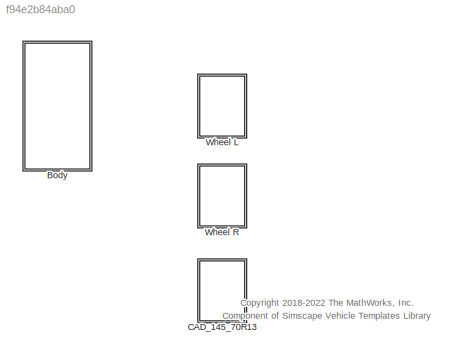
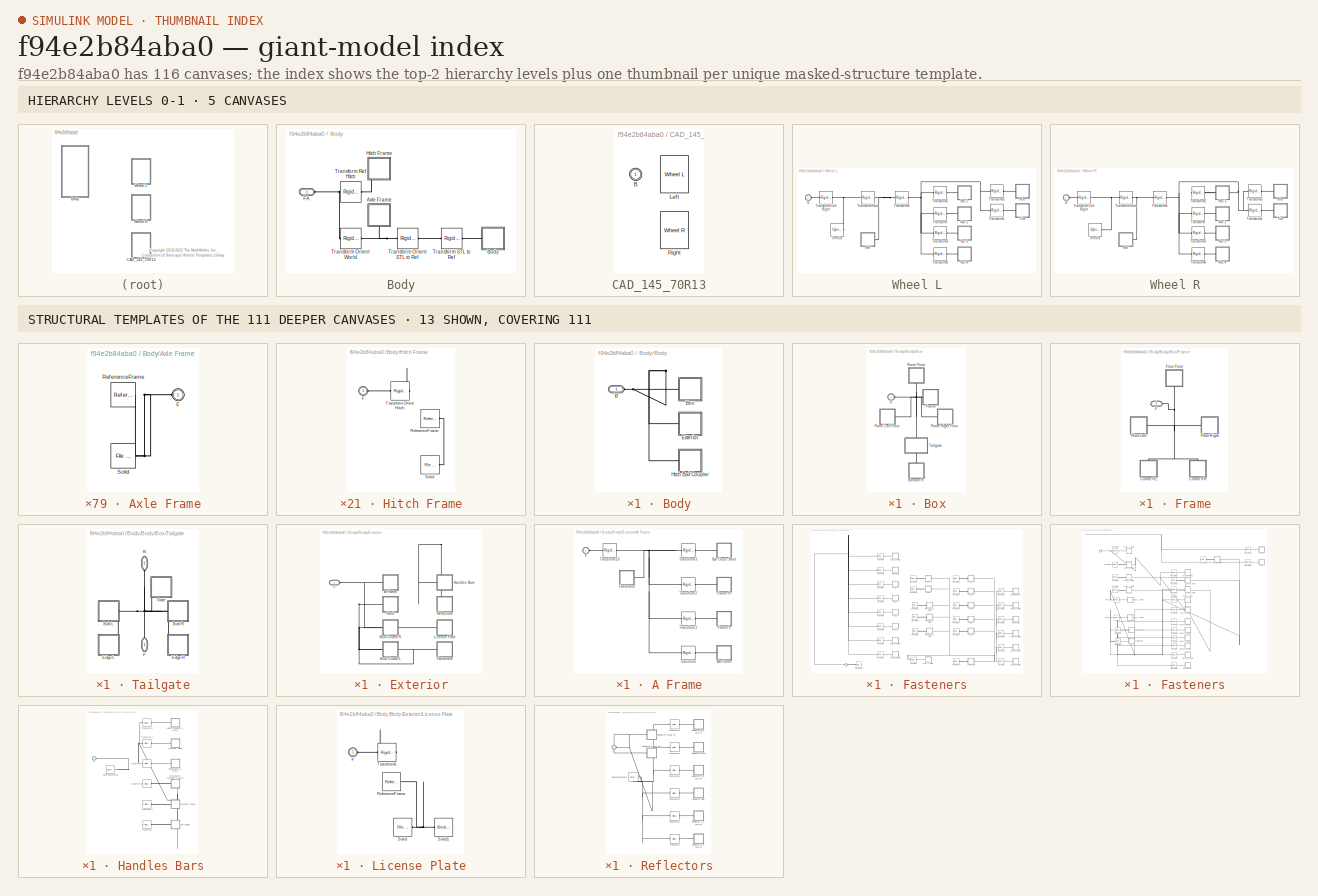
[diagram: thumbnail index - top-2 hierarchy levels (5 canvases) + 13 structural-template representatives of the remaining 111 canvases]
MODEL slx_f94e2b84aba0
KIND library
CONFIG AbsTol = auto
CONFIG EnableMultiTasking = off
CONFIG FixedStep = auto
CONFIG MaxStep = auto
CONFIG MinStep = auto
CONFIG RelTol = 1e-3
CONFIG SampleTimeConstraint = Unconstrained
CONFIG SolverName = VariableStepAuto
CONFIG StartTime = 0.0
CONFIG StopTime = 10.0
BLOCK [SubSystem] Body
  Ports = [0, 0, 0, 0, 0, 1]
  RequestExecContextInheritance = off
BLOCK [SubSystem] Body/Axle Frame
  NameLocation = right
  Ports = [0, 0, 0, 0, 0, 1]
  RequestExecContextInheritance = off
BLOCK [PMIOPort] Body/Axle Frame/F
  Side = Left
BLOCK [Reference] Body/Axle Frame/ReferenceFrame  REF=sm_lib/Frames and
Transforms/Reference
Frame
  Ports = [0, 0, 0, 0, 0, 0, 1]
  SourceBlock = sm_lib/Frames and\nTransforms/Reference\nFrame
  SourceProductBaseCode = MS
  SourceType = Reference\nFrame
BLOCK [Reference] Body/Axle Frame/Solid  REF=sm_lib/Body Elements/File Solid
  Ports = [0, 0, 0, 0, 0, 0, 1]
  SourceBlock = sm_lib/Body Elements/File Solid
  SourceProductBaseCode = MS
  SourceType = File Solid
BLOCK [SubSystem] Body/Body
  Ports = [0, 0, 0, 0, 0, 1]
  RequestExecContextInheritance = off
BLOCK [PMIOPort] Body/Body/B
  Side = Left
BLOCK [SubSystem] Body/Body/Box
  Ports = [0, 0, 0, 0, 0, 1]
  RequestExecContextInheritance = off
BLOCK [SubSystem] Body/Body/Box/Bumper R
  NameLocation = left
  Ports = [0, 0, 0, 0, 0, 1]
  RequestExecContextInheritance = off
BLOCK [PMIOPort] Body/Body/Box/Bumper R/F
  Side = Left
BLOCK [Reference] Body/Body/Box/Bumper R/ReferenceFrame  REF=sm_lib/Frames and
Transforms/Reference
Frame
  Ports = [0, 0, 0, 0, 0, 0, 1]
  SourceBlock = sm_lib/Frames and\nTransforms/Reference\nFrame
  SourceProductBaseCode = MS
  SourceType = Reference\nFrame
BLOCK [Reference] Body/Body/Box/Bumper R/Solid  REF=sm_lib/Body Elements/File Solid
  Ports = [0, 0, 0, 0, 0, 0, 1]
  SourceBlock = sm_lib/Body Elements/File Solid
  SourceProductBaseCode = MS
  SourceType = File Solid
BLOCK [Reference] Body/Body/Box/Bumper R/Transform13  REF=sm_lib/Frames and
Transforms/Rigid
Transform
  Ports = [0, 0, 0, 0, 0, 1, 1]
  SourceBlock = sm_lib/Frames and\nTransforms/Rigid\nTransform
  SourceProductBaseCode = MS
  SourceType = Rigid\nTransform
BLOCK [PMIOPort] Body/Body/Box/F
  Side = Left
BLOCK [SubSystem] Body/Body/Box/Frame
  Ports = [0, 0, 0, 0, 0, 1]
  RequestExecContextInheritance = off
BLOCK [SubSystem] Body/Body/Box/Frame/Corner RL
  NameLocation = left
  Ports = [0, 0, 0, 0, 0, 1]
  RequestExecContextInheritance = off
BLOCK [PMIOPort] Body/Body/Box/Frame/Corner RL/F
  Side = Left
BLOCK [Reference] Body/Body/Box/Frame/Corner RL/ReferenceFrame  REF=sm_lib/Frames and
Transforms/Reference
Frame
  Ports = [0, 0, 0, 0, 0, 0, 1]
  SourceBlock = sm_lib/Frames and\nTransforms/Reference\nFrame
  SourceProductBaseCode = MS
  SourceType = Reference\nFrame
BLOCK [Reference] Body/Body/Box/Frame/Corner RL/Solid  REF=sm_lib/Body Elements/File Solid
  Ports = [0, 0, 0, 0, 0, 0, 1]
  SourceBlock = sm_lib/Body Elements/File Solid
  SourceProductBaseCode = MS
  SourceType = File Solid
BLOCK [Reference] Body/Body/Box/Frame/Corner RL/Transform15  REF=sm_lib/Frames and
Transforms/Rigid
Transform
  Ports = [0, 0, 0, 0, 0, 1, 1]
  SourceBlock = sm_lib/Frames and\nTransforms/Rigid\nTransform
  SourceProductBaseCode = MS
  SourceType = Rigid\nTransform
BLOCK [SubSystem] Body/Body/Box/Frame/Corner RR
  NameLocation = right
  Ports = [0, 0, 0, 0, 0, 1]
  RequestExecContextInheritance = off
BLOCK [PMIOPort] Body/Body/Box/Frame/Corner RR/F
  Side = Left
BLOCK [Reference] Body/Body/Box/Frame/Corner RR/ReferenceFrame  REF=sm_lib/Frames and
Transforms/Reference
Frame
  Ports = [0, 0, 0, 0, 0, 0, 1]
  SourceBlock = sm_lib/Frames and\nTransforms/Reference\nFrame
  SourceProductBaseCode = MS
  SourceType = Reference\nFrame
BLOCK [Reference] Body/Body/Box/Frame/Corner RR/Solid  REF=sm_lib/Body Elements/File Solid
  Ports = [0, 0, 0, 0, 0, 0, 1]
  SourceBlock = sm_lib/Body Elements/File Solid
  SourceProductBaseCode = MS
  SourceType = File Solid
BLOCK [Reference] Body/Body/Box/Frame/Corner RR/Transform14  REF=sm_lib/Frames and
Transforms/Rigid
Transform
  Ports = [0, 0, 0, 0, 0, 1, 1]
  SourceBlock = sm_lib/Frames and\nTransforms/Rigid\nTransform
  SourceProductBaseCode = MS
  SourceType = Rigid\nTransform
BLOCK [PMIOPort] Body/Body/Box/Frame/F
  Side = Left
BLOCK [SubSystem] Body/Body/Box/Frame/Floor Front
  NameLocation = right
  Ports = [0, 0, 0, 0, 0, 1]
  RequestExecContextInheritance = off
BLOCK [PMIOPort] Body/Body/Box/Frame/Floor Front/F
  Side = Left
BLOCK [Reference] Body/Body/Box/Frame/Floor Front/ReferenceFrame  REF=sm_lib/Frames and
Transforms/Reference
Frame
  Ports = [0, 0, 0, 0, 0, 0, 1]
  SourceBlock = sm_lib/Frames and\nTransforms/Reference\nFrame
  SourceProductBaseCode = MS
  SourceType = Reference\nFrame
BLOCK [Reference] Body/Body/Box/Frame/Floor Front/Solid  REF=sm_lib/Body Elements/File Solid
  Ports = [0, 0, 0, 0, 0, 0, 1]
  SourceBlock = sm_lib/Body Elements/File Solid
  SourceProductBaseCode = MS
  SourceType = File Solid
BLOCK [Reference] Body/Body/Box/Frame/Floor Front/Transform2  REF=sm_lib/Frames and
Transforms/Rigid
Transform
  Ports = [0, 0, 0, 0, 0, 1, 1]
  SourceBlock = sm_lib/Frames and\nTransforms/Rigid\nTransform
  SourceProductBaseCode = MS
  SourceType = Rigid\nTransform
BLOCK [SubSystem] Body/Body/Box/Frame/Floor Left
  Ports = [0, 0, 0, 0, 0, 1]
  RequestExecContextInheritance = off
BLOCK [PMIOPort] Body/Body/Box/Frame/Floor Left/F
  Side = Left
BLOCK [Reference] Body/Body/Box/Frame/Floor Left/ReferenceFrame  REF=sm_lib/Frames and
Transforms/Reference
Frame
  Ports = [0, 0, 0, 0, 0, 0, 1]
  SourceBlock = sm_lib/Frames and\nTransforms/Reference\nFrame
  SourceProductBaseCode = MS
  SourceType = Reference\nFrame
BLOCK [Reference] Body/Body/Box/Frame/Floor Left/Solid  REF=sm_lib/Body Elements/File Solid
  Ports = [0, 0, 0, 0, 0, 0, 1]
  SourceBlock = sm_lib/Body Elements/File Solid
  SourceProductBaseCode = MS
  SourceType = File Solid
BLOCK [Reference] Body/Body/Box/Frame/Floor Left/Transform16  REF=sm_lib/Frames and
Transforms/Rigid
Transform
  Ports = [0, 0, 0, 0, 0, 1, 1]
  SourceBlock = sm_lib/Frames and\nTransforms/Rigid\nTransform
  SourceProductBaseCode = MS
  SourceType = Rigid\nTransform
BLOCK [SubSystem] Body/Body/Box/Frame/Floor Right
  Ports = [0, 0, 0, 0, 0, 1]
  RequestExecContextInheritance = off
BLOCK [PMIOPort] Body/Body/Box/Frame/Floor Right/F
  Side = Left
BLOCK [Reference] Body/Body/Box/Frame/Floor Right/ReferenceFrame  REF=sm_lib/Frames and
Transforms/Reference
Frame
  Ports = [0, 0, 0, 0, 0, 0, 1]
  SourceBlock = sm_lib/Frames and\nTransforms/Reference\nFrame
  SourceProductBaseCode = MS
  SourceType = Reference\nFrame
BLOCK [Reference] Body/Body/Box/Frame/Floor Right/Solid  REF=sm_lib/Body Elements/File Solid
  Ports = [0, 0, 0, 0, 0, 0, 1]
  SourceBlock = sm_lib/Body Elements/File Solid
  SourceProductBaseCode = MS
  SourceType = File Solid
BLOCK [Reference] Body/Body/Box/Frame/Floor Right/Transform10  REF=sm_lib/Frames and
Transforms/Rigid
Transform
  Ports = [0, 0, 0, 0, 0, 1, 1]
  SourceBlock = sm_lib/Frames and\nTransforms/Rigid\nTransform
  SourceProductBaseCode = MS
  SourceType = Rigid\nTransform
BLOCK [SubSystem] Body/Body/Box/Panel Front
  NameLocation = right
  Ports = [0, 0, 0, 0, 0, 1]
  RequestExecContextInheritance = off
BLOCK [PMIOPort] Body/Body/Box/Panel Front/F
  Side = Left
BLOCK [Reference] Body/Body/Box/Panel Front/ReferenceFrame  REF=sm_lib/Frames and
Transforms/Reference
Frame
  Ports = [0, 0, 0, 0, 0, 0, 1]
  SourceBlock = sm_lib/Frames and\nTransforms/Reference\nFrame
  SourceProductBaseCode = MS
  SourceType = Reference\nFrame
BLOCK [Reference] Body/Body/Box/Panel Front/Solid  REF=sm_lib/Body Elements/File Solid
  Ports = [0, 0, 0, 0, 0, 0, 1]
  SourceBlock = sm_lib/Body Elements/File Solid
  SourceProductBaseCode = MS
  SourceType = File Solid
BLOCK [Reference] Body/Body/Box/Panel Front/Transform1  REF=sm_lib/Frames and
Transforms/Rigid
Transform
  Ports = [0, 0, 0, 0, 0, 1, 1]
  SourceBlock = sm_lib/Frames and\nTransforms/Rigid\nTransform
  SourceProductBaseCode = MS
  SourceType = Rigid\nTransform
BLOCK [SubSystem] Body/Body/Box/Panel Left Floor
  Ports = [0, 0, 0, 0, 0, 1]
  RequestExecContextInheritance = off
BLOCK [PMIOPort] Body/Body/Box/Panel Left Floor/F
  Side = Left
BLOCK [Reference] Body/Body/Box/Panel Left Floor/ReferenceFrame  REF=sm_lib/Frames and
Transforms/Reference
Frame
  Ports = [0, 0, 0, 0, 0, 0, 1]
  SourceBlock = sm_lib/Frames and\nTransforms/Reference\nFrame
  SourceProductBaseCode = MS
  SourceType = Reference\nFrame
BLOCK [Reference] Body/Body/Box/Panel Left Floor/Solid  REF=sm_lib/Body Elements/File Solid
  Ports = [0, 0, 0, 0, 0, 0, 1]
  SourceBlock = sm_lib/Body Elements/File Solid
  SourceProductBaseCode = MS
  SourceType = File Solid
BLOCK [Reference] Body/Body/Box/Panel Left Floor/Transform17  REF=sm_lib/Frames and
Transforms/Rigid
Transform
  Ports = [0, 0, 0, 0, 0, 1, 1]
  SourceBlock = sm_lib/Frames and\nTransforms/Rigid\nTransform
  SourceProductBaseCode = MS
  SourceType = Rigid\nTransform
BLOCK [SubSystem] Body/Body/Box/Panel Right Floor
  Ports = [0, 0, 0, 0, 0, 1]
  RequestExecContextInheritance = off
BLOCK [PMIOPort] Body/Body/Box/Panel Right Floor/F
  Side = Left
BLOCK [Reference] Body/Body/Box/Panel Right Floor/ReferenceFrame  REF=sm_lib/Frames and
Transforms/Reference
Frame
  Ports = [0, 0, 0, 0, 0, 0, 1]
  SourceBlock = sm_lib/Frames and\nTransforms/Reference\nFrame
  SourceProductBaseCode = MS
  SourceType = Reference\nFrame
BLOCK [Reference] Body/Body/Box/Panel Right Floor/Solid  REF=sm_lib/Body Elements/File Solid
  Ports = [0, 0, 0, 0, 0, 0, 1]
  SourceBlock = sm_lib/Body Elements/File Solid
  SourceProductBaseCode = MS
  SourceType = File Solid
BLOCK [Reference] Body/Body/Box/Panel Right Floor/Transform3  REF=sm_lib/Frames and
Transforms/Rigid
Transform
  Ports = [0, 0, 0, 0, 0, 1, 1]
  SourceBlock = sm_lib/Frames and\nTransforms/Rigid\nTransform
  SourceProductBaseCode = MS
  SourceType = Rigid\nTransform
BLOCK [SubSystem] Body/Body/Box/Tailgate
  NameLocation = left
  Ports = [0, 0, 0, 0, 0, 1, 1]
  RequestExecContextInheritance = off
BLOCK [PMIOPort] Body/Body/Box/Tailgate/B
  NameLocation = left
  Port = 2
  Side = Left
BLOCK [SubSystem] Body/Body/Box/Tailgate/Bolt L
  Ports = [0, 0, 0, 0, 0, 1]
  RequestExecContextInheritance = off
BLOCK [PMIOPort] Body/Body/Box/Tailgate/Bolt L/F
  Side = Left
BLOCK [Reference] Body/Body/Box/Tailgate/Bolt L/ReferenceFrame  REF=sm_lib/Frames and
Transforms/Reference
Frame
  Ports = [0, 0, 0, 0, 0, 0, 1]
  SourceBlock = sm_lib/Frames and\nTransforms/Reference\nFrame
  SourceProductBaseCode = MS
  SourceType = Reference\nFrame
BLOCK [Reference] Body/Body/Box/Tailgate/Bolt L/Solid  REF=sm_lib/Body Elements/File Solid
  Ports = [0, 0, 0, 0, 0, 0, 1]
  SourceBlock = sm_lib/Body Elements/File Solid
  SourceProductBaseCode = MS
  SourceType = File Solid
BLOCK [Reference] Body/Body/Box/Tailgate/Bolt L/Transform7  REF=sm_lib/Frames and
Transforms/Rigid
Transform
  Ports = [0, 0, 0, 0, 0, 1, 1]
  SourceBlock = sm_lib/Frames and\nTransforms/Rigid\nTransform
  SourceProductBaseCode = MS
  SourceType = Rigid\nTransform
BLOCK [SubSystem] Body/Body/Box/Tailgate/Bolt R
  Ports = [0, 0, 0, 0, 0, 1]
  RequestExecContextInheritance = off
BLOCK [PMIOPort] Body/Body/Box/Tailgate/Bolt R/F
  Side = Left
BLOCK [Reference] Body/Body/Box/Tailgate/Bolt R/ReferenceFrame  REF=sm_lib/Frames and
Transforms/Reference
Frame
  Ports = [0, 0, 0, 0, 0, 0, 1]
  SourceBlock = sm_lib/Frames and\nTransforms/Reference\nFrame
  SourceProductBaseCode = MS
  SourceType = Reference\nFrame
BLOCK [Reference] Body/Body/Box/Tailgate/Bolt R/Solid  REF=sm_lib/Body Elements/File Solid
  Ports = [0, 0, 0, 0, 0, 0, 1]
  SourceBlock = sm_lib/Body Elements/File Solid
  SourceProductBaseCode = MS
  SourceType = File Solid
BLOCK [Reference] Body/Body/Box/Tailgate/Bolt R/Transform6  REF=sm_lib/Frames and
Transforms/Rigid
Transform
  Ports = [0, 0, 0, 0, 0, 1, 1]
  SourceBlock = sm_lib/Frames and\nTransforms/Rigid\nTransform
  SourceProductBaseCode = MS
  SourceType = Rigid\nTransform
BLOCK [SubSystem] Body/Body/Box/Tailgate/Edge L
  Ports = [0, 0, 0, 0, 0, 1]
  RequestExecContextInheritance = off
BLOCK [PMIOPort] Body/Body/Box/Tailgate/Edge L/F
  Side = Left
BLOCK [Reference] Body/Body/Box/Tailgate/Edge L/ReferenceFrame  REF=sm_lib/Frames and
Transforms/Reference
Frame
  Ports = [0, 0, 0, 0, 0, 0, 1]
  SourceBlock = sm_lib/Frames and\nTransforms/Reference\nFrame
  SourceProductBaseCode = MS
  SourceType = Reference\nFrame
BLOCK [Reference] Body/Body/Box/Tailgate/Edge L/Solid  REF=sm_lib/Body Elements/File Solid
  Ports = [0, 0, 0, 0, 0, 0, 1]
  SourceBlock = sm_lib/Body Elements/File Solid
  SourceProductBaseCode = MS
  SourceType = File Solid
BLOCK [Reference] Body/Body/Box/Tailgate/Edge L/Transform5  REF=sm_lib/Frames and
Transforms/Rigid
Transform
  Ports = [0, 0, 0, 0, 0, 1, 1]
  SourceBlock = sm_lib/Frames and\nTransforms/Rigid\nTransform
  SourceProductBaseCode = MS
  SourceType = Rigid\nTransform
BLOCK [SubSystem] Body/Body/Box/Tailgate/Edge R
  Ports = [0, 0, 0, 0, 0, 1]
  RequestExecContextInheritance = off
BLOCK [PMIOPort] Body/Body/Box/Tailgate/Edge R/F
  Side = Left
BLOCK [Reference] Body/Body/Box/Tailgate/Edge R/ReferenceFrame  REF=sm_lib/Frames and
Transforms/Reference
Frame
  Ports = [0, 0, 0, 0, 0, 0, 1]
  SourceBlock = sm_lib/Frames and\nTransforms/Reference\nFrame
  SourceProductBaseCode = MS
  SourceType = Reference\nFrame
BLOCK [Reference] Body/Body/Box/Tailgate/Edge R/Solid  REF=sm_lib/Body Elements/File Solid
  Ports = [0, 0, 0, 0, 0, 0, 1]
  SourceBlock = sm_lib/Body Elements/File Solid
  SourceProductBaseCode = MS
  SourceType = File Solid
BLOCK [Reference] Body/Body/Box/Tailgate/Edge R/Transform4  REF=sm_lib/Frames and
Transforms/Rigid
Transform
  Ports = [0, 0, 0, 0, 0, 1, 1]
  SourceBlock = sm_lib/Frames and\nTransforms/Rigid\nTransform
  SourceProductBaseCode = MS
  SourceType = Rigid\nTransform
BLOCK [PMIOPort] Body/Body/Box/Tailgate/F
  NameLocation = right
  Side = Right
BLOCK [SubSystem] Body/Body/Box/Tailgate/Gate
  NameLocation = top
  Ports = [0, 0, 0, 0, 0, 1]
  RequestExecContextInheritance = off
BLOCK [PMIOPort] Body/Body/Box/Tailgate/Gate/F
  Side = Left
BLOCK [Reference] Body/Body/Box/Tailgate/Gate/ReferenceFrame  REF=sm_lib/Frames and
Transforms/Reference
Frame
  Ports = [0, 0, 0, 0, 0, 0, 1]
  SourceBlock = sm_lib/Frames and\nTransforms/Reference\nFrame
  SourceProductBaseCode = MS
  SourceType = Reference\nFrame
BLOCK [Reference] Body/Body/Box/Tailgate/Gate/Solid  REF=sm_lib/Body Elements/File Solid
  Ports = [0, 0, 0, 0, 0, 0, 1]
  SourceBlock = sm_lib/Body Elements/File Solid
  SourceProductBaseCode = MS
  SourceType = File Solid
BLOCK [Reference] Body/Body/Box/Tailgate/Gate/Transform  REF=sm_lib/Frames and
Transforms/Rigid
Transform
  Ports = [0, 0, 0, 0, 0, 1, 1]
  SourceBlock = sm_lib/Frames and\nTransforms/Rigid\nTransform
  SourceProductBaseCode = MS
  SourceType = Rigid\nTransform
BLOCK [SubSystem] Body/Body/Exterior
  Ports = [0, 0, 0, 0, 0, 1]
  RequestExecContextInheritance = off
BLOCK [SubSystem] Body/Body/Exterior/A Frame
  Ports = [0, 0, 0, 0, 0, 1]
  RequestExecContextInheritance = off
BLOCK [SubSystem] Body/Body/Exterior/A Frame/Bar Cross
  Ports = [0, 0, 0, 0, 0, 1]
  RequestExecContextInheritance = off
BLOCK [SubSystem] Body/Body/Exterior/A Frame/Bar Cross Short
  Ports = [0, 0, 0, 0, 0, 1]
  RequestExecContextInheritance = off
BLOCK [PMIOPort] Body/Body/Exterior/A Frame/Bar Cross Short/F
  Side = Left
BLOCK [Reference] Body/Body/Exterior/A Frame/Bar Cross Short/ReferenceFrame  REF=sm_lib/Frames and
Transforms/Reference
Frame
  Ports = [0, 0, 0, 0, 0, 0, 1]
  SourceBlock = sm_lib/Frames and\nTransforms/Reference\nFrame
  SourceProductBaseCode = MS
  SourceType = Reference\nFrame
BLOCK [Reference] Body/Body/Exterior/A Frame/Bar Cross Short/Solid  REF=sm_lib/Body Elements/File Solid
  Ports = [0, 0, 0, 0, 0, 0, 1]
  SourceBlock = sm_lib/Body Elements/File Solid
  SourceProductBaseCode = MS
  SourceType = File Solid
BLOCK [PMIOPort] Body/Body/Exterior/A Frame/Bar Cross/F
  Side = Left
BLOCK [Reference] Body/Body/Exterior/A Frame/Bar Cross/ReferenceFrame  REF=sm_lib/Frames and
Transforms/Reference
Frame
  Ports = [0, 0, 0, 0, 0, 0, 1]
  SourceBlock = sm_lib/Frames and\nTransforms/Reference\nFrame
  SourceProductBaseCode = MS
  SourceType = Reference\nFrame
BLOCK [Reference] Body/Body/Exterior/A Frame/Bar Cross/Solid  REF=sm_lib/Body Elements/File Solid
  Ports = [0, 0, 0, 0, 0, 0, 1]
  SourceBlock = sm_lib/Body Elements/File Solid
  SourceProductBaseCode = MS
  SourceType = File Solid
BLOCK [PMIOPort] Body/Body/Exterior/A Frame/F
  Side = Left
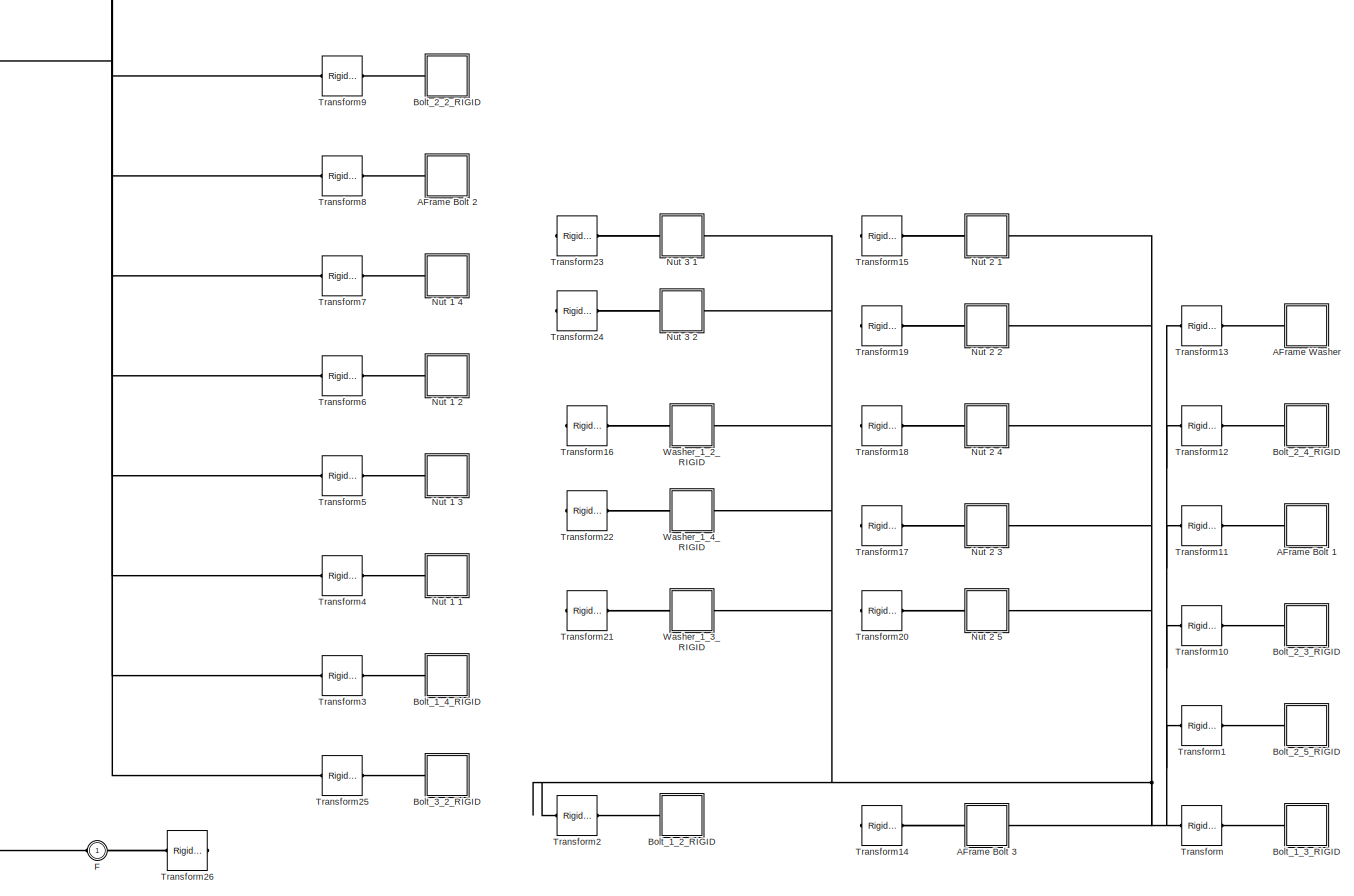
[diagram: Body/Body/Exterior/A Frame/Fasteners - part 1/1, most of the canvas]
BLOCK [SubSystem] Body/Body/Exterior/A Frame/Fasteners
  Ports = [0, 0, 0, 0, 0, 0, 1]
  RequestExecContextInheritance = off
BLOCK [SubSystem] Body/Body/Exterior/A Frame/Fasteners/AFrame Bolt 1
  Ports = [0, 0, 0, 0, 0, 1]
  RequestExecContextInheritance = off
BLOCK [PMIOPort] Body/Body/Exterior/A Frame/Fasteners/AFrame Bolt 1/F
  Side = Left
BLOCK [Reference] Body/Body/Exterior/A Frame/Fasteners/AFrame Bolt 1/ReferenceFrame  REF=sm_lib/Frames and
Transforms/Reference
Frame
  Ports = [0, 0, 0, 0, 0, 0, 1]
  SourceBlock = sm_lib/Frames and\nTransforms/Reference\nFrame
  SourceProductBaseCode = MS
  SourceType = Reference\nFrame
BLOCK [Reference] Body/Body/Exterior/A Frame/Fasteners/AFrame Bolt 1/Solid  REF=sm_lib/Body Elements/File Solid
  Ports = [0, 0, 0, 0, 0, 0, 1]
  SourceBlock = sm_lib/Body Elements/File Solid
  SourceProductBaseCode = MS
  SourceType = File Solid
BLOCK [SubSystem] Body/Body/Exterior/A Frame/Fasteners/AFrame Bolt 2
  Ports = [0, 0, 0, 0, 0, 1]
  RequestExecContextInheritance = off
BLOCK [PMIOPort] Body/Body/Exterior/A Frame/Fasteners/AFrame Bolt 2/F
  Side = Left
BLOCK [Reference] Body/Body/Exterior/A Frame/Fasteners/AFrame Bolt 2/ReferenceFrame  REF=sm_lib/Frames and
Transforms/Reference
Frame
  Ports = [0, 0, 0, 0, 0, 0, 1]
  SourceBlock = sm_lib/Frames and\nTransforms/Reference\nFrame
  SourceProductBaseCode = MS
  SourceType = Reference\nFrame
BLOCK [Reference] Body/Body/Exterior/A Frame/Fasteners/AFrame Bolt 2/Solid  REF=sm_lib/Body Elements/File Solid
  Ports = [0, 0, 0, 0, 0, 0, 1]
  SourceBlock = sm_lib/Body Elements/File Solid
  SourceProductBaseCode = MS
  SourceType = File Solid
BLOCK [SubSystem] Body/Body/Exterior/A Frame/Fasteners/AFrame Bolt 3
  Ports = [0, 0, 0, 0, 0, 1]
  RequestExecContextInheritance = off
BLOCK [PMIOPort] Body/Body/Exterior/A Frame/Fasteners/AFrame Bolt 3/F
  Side = Left
BLOCK [Reference] Body/Body/Exterior/A Frame/Fasteners/AFrame Bolt 3/ReferenceFrame  REF=sm_lib/Frames and
Transforms/Reference
Frame
  Ports = [0, 0, 0, 0, 0, 0, 1]
  SourceBlock = sm_lib/Frames and\nTransforms/Reference\nFrame
  SourceProductBaseCode = MS
  SourceType = Reference\nFrame
BLOCK [Reference] Body/Body/Exterior/A Frame/Fasteners/AFrame Bolt 3/Solid  REF=sm_lib/Body Elements/File Solid
  Ports = [0, 0, 0, 0, 0, 0, 1]
  SourceBlock = sm_lib/Body Elements/File Solid
  SourceProductBaseCode = MS
  SourceType = File Solid
BLOCK [SubSystem] Body/Body/Exterior/A Frame/Fasteners/AFrame Washer
  Ports = [0, 0, 0, 0, 0, 1]
  RequestExecContextInheritance = off
BLOCK [PMIOPort] Body/Body/Exterior/A Frame/Fasteners/AFrame Washer/F
  Side = Left
BLOCK [Reference] Body/Body/Exterior/A Frame/Fasteners/AFrame Washer/ReferenceFrame  REF=sm_lib/Frames and
Transforms/Reference
Frame
  Ports = [0, 0, 0, 0, 0, 0, 1]
  SourceBlock = sm_lib/Frames and\nTransforms/Reference\nFrame
  SourceProductBaseCode = MS
  SourceType = Reference\nFrame
BLOCK [Reference] Body/Body/Exterior/A Frame/Fasteners/AFrame Washer/Solid  REF=sm_lib/Body Elements/File Solid
  Ports = [0, 0, 0, 0, 0, 0, 1]
  SourceBlock = sm_lib/Body Elements/File Solid
  SourceProductBaseCode = MS
  SourceType = File Solid
BLOCK [SubSystem] Body/Body/Exterior/A Frame/Fasteners/Bolt_1_2_RIGID
  Ports = [0, 0, 0, 0, 0, 1]
  RequestExecContextInheritance = off
BLOCK [PMIOPort] Body/Body/Exterior/A Frame/Fasteners/Bolt_1_2_RIGID/F
  Side = Left
BLOCK [Reference] Body/Body/Exterior/A Frame/Fasteners/Bolt_1_2_RIGID/ReferenceFrame  REF=sm_lib/Frames and
Transforms/Reference
Frame
  Ports = [0, 0, 0, 0, 0, 0, 1]
  SourceBlock = sm_lib/Frames and\nTransforms/Reference\nFrame
  SourceProductBaseCode = MS
  SourceType = Reference\nFrame
BLOCK [Reference] Body/Body/Exterior/A Frame/Fasteners/Bolt_1_2_RIGID/Solid  REF=sm_lib/Body Elements/File Solid
  Ports = [0, 0, 0, 0, 0, 0, 1]
  SourceBlock = sm_lib/Body Elements/File Solid
  SourceProductBaseCode = MS
  SourceType = File Solid
BLOCK [SubSystem] Body/Body/Exterior/A Frame/Fasteners/Bolt_1_3_RIGID
  Ports = [0, 0, 0, 0, 0, 1]
  RequestExecContextInheritance = off
BLOCK [PMIOPort] Body/Body/Exterior/A Frame/Fasteners/Bolt_1_3_RIGID/F
  Side = Left
BLOCK [Reference] Body/Body/Exterior/A Frame/Fasteners/Bolt_1_3_RIGID/ReferenceFrame  REF=sm_lib/Frames and
Transforms/Reference
Frame
  Ports = [0, 0, 0, 0, 0, 0, 1]
  SourceBlock = sm_lib/Frames and\nTransforms/Reference\nFrame
  SourceProductBaseCode = MS
  SourceType = Reference\nFrame
BLOCK [Reference] Body/Body/Exterior/A Frame/Fasteners/Bolt_1_3_RIGID/Solid  REF=sm_lib/Body Elements/File Solid
  Ports = [0, 0, 0, 0, 0, 0, 1]
  SourceBlock = sm_lib/Body Elements/File Solid
  SourceProductBaseCode = MS
  SourceType = File Solid
BLOCK [SubSystem] Body/Body/Exterior/A Frame/Fasteners/Bolt_1_4_RIGID
  Ports = [0, 0, 0, 0, 0, 1]
  RequestExecContextInheritance = off
BLOCK [PMIOPort] Body/Body/Exterior/A Frame/Fasteners/Bolt_1_4_RIGID/F
  Side = Left
BLOCK [Reference] Body/Body/Exterior/A Frame/Fasteners/Bolt_1_4_RIGID/ReferenceFrame  REF=sm_lib/Frames and
Transforms/Reference
Frame
  Ports = [0, 0, 0, 0, 0, 0, 1]
  SourceBlock = sm_lib/Frames and\nTransforms/Reference\nFrame
  SourceProductBaseCode = MS
  SourceType = Reference\nFrame
BLOCK [Reference] Body/Body/Exterior/A Frame/Fasteners/Bolt_1_4_RIGID/Solid  REF=sm_lib/Body Elements/File Solid
  Ports = [0, 0, 0, 0, 0, 0, 1]
  SourceBlock = sm_lib/Body Elements/File Solid
  SourceProductBaseCode = MS
  SourceType = File Solid
BLOCK [SubSystem] Body/Body/Exterior/A Frame/Fasteners/Bolt_2_2_RIGID
  Ports = [0, 0, 0, 0, 0, 1]
  RequestExecContextInheritance = off
BLOCK [PMIOPort] Body/Body/Exterior/A Frame/Fasteners/Bolt_2_2_RIGID/F
  Side = Left
BLOCK [Reference] Body/Body/Exterior/A Frame/Fasteners/Bolt_2_2_RIGID/ReferenceFrame  REF=sm_lib/Frames and
Transforms/Reference
Frame
  Ports = [0, 0, 0, 0, 0, 0, 1]
  SourceBlock = sm_lib/Frames and\nTransforms/Reference\nFrame
  SourceProductBaseCode = MS
  SourceType = Reference\nFrame
BLOCK [Reference] Body/Body/Exterior/A Frame/Fasteners/Bolt_2_2_RIGID/Solid  REF=sm_lib/Body Elements/File Solid
  Ports = [0, 0, 0, 0, 0, 0, 1]
  SourceBlock = sm_lib/Body Elements/File Solid
  SourceProductBaseCode = MS
  SourceType = File Solid
BLOCK [SubSystem] Body/Body/Exterior/A Frame/Fasteners/Bolt_2_3_RIGID
  Ports = [0, 0, 0, 0, 0, 1]
  RequestExecContextInheritance = off
BLOCK [PMIOPort] Body/Body/Exterior/A Frame/Fasteners/Bolt_2_3_RIGID/F
  Side = Left
BLOCK [Reference] Body/Body/Exterior/A Frame/Fasteners/Bolt_2_3_RIGID/ReferenceFrame  REF=sm_lib/Frames and
Transforms/Reference
Frame
  Ports = [0, 0, 0, 0, 0, 0, 1]
  SourceBlock = sm_lib/Frames and\nTransforms/Reference\nFrame
  SourceProductBaseCode = MS
  SourceType = Reference\nFrame
BLOCK [Reference] Body/Body/Exterior/A Frame/Fasteners/Bolt_2_3_RIGID/Solid  REF=sm_lib/Body Elements/File Solid
  Ports = [0, 0, 0, 0, 0, 0, 1]
  SourceBlock = sm_lib/Body Elements/File Solid
  SourceProductBaseCode = MS
  SourceType = File Solid
BLOCK [SubSystem] Body/Body/Exterior/A Frame/Fasteners/Bolt_2_4_RIGID
  Ports = [0, 0, 0, 0, 0, 1]
  RequestExecContextInheritance = off
BLOCK [PMIOPort] Body/Body/Exterior/A Frame/Fasteners/Bolt_2_4_RIGID/F
  Side = Left
BLOCK [Reference] Body/Body/Exterior/A Frame/Fasteners/Bolt_2_4_RIGID/ReferenceFrame  REF=sm_lib/Frames and
Transforms/Reference
Frame
  Ports = [0, 0, 0, 0, 0, 0, 1]
  SourceBlock = sm_lib/Frames and\nTransforms/Reference\nFrame
  SourceProductBaseCode = MS
  SourceType = Reference\nFrame
BLOCK [Reference] Body/Body/Exterior/A Frame/Fasteners/Bolt_2_4_RIGID/Solid  REF=sm_lib/Body Elements/File Solid
  Ports = [0, 0, 0, 0, 0, 0, 1]
  SourceBlock = sm_lib/Body Elements/File Solid
  SourceProductBaseCode = MS
  SourceType = File Solid
BLOCK [SubSystem] Body/Body/Exterior/A Frame/Fasteners/Bolt_2_5_RIGID
  Ports = [0, 0, 0, 0, 0, 1]
  RequestExecContextInheritance = off
BLOCK [PMIOPort] Body/Body/Exterior/A Frame/Fasteners/Bolt_2_5_RIGID/F
  Side = Left
BLOCK [Reference] Body/Body/Exterior/A Frame/Fasteners/Bolt_2_5_RIGID/ReferenceFrame  REF=sm_lib/Frames and
Transforms/Reference
Frame
  Ports = [0, 0, 0, 0, 0, 0, 1]
  SourceBlock = sm_lib/Frames and\nTransforms/Reference\nFrame
  SourceProductBaseCode = MS
  SourceType = Reference\nFrame
BLOCK [Reference] Body/Body/Exterior/A Frame/Fasteners/Bolt_2_5_RIGID/Solid  REF=sm_lib/Body Elements/File Solid
  Ports = [0, 0, 0, 0, 0, 0, 1]
  SourceBlock = sm_lib/Body Elements/File Solid
  SourceProductBaseCode = MS
  SourceType = File Solid
BLOCK [SubSystem] Body/Body/Exterior/A Frame/Fasteners/Bolt_3_2_RIGID
  Ports = [0, 0, 0, 0, 0, 1]
  RequestExecContextInheritance = off
BLOCK [PMIOPort] Body/Body/Exterior/A Frame/Fasteners/Bolt_3_2_RIGID/F
  Side = Left
BLOCK [Reference] Body/Body/Exterior/A Frame/Fasteners/Bolt_3_2_RIGID/ReferenceFrame  REF=sm_lib/Frames and
Transforms/Reference
Frame
  Ports = [0, 0, 0, 0, 0, 0, 1]
  SourceBlock = sm_lib/Frames and\nTransforms/Reference\nFrame
  SourceProductBaseCode = MS
  SourceType = Reference\nFrame
BLOCK [Reference] Body/Body/Exterior/A Frame/Fasteners/Bolt_3_2_RIGID/Solid  REF=sm_lib/Body Elements/File Solid
  Ports = [0, 0, 0, 0, 0, 0, 1]
  SourceBlock = sm_lib/Body Elements/File Solid
  SourceProductBaseCode = MS
  SourceType = File Solid
BLOCK [PMIOPort] Body/Body/Exterior/A Frame/Fasteners/F
  Side = Right
BLOCK [SubSystem] Body/Body/Exterior/A Frame/Fasteners/Nut 1 1
  Ports = [0, 0, 0, 0, 0, 1]
  RequestExecContextInheritance = off
BLOCK [PMIOPort] Body/Body/Exterior/A Frame/Fasteners/Nut 1 1/F
  Side = Left
BLOCK [Reference] Body/Body/Exterior/A Frame/Fasteners/Nut 1 1/ReferenceFrame  REF=sm_lib/Frames and
Transforms/Reference
Frame
  Ports = [0, 0, 0, 0, 0, 0, 1]
  SourceBlock = sm_lib/Frames and\nTransforms/Reference\nFrame
  SourceProductBaseCode = MS
  SourceType = Reference\nFrame
BLOCK [Reference] Body/Body/Exterior/A Frame/Fasteners/Nut 1 1/Solid  REF=sm_lib/Body Elements/File Solid
  Ports = [0, 0, 0, 0, 0, 0, 1]
  SourceBlock = sm_lib/Body Elements/File Solid
  SourceProductBaseCode = MS
  SourceType = File Solid
BLOCK [SubSystem] Body/Body/Exterior/A Frame/Fasteners/Nut 1 2
  Ports = [0, 0, 0, 0, 0, 1]
  RequestExecContextInheritance = off
BLOCK [PMIOPort] Body/Body/Exterior/A Frame/Fasteners/Nut 1 2/F
  Side = Left
BLOCK [Reference] Body/Body/Exterior/A Frame/Fasteners/Nut 1 2/ReferenceFrame  REF=sm_lib/Frames and
Transforms/Reference
Frame
  Ports = [0, 0, 0, 0, 0, 0, 1]
  SourceBlock = sm_lib/Frames and\nTransforms/Reference\nFrame
  SourceProductBaseCode = MS
  SourceType = Reference\nFrame
BLOCK [Reference] Body/Body/Exterior/A Frame/Fasteners/Nut 1 2/Solid  REF=sm_lib/Body Elements/File Solid
  Ports = [0, 0, 0, 0, 0, 0, 1]
  SourceBlock = sm_lib/Body Elements/File Solid
  SourceProductBaseCode = MS
  SourceType = File Solid
BLOCK [SubSystem] Body/Body/Exterior/A Frame/Fasteners/Nut 1 3
  Ports = [0, 0, 0, 0, 0, 1]
  RequestExecContextInheritance = off
BLOCK [PMIOPort] Body/Body/Exterior/A Frame/Fasteners/Nut 1 3/F
  Side = Left
BLOCK [Reference] Body/Body/Exterior/A Frame/Fasteners/Nut 1 3/ReferenceFrame  REF=sm_lib/Frames and
Transforms/Reference
Frame
  Ports = [0, 0, 0, 0, 0, 0, 1]
  SourceBlock = sm_lib/Frames and\nTransforms/Reference\nFrame
  SourceProductBaseCode = MS
  SourceType = Reference\nFrame
BLOCK [Reference] Body/Body/Exterior/A Frame/Fasteners/Nut 1 3/Solid  REF=sm_lib/Body Elements/File Solid
  Ports = [0, 0, 0, 0, 0, 0, 1]
  SourceBlock = sm_lib/Body Elements/File Solid
  SourceProductBaseCode = MS
  SourceType = File Solid
BLOCK [SubSystem] Body/Body/Exterior/A Frame/Fasteners/Nut 1 4
  Ports = [0, 0, 0, 0, 0, 1]
  RequestExecContextInheritance = off
BLOCK [PMIOPort] Body/Body/Exterior/A Frame/Fasteners/Nut 1 4/F
  Side = Left
BLOCK [Reference] Body/Body/Exterior/A Frame/Fasteners/Nut 1 4/ReferenceFrame  REF=sm_lib/Frames and
Transforms/Reference
Frame
  Ports = [0, 0, 0, 0, 0, 0, 1]
  SourceBlock = sm_lib/Frames and\nTransforms/Reference\nFrame
  SourceProductBaseCode = MS
  SourceType = Reference\nFrame
BLOCK [Reference] Body/Body/Exterior/A Frame/Fasteners/Nut 1 4/Solid  REF=sm_lib/Body Elements/File Solid
  Ports = [0, 0, 0, 0, 0, 0, 1]
  SourceBlock = sm_lib/Body Elements/File Solid
  SourceProductBaseCode = MS
  SourceType = File Solid
BLOCK [SubSystem] Body/Body/Exterior/A Frame/Fasteners/Nut 2 1
  Ports = [0, 0, 0, 0, 0, 1]
  RequestExecContextInheritance = off
BLOCK [PMIOPort] Body/Body/Exterior/A Frame/Fasteners/Nut 2 1/F
  Side = Left
BLOCK [Reference] Body/Body/Exterior/A Frame/Fasteners/Nut 2 1/ReferenceFrame  REF=sm_lib/Frames and
Transforms/Reference
Frame
  Ports = [0, 0, 0, 0, 0, 0, 1]
  SourceBlock = sm_lib/Frames and\nTransforms/Reference\nFrame
  SourceProductBaseCode = MS
  SourceType = Reference\nFrame
BLOCK [Reference] Body/Body/Exterior/A Frame/Fasteners/Nut 2 1/Solid  REF=sm_lib/Body Elements/File Solid
  Ports = [0, 0, 0, 0, 0, 0, 1]
  SourceBlock = sm_lib/Body Elements/File Solid
  SourceProductBaseCode = MS
  SourceType = File Solid
BLOCK [SubSystem] Body/Body/Exterior/A Frame/Fasteners/Nut 2 2
  Ports = [0, 0, 0, 0, 0, 1]
  RequestExecContextInheritance = off
BLOCK [PMIOPort] Body/Body/Exterior/A Frame/Fasteners/Nut 2 2/F
  Side = Left
BLOCK [Reference] Body/Body/Exterior/A Frame/Fasteners/Nut 2 2/ReferenceFrame  REF=sm_lib/Frames and
Transforms/Reference
Frame
  Ports = [0, 0, 0, 0, 0, 0, 1]
  SourceBlock = sm_lib/Frames and\nTransforms/Reference\nFrame
  SourceProductBaseCode = MS
  SourceType = Reference\nFrame
BLOCK [Reference] Body/Body/Exterior/A Frame/Fasteners/Nut 2 2/Solid  REF=sm_lib/Body Elements/File Solid
  Ports = [0, 0, 0, 0, 0, 0, 1]
  SourceBlock = sm_lib/Body Elements/File Solid
  SourceProductBaseCode = MS
  SourceType = File Solid
BLOCK [SubSystem] Body/Body/Exterior/A Frame/Fasteners/Nut 2 3
  Ports = [0, 0, 0, 0, 0, 1]
  RequestExecContextInheritance = off
BLOCK [PMIOPort] Body/Body/Exterior/A Frame/Fasteners/Nut 2 3/F
  Side = Left
BLOCK [Reference] Body/Body/Exterior/A Frame/Fasteners/Nut 2 3/ReferenceFrame  REF=sm_lib/Frames and
Transforms/Reference
Frame
  Ports = [0, 0, 0, 0, 0, 0, 1]
  SourceBlock = sm_lib/Frames and\nTransforms/Reference\nFrame
  SourceProductBaseCode = MS
  SourceType = Reference\nFrame
BLOCK [Reference] Body/Body/Exterior/A Frame/Fasteners/Nut 2 3/Solid  REF=sm_lib/Body Elements/File Solid
  Ports = [0, 0, 0, 0, 0, 0, 1]
  SourceBlock = sm_lib/Body Elements/File Solid
  SourceProductBaseCode = MS
  SourceType = File Solid
BLOCK [SubSystem] Body/Body/Exterior/A Frame/Fasteners/Nut 2 4
  Ports = [0, 0, 0, 0, 0, 1]
  RequestExecContextInheritance = off
BLOCK [PMIOPort] Body/Body/Exterior/A Frame/Fasteners/Nut 2 4/F
  Side = Left
BLOCK [Reference] Body/Body/Exterior/A Frame/Fasteners/Nut 2 4/ReferenceFrame  REF=sm_lib/Frames and
Transforms/Reference
Frame
  Ports = [0, 0, 0, 0, 0, 0, 1]
  SourceBlock = sm_lib/Frames and\nTransforms/Reference\nFrame
  SourceProductBaseCode = MS
  SourceType = Reference\nFrame
BLOCK [Reference] Body/Body/Exterior/A Frame/Fasteners/Nut 2 4/Solid  REF=sm_lib/Body Elements/File Solid
  Ports = [0, 0, 0, 0, 0, 0, 1]
  SourceBlock = sm_lib/Body Elements/File Solid
  SourceProductBaseCode = MS
  SourceType = File Solid
BLOCK [SubSystem] Body/Body/Exterior/A Frame/Fasteners/Nut 2 5
  Ports = [0, 0, 0, 0, 0, 1]
  RequestExecContextInheritance = off
BLOCK [PMIOPort] Body/Body/Exterior/A Frame/Fasteners/Nut 2 5/F
  Side = Left
BLOCK [Reference] Body/Body/Exterior/A Frame/Fasteners/Nut 2 5/ReferenceFrame  REF=sm_lib/Frames and
Transforms/Reference
Frame
  Ports = [0, 0, 0, 0, 0, 0, 1]
  SourceBlock = sm_lib/Frames and\nTransforms/Reference\nFrame
  SourceProductBaseCode = MS
  SourceType = Reference\nFrame
BLOCK [Reference] Body/Body/Exterior/A Frame/Fasteners/Nut 2 5/Solid  REF=sm_lib/Body Elements/File Solid
  Ports = [0, 0, 0, 0, 0, 0, 1]
  SourceBlock = sm_lib/Body Elements/File Solid
  SourceProductBaseCode = MS
  SourceType = File Solid
BLOCK [SubSystem] Body/Body/Exterior/A Frame/Fasteners/Nut 3 1
  Ports = [0, 0, 0, 0, 0, 1]
  RequestExecContextInheritance = off
BLOCK [PMIOPort] Body/Body/Exterior/A Frame/Fasteners/Nut 3 1/F
  Side = Left
BLOCK [Reference] Body/Body/Exterior/A Frame/Fasteners/Nut 3 1/ReferenceFrame  REF=sm_lib/Frames and
Transforms/Reference
Frame
  Ports = [0, 0, 0, 0, 0, 0, 1]
  SourceBlock = sm_lib/Frames and\nTransforms/Reference\nFrame
  SourceProductBaseCode = MS
  SourceType = Reference\nFrame
BLOCK [Reference] Body/Body/Exterior/A Frame/Fasteners/Nut 3 1/Solid  REF=sm_lib/Body Elements/File Solid
  Ports = [0, 0, 0, 0, 0, 0, 1]
  SourceBlock = sm_lib/Body Elements/File Solid
  SourceProductBaseCode = MS
  SourceType = File Solid
BLOCK [SubSystem] Body/Body/Exterior/A Frame/Fasteners/Nut 3 2
  Ports = [0, 0, 0, 0, 0, 1]
  RequestExecContextInheritance = off
BLOCK [PMIOPort] Body/Body/Exterior/A Frame/Fasteners/Nut 3 2/F
  Side = Left
BLOCK [Reference] Body/Body/Exterior/A Frame/Fasteners/Nut 3 2/ReferenceFrame  REF=sm_lib/Frames and
Transforms/Reference
Frame
  Ports = [0, 0, 0, 0, 0, 0, 1]
  SourceBlock = sm_lib/Frames and\nTransforms/Reference\nFrame
  SourceProductBaseCode = MS
  SourceType = Reference\nFrame
BLOCK [Reference] Body/Body/Exterior/A Frame/Fasteners/Nut 3 2/Solid  REF=sm_lib/Body Elements/File Solid
  Ports = [0, 0, 0, 0, 0, 0, 1]
  SourceBlock = sm_lib/Body Elements/File Solid
  SourceProductBaseCode = MS
  SourceType = File Solid
BLOCK [Reference] Body/Body/Exterior/A Frame/Fasteners/Transform  REF=sm_lib/Frames and
Transforms/Rigid
Transform
  Ports = [0, 0, 0, 0, 0, 1, 1]
  SourceBlock = sm_lib/Frames and\nTransforms/Rigid\nTransform
  SourceProductBaseCode = MS
  SourceType = Rigid\nTransform
BLOCK [Reference] Body/Body/Exterior/A Frame/Fasteners/Transform1  REF=sm_lib/Frames and
Transforms/Rigid
Transform
  Ports = [0, 0, 0, 0, 0, 1, 1]
  SourceBlock = sm_lib/Frames and\nTransforms/Rigid\nTransform
  SourceProductBaseCode = MS
  SourceType = Rigid\nTransform
BLOCK [Reference] Body/Body/Exterior/A Frame/Fasteners/Transform10  REF=sm_lib/Frames and
Transforms/Rigid
Transform
  Ports = [0, 0, 0, 0, 0, 1, 1]
  SourceBlock = sm_lib/Frames and\nTransforms/Rigid\nTransform
  SourceProductBaseCode = MS
  SourceType = Rigid\nTransform
BLOCK [Reference] Body/Body/Exterior/A Frame/Fasteners/Transform11  REF=sm_lib/Frames and
Transforms/Rigid
Transform
  Ports = [0, 0, 0, 0, 0, 1, 1]
  SourceBlock = sm_lib/Frames and\nTransforms/Rigid\nTransform
  SourceProductBaseCode = MS
  SourceType = Rigid\nTransform
BLOCK [Reference] Body/Body/Exterior/A Frame/Fasteners/Transform12  REF=sm_lib/Frames and
Transforms/Rigid
Transform
  Ports = [0, 0, 0, 0, 0, 1, 1]
  SourceBlock = sm_lib/Frames and\nTransforms/Rigid\nTransform
  SourceProductBaseCode = MS
  SourceType = Rigid\nTransform
BLOCK [Reference] Body/Body/Exterior/A Frame/Fasteners/Transform13  REF=sm_lib/Frames and
Transforms/Rigid
Transform
  Ports = [0, 0, 0, 0, 0, 1, 1]
  SourceBlock = sm_lib/Frames and\nTransforms/Rigid\nTransform
  SourceProductBaseCode = MS
  SourceType = Rigid\nTransform
BLOCK [Reference] Body/Body/Exterior/A Frame/Fasteners/Transform14  REF=sm_lib/Frames and
Transforms/Rigid
Transform
  Ports = [0, 0, 0, 0, 0, 1, 1]
  SourceBlock = sm_lib/Frames and\nTransforms/Rigid\nTransform
  SourceProductBaseCode = MS
  SourceType = Rigid\nTransform
BLOCK [Reference] Body/Body/Exterior/A Frame/Fasteners/Transform15  REF=sm_lib/Frames and
Transforms/Rigid
Transform
  Ports = [0, 0, 0, 0, 0, 1, 1]
  SourceBlock = sm_lib/Frames and\nTransforms/Rigid\nTransform
  SourceProductBaseCode = MS
  SourceType = Rigid\nTransform
BLOCK [Reference] Body/Body/Exterior/A Frame/Fasteners/Transform16  REF=sm_lib/Frames and
Transforms/Rigid
Transform
  Ports = [0, 0, 0, 0, 0, 1, 1]
  SourceBlock = sm_lib/Frames and\nTransforms/Rigid\nTransform
  SourceProductBaseCode = MS
  SourceType = Rigid\nTransform
BLOCK [Reference] Body/Body/Exterior/A Frame/Fasteners/Transform17  REF=sm_lib/Frames and
Transforms/Rigid
Transform
  Ports = [0, 0, 0, 0, 0, 1, 1]
  SourceBlock = sm_lib/Frames and\nTransforms/Rigid\nTransform
  SourceProductBaseCode = MS
  SourceType = Rigid\nTransform
BLOCK [Reference] Body/Body/Exterior/A Frame/Fasteners/Transform18  REF=sm_lib/Frames and
Transforms/Rigid
Transform
  Ports = [0, 0, 0, 0, 0, 1, 1]
  SourceBlock = sm_lib/Frames and\nTransforms/Rigid\nTransform
  SourceProductBaseCode = MS
  SourceType = Rigid\nTransform
BLOCK [Reference] Body/Body/Exterior/A Frame/Fasteners/Transform19  REF=sm_lib/Frames and
Transforms/Rigid
Transform
  Ports = [0, 0, 0, 0, 0, 1, 1]
  SourceBlock = sm_lib/Frames and\nTransforms/Rigid\nTransform
  SourceProductBaseCode = MS
  SourceType = Rigid\nTransform
BLOCK [Reference] Body/Body/Exterior/A Frame/Fasteners/Transform2  REF=sm_lib/Frames and
Transforms/Rigid
Transform
  Ports = [0, 0, 0, 0, 0, 1, 1]
  SourceBlock = sm_lib/Frames and\nTransforms/Rigid\nTransform
  SourceProductBaseCode = MS
  SourceType = Rigid\nTransform
BLOCK [Reference] Body/Body/Exterior/A Frame/Fasteners/Transform20  REF=sm_lib/Frames and
Transforms/Rigid
Transform
  Ports = [0, 0, 0, 0, 0, 1, 1]
  SourceBlock = sm_lib/Frames and\nTransforms/Rigid\nTransform
  SourceProductBaseCode = MS
  SourceType = Rigid\nTransform
BLOCK [Reference] Body/Body/Exterior/A Frame/Fasteners/Transform21  REF=sm_lib/Frames and
Transforms/Rigid
Transform
  Ports = [0, 0, 0, 0, 0, 1, 1]
  SourceBlock = sm_lib/Frames and\nTransforms/Rigid\nTransform
  SourceProductBaseCode = MS
  SourceType = Rigid\nTransform
BLOCK [Reference] Body/Body/Exterior/A Frame/Fasteners/Transform22  REF=sm_lib/Frames and
Transforms/Rigid
Transform
  Ports = [0, 0, 0, 0, 0, 1, 1]
  SourceBlock = sm_lib/Frames and\nTransforms/Rigid\nTransform
  SourceProductBaseCode = MS
  SourceType = Rigid\nTransform
BLOCK [Reference] Body/Body/Exterior/A Frame/Fasteners/Transform23  REF=sm_lib/Frames and
Transforms/Rigid
Transform
  Ports = [0, 0, 0, 0, 0, 1, 1]
  SourceBlock = sm_lib/Frames and\nTransforms/Rigid\nTransform
  SourceProductBaseCode = MS
  SourceType = Rigid\nTransform
BLOCK [Reference] Body/Body/Exterior/A Frame/Fasteners/Transform24  REF=sm_lib/Frames and
Transforms/Rigid
Transform
  Ports = [0, 0, 0, 0, 0, 1, 1]
  SourceBlock = sm_lib/Frames and\nTransforms/Rigid\nTransform
  SourceProductBaseCode = MS
  SourceType = Rigid\nTransform
BLOCK [Reference] Body/Body/Exterior/A Frame/Fasteners/Transform25  REF=sm_lib/Frames and
Transforms/Rigid
Transform
  Ports = [0, 0, 0, 0, 0, 1, 1]
  SourceBlock = sm_lib/Frames and\nTransforms/Rigid\nTransform
  SourceProductBaseCode = MS
  SourceType = Rigid\nTransform
BLOCK [Reference] Body/Body/Exterior/A Frame/Fasteners/Transform26  REF=sm_lib/Frames and
Transforms/Rigid
Transform
  Ports = [0, 0, 0, 0, 0, 1, 1]
  SourceBlock = sm_lib/Frames and\nTransforms/Rigid\nTransform
  SourceProductBaseCode = MS
  SourceType = Rigid\nTransform
BLOCK [Reference] Body/Body/Exterior/A Frame/Fasteners/Transform3  REF=sm_lib/Frames and
Transforms/Rigid
Transform
  Ports = [0, 0, 0, 0, 0, 1, 1]
  SourceBlock = sm_lib/Frames and\nTransforms/Rigid\nTransform
  SourceProductBaseCode = MS
  SourceType = Rigid\nTransform
BLOCK [Reference] Body/Body/Exterior/A Frame/Fasteners/Transform4  REF=sm_lib/Frames and
Transforms/Rigid
Transform
  Ports = [0, 0, 0, 0, 0, 1, 1]
  SourceBlock = sm_lib/Frames and\nTransforms/Rigid\nTransform
  SourceProductBaseCode = MS
  SourceType = Rigid\nTransform
BLOCK [Reference] Body/Body/Exterior/A Frame/Fasteners/Transform5  REF=sm_lib/Frames and
Transforms/Rigid
Transform
  Ports = [0, 0, 0, 0, 0, 1, 1]
  SourceBlock = sm_lib/Frames and\nTransforms/Rigid\nTransform
  SourceProductBaseCode = MS
  SourceType = Rigid\nTransform
BLOCK [Reference] Body/Body/Exterior/A Frame/Fasteners/Transform6  REF=sm_lib/Frames and
Transforms/Rigid
Transform
  Ports = [0, 0, 0, 0, 0, 1, 1]
  SourceBlock = sm_lib/Frames and\nTransforms/Rigid\nTransform
  SourceProductBaseCode = MS
  SourceType = Rigid\nTransform
BLOCK [Reference] Body/Body/Exterior/A Frame/Fasteners/Transform7  REF=sm_lib/Frames and
Transforms/Rigid
Transform
  Ports = [0, 0, 0, 0, 0, 1, 1]
  SourceBlock = sm_lib/Frames and\nTransforms/Rigid\nTransform
  SourceProductBaseCode = MS
  SourceType = Rigid\nTransform
BLOCK [Reference] Body/Body/Exterior/A Frame/Fasteners/Transform8  REF=sm_lib/Frames and
Transforms/Rigid
Transform
  Ports = [0, 0, 0, 0, 0, 1, 1]
  SourceBlock = sm_lib/Frames and\nTransforms/Rigid\nTransform
  SourceProductBaseCode = MS
  SourceType = Rigid\nTransform
BLOCK [Reference] Body/Body/Exterior/A Frame/Fasteners/Transform9  REF=sm_lib/Frames and
Transforms/Rigid
Transform
  Ports = [0, 0, 0, 0, 0, 1, 1]
  SourceBlock = sm_lib/Frames and\nTransforms/Rigid\nTransform
  SourceProductBaseCode = MS
  SourceType = Rigid\nTransform
BLOCK [SubSystem] Body/Body/Exterior/A Frame/Fasteners/Washer_1_2_RIGID
  Ports = [0, 0, 0, 0, 0, 1]
  RequestExecContextInheritance = off
BLOCK [PMIOPort] Body/Body/Exterior/A Frame/Fasteners/Washer_1_2_RIGID/F
  Side = Left
BLOCK [Reference] Body/Body/Exterior/A Frame/Fasteners/Washer_1_2_RIGID/ReferenceFrame  REF=sm_lib/Frames and
Transforms/Reference
Frame
  Ports = [0, 0, 0, 0, 0, 0, 1]
  SourceBlock = sm_lib/Frames and\nTransforms/Reference\nFrame
  SourceProductBaseCode = MS
  SourceType = Reference\nFrame
BLOCK [Reference] Body/Body/Exterior/A Frame/Fasteners/Washer_1_2_RIGID/Solid  REF=sm_lib/Body Elements/File Solid
  Ports = [0, 0, 0, 0, 0, 0, 1]
  SourceBlock = sm_lib/Body Elements/File Solid
  SourceProductBaseCode = MS
  SourceType = File Solid
BLOCK [SubSystem] Body/Body/Exterior/A Frame/Fasteners/Washer_1_3_RIGID
  Ports = [0, 0, 0, 0, 0, 1]
  RequestExecContextInheritance = off
BLOCK [PMIOPort] Body/Body/Exterior/A Frame/Fasteners/Washer_1_3_RIGID/F
  Side = Left
BLOCK [Reference] Body/Body/Exterior/A Frame/Fasteners/Washer_1_3_RIGID/ReferenceFrame  REF=sm_lib/Frames and
Transforms/Reference
Frame
  Ports = [0, 0, 0, 0, 0, 0, 1]
  SourceBlock = sm_lib/Frames and\nTransforms/Reference\nFrame
  SourceProductBaseCode = MS
  SourceType = Reference\nFrame
BLOCK [Reference] Body/Body/Exterior/A Frame/Fasteners/Washer_1_3_RIGID/Solid  REF=sm_lib/Body Elements/File Solid
  Ports = [0, 0, 0, 0, 0, 0, 1]
  SourceBlock = sm_lib/Body Elements/File Solid
  SourceProductBaseCode = MS
  SourceType = File Solid
BLOCK [SubSystem] Body/Body/Exterior/A Frame/Fasteners/Washer_1_4_RIGID
  Ports = [0, 0, 0, 0, 0, 1]
  RequestExecContextInheritance = off
BLOCK [PMIOPort] Body/Body/Exterior/A Frame/Fasteners/Washer_1_4_RIGID/F
  Side = Left
BLOCK [Reference] Body/Body/Exterior/A Frame/Fasteners/Washer_1_4_RIGID/ReferenceFrame  REF=sm_lib/Frames and
Transforms/Reference
Frame
  Ports = [0, 0, 0, 0, 0, 0, 1]
  SourceBlock = sm_lib/Frames and\nTransforms/Reference\nFrame
  SourceProductBaseCode = MS
  SourceType = Reference\nFrame
BLOCK [Reference] Body/Body/Exterior/A Frame/Fasteners/Washer_1_4_RIGID/Solid  REF=sm_lib/Body Elements/File Solid
  Ports = [0, 0, 0, 0, 0, 0, 1]
  SourceBlock = sm_lib/Body Elements/File Solid
  SourceProductBaseCode = MS
  SourceType = File Solid
BLOCK [SubSystem] Body/Body/Exterior/A Frame/Frame L
  Ports = [0, 0, 0, 0, 0, 1]
  RequestExecContextInheritance = off
BLOCK [PMIOPort] Body/Body/Exterior/A Frame/Frame L/F
  Side = Left
BLOCK [Reference] Body/Body/Exterior/A Frame/Frame L/ReferenceFrame  REF=sm_lib/Frames and
Transforms/Reference
Frame
  Ports = [0, 0, 0, 0, 0, 0, 1]
  SourceBlock = sm_lib/Frames and\nTransforms/Reference\nFrame
  SourceProductBaseCode = MS
  SourceType = Reference\nFrame
BLOCK [Reference] Body/Body/Exterior/A Frame/Frame L/Solid  REF=sm_lib/Body Elements/File Solid
  Ports = [0, 0, 0, 0, 0, 0, 1]
  SourceBlock = sm_lib/Body Elements/File Solid
  SourceProductBaseCode = MS
  SourceType = File Solid
BLOCK [SubSystem] Body/Body/Exterior/A Frame/Frame R
  Ports = [0, 0, 0, 0, 0, 1]
  RequestExecContextInheritance = off
BLOCK [PMIOPort] Body/Body/Exterior/A Frame/Frame R/F
  Side = Left
BLOCK [Reference] Body/Body/Exterior/A Frame/Frame R/ReferenceFrame  REF=sm_lib/Frames and
Transforms/Reference
Frame
  Ports = [0, 0, 0, 0, 0, 0, 1]
  SourceBlock = sm_lib/Frames and\nTransforms/Reference\nFrame
  SourceProductBaseCode = MS
  SourceType = Reference\nFrame
BLOCK [Reference] Body/Body/Exterior/A Frame/Frame R/Solid  REF=sm_lib/Body Elements/File Solid
  Ports = [0, 0, 0, 0, 0, 0, 1]
  SourceBlock = sm_lib/Body Elements/File Solid
  SourceProductBaseCode = MS
  SourceType = File Solid
BLOCK [Reference] Body/Body/Exterior/A Frame/Transform  REF=sm_lib/Frames and
Transforms/Rigid
Transform
  Ports = [0, 0, 0, 0, 0, 1, 1]
  SourceBlock = sm_lib/Frames and\nTransforms/Rigid\nTransform
  SourceProductBaseCode = MS
  SourceType = Rigid\nTransform
BLOCK [Reference] Body/Body/Exterior/A Frame/Transform1  REF=sm_lib/Frames and
Transforms/Rigid
Transform
  Ports = [0, 0, 0, 0, 0, 1, 1]
  SourceBlock = sm_lib/Frames and\nTransforms/Rigid\nTransform
  SourceProductBaseCode = MS
  SourceType = Rigid\nTransform
BLOCK [Reference] Body/Body/Exterior/A Frame/Transform10  REF=sm_lib/Frames and
Transforms/Rigid
Transform
  Ports = [0, 0, 0, 0, 0, 1, 1]
  SourceBlock = sm_lib/Frames and\nTransforms/Rigid\nTransform
  SourceProductBaseCode = MS
  SourceType = Rigid\nTransform
BLOCK [Reference] Body/Body/Exterior/A Frame/Transform2  REF=sm_lib/Frames and
Transforms/Rigid
Transform
  Ports = [0, 0, 0, 0, 0, 1, 1]
  SourceBlock = sm_lib/Frames and\nTransforms/Rigid\nTransform
  SourceProductBaseCode = MS
  SourceType = Rigid\nTransform
BLOCK [Reference] Body/Body/Exterior/A Frame/Transform3  REF=sm_lib/Frames and
Transforms/Rigid
Transform
  Ports = [0, 0, 0, 0, 0, 1, 1]
  SourceBlock = sm_lib/Frames and\nTransforms/Rigid\nTransform
  SourceProductBaseCode = MS
  SourceType = Rigid\nTransform
BLOCK [PMIOPort] Body/Body/Exterior/F
  Side = Left
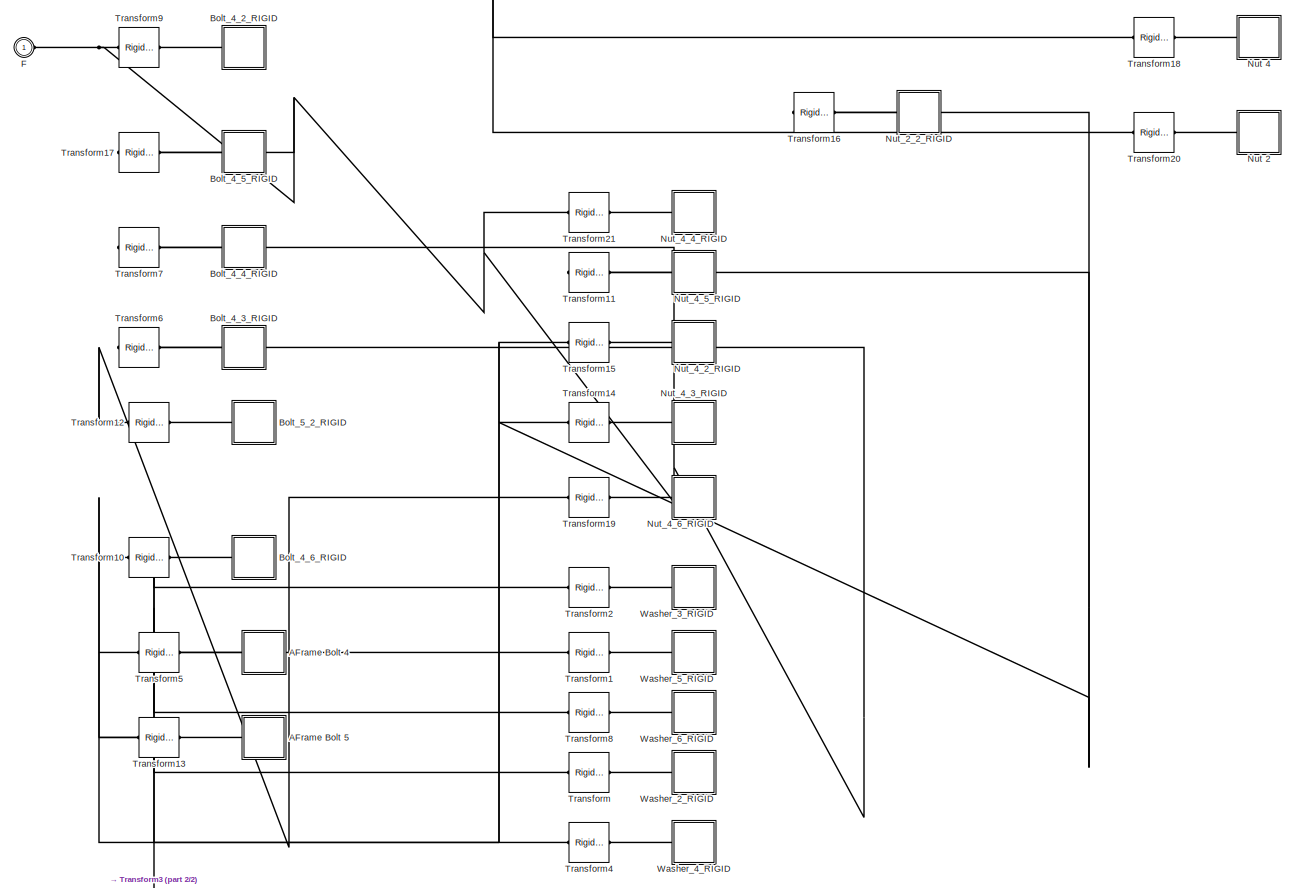
[diagram: Body/Body/Exterior/Fasteners - part 1/2, most of the canvas]
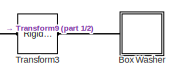
[diagram: Body/Body/Exterior/Fasteners - part 2/2, bottom center region]
BLOCK [SubSystem] Body/Body/Exterior/Fasteners
  Ports = [0, 0, 0, 0, 0, 1]
  RequestExecContextInheritance = off
BLOCK [SubSystem] Body/Body/Exterior/Fasteners/AFrame Bolt 4
  Ports = [0, 0, 0, 0, 0, 1]
  RequestExecContextInheritance = off
BLOCK [PMIOPort] Body/Body/Exterior/Fasteners/AFrame Bolt 4/F
  Side = Left
BLOCK [Reference] Body/Body/Exterior/Fasteners/AFrame Bolt 4/ReferenceFrame  REF=sm_lib/Frames and
Transforms/Reference
Frame
  Ports = [0, 0, 0, 0, 0, 0, 1]
  SourceBlock = sm_lib/Frames and\nTransforms/Reference\nFrame
  SourceProductBaseCode = MS
  SourceType = Reference\nFrame
BLOCK [Reference] Body/Body/Exterior/Fasteners/AFrame Bolt 4/Solid  REF=sm_lib/Body Elements/File Solid
  Ports = [0, 0, 0, 0, 0, 0, 1]
  SourceBlock = sm_lib/Body Elements/File Solid
  SourceProductBaseCode = MS
  SourceType = File Solid
BLOCK [SubSystem] Body/Body/Exterior/Fasteners/AFrame Bolt 5
  Ports = [0, 0, 0, 0, 0, 1]
  RequestExecContextInheritance = off
BLOCK [PMIOPort] Body/Body/Exterior/Fasteners/AFrame Bolt 5/F
  Side = Left
BLOCK [Reference] Body/Body/Exterior/Fasteners/AFrame Bolt 5/ReferenceFrame  REF=sm_lib/Frames and
Transforms/Reference
Frame
  Ports = [0, 0, 0, 0, 0, 0, 1]
  SourceBlock = sm_lib/Frames and\nTransforms/Reference\nFrame
  SourceProductBaseCode = MS
  SourceType = Reference\nFrame
BLOCK [Reference] Body/Body/Exterior/Fasteners/AFrame Bolt 5/Solid  REF=sm_lib/Body Elements/File Solid
  Ports = [0, 0, 0, 0, 0, 0, 1]
  SourceBlock = sm_lib/Body Elements/File Solid
  SourceProductBaseCode = MS
  SourceType = File Solid
BLOCK [SubSystem] Body/Body/Exterior/Fasteners/Bolt_4_2_RIGID
  Ports = [0, 0, 0, 0, 0, 1]
  RequestExecContextInheritance = off
BLOCK [PMIOPort] Body/Body/Exterior/Fasteners/Bolt_4_2_RIGID/F
  Side = Left
BLOCK [Reference] Body/Body/Exterior/Fasteners/Bolt_4_2_RIGID/ReferenceFrame  REF=sm_lib/Frames and
Transforms/Reference
Frame
  Ports = [0, 0, 0, 0, 0, 0, 1]
  SourceBlock = sm_lib/Frames and\nTransforms/Reference\nFrame
  SourceProductBaseCode = MS
  SourceType = Reference\nFrame
BLOCK [Reference] Body/Body/Exterior/Fasteners/Bolt_4_2_RIGID/Solid  REF=sm_lib/Body Elements/File Solid
  Ports = [0, 0, 0, 0, 0, 0, 1]
  SourceBlock = sm_lib/Body Elements/File Solid
  SourceProductBaseCode = MS
  SourceType = File Solid
BLOCK [SubSystem] Body/Body/Exterior/Fasteners/Bolt_4_3_RIGID
  Ports = [0, 0, 0, 0, 0, 1]
  RequestExecContextInheritance = off
BLOCK [PMIOPort] Body/Body/Exterior/Fasteners/Bolt_4_3_RIGID/F
  Side = Left
BLOCK [Reference] Body/Body/Exterior/Fasteners/Bolt_4_3_RIGID/ReferenceFrame  REF=sm_lib/Frames and
Transforms/Reference
Frame
  Ports = [0, 0, 0, 0, 0, 0, 1]
  SourceBlock = sm_lib/Frames and\nTransforms/Reference\nFrame
  SourceProductBaseCode = MS
  SourceType = Reference\nFrame
BLOCK [Reference] Body/Body/Exterior/Fasteners/Bolt_4_3_RIGID/Solid  REF=sm_lib/Body Elements/File Solid
  Ports = [0, 0, 0, 0, 0, 0, 1]
  SourceBlock = sm_lib/Body Elements/File Solid
  SourceProductBaseCode = MS
  SourceType = File Solid
BLOCK [SubSystem] Body/Body/Exterior/Fasteners/Bolt_4_4_RIGID
  Ports = [0, 0, 0, 0, 0, 1]
  RequestExecContextInheritance = off
BLOCK [PMIOPort] Body/Body/Exterior/Fasteners/Bolt_4_4_RIGID/F
  Side = Left
BLOCK [Reference] Body/Body/Exterior/Fasteners/Bolt_4_4_RIGID/ReferenceFrame  REF=sm_lib/Frames and
Transforms/Reference
Frame
  Ports = [0, 0, 0, 0, 0, 0, 1]
  SourceBlock = sm_lib/Frames and\nTransforms/Reference\nFrame
  SourceProductBaseCode = MS
  SourceType = Reference\nFrame
BLOCK [Reference] Body/Body/Exterior/Fasteners/Bolt_4_4_RIGID/Solid  REF=sm_lib/Body Elements/File Solid
  Ports = [0, 0, 0, 0, 0, 0, 1]
  SourceBlock = sm_lib/Body Elements/File Solid
  SourceProductBaseCode = MS
  SourceType = File Solid
BLOCK [SubSystem] Body/Body/Exterior/Fasteners/Bolt_4_5_RIGID
  Ports = [0, 0, 0, 0, 0, 1]
  RequestExecContextInheritance = off
BLOCK [PMIOPort] Body/Body/Exterior/Fasteners/Bolt_4_5_RIGID/F
  Side = Left
BLOCK [Reference] Body/Body/Exterior/Fasteners/Bolt_4_5_RIGID/ReferenceFrame  REF=sm_lib/Frames and
Transforms/Reference
Frame
  Ports = [0, 0, 0, 0, 0, 0, 1]
  SourceBlock = sm_lib/Frames and\nTransforms/Reference\nFrame
  SourceProductBaseCode = MS
  SourceType = Reference\nFrame
BLOCK [Reference] Body/Body/Exterior/Fasteners/Bolt_4_5_RIGID/Solid  REF=sm_lib/Body Elements/File Solid
  Ports = [0, 0, 0, 0, 0, 0, 1]
  SourceBlock = sm_lib/Body Elements/File Solid
  SourceProductBaseCode = MS
  SourceType = File Solid
BLOCK [SubSystem] Body/Body/Exterior/Fasteners/Bolt_4_6_RIGID
  Ports = [0, 0, 0, 0, 0, 1]
  RequestExecContextInheritance = off
BLOCK [PMIOPort] Body/Body/Exterior/Fasteners/Bolt_4_6_RIGID/F
  Side = Left
BLOCK [Reference] Body/Body/Exterior/Fasteners/Bolt_4_6_RIGID/ReferenceFrame  REF=sm_lib/Frames and
Transforms/Reference
Frame
  Ports = [0, 0, 0, 0, 0, 0, 1]
  SourceBlock = sm_lib/Frames and\nTransforms/Reference\nFrame
  SourceProductBaseCode = MS
  SourceType = Reference\nFrame
BLOCK [Reference] Body/Body/Exterior/Fasteners/Bolt_4_6_RIGID/Solid  REF=sm_lib/Body Elements/File Solid
  Ports = [0, 0, 0, 0, 0, 0, 1]
  SourceBlock = sm_lib/Body Elements/File Solid
  SourceProductBaseCode = MS
  SourceType = File Solid
BLOCK [SubSystem] Body/Body/Exterior/Fasteners/Bolt_5_2_RIGID
  Ports = [0, 0, 0, 0, 0, 1]
  RequestExecContextInheritance = off
BLOCK [PMIOPort] Body/Body/Exterior/Fasteners/Bolt_5_2_RIGID/F
  Side = Left
BLOCK [Reference] Body/Body/Exterior/Fasteners/Bolt_5_2_RIGID/ReferenceFrame  REF=sm_lib/Frames and
Transforms/Reference
Frame
  Ports = [0, 0, 0, 0, 0, 0, 1]
  SourceBlock = sm_lib/Frames and\nTransforms/Reference\nFrame
  SourceProductBaseCode = MS
  SourceType = Reference\nFrame
BLOCK [Reference] Body/Body/Exterior/Fasteners/Bolt_5_2_RIGID/Solid  REF=sm_lib/Body Elements/File Solid
  Ports = [0, 0, 0, 0, 0, 0, 1]
  SourceBlock = sm_lib/Body Elements/File Solid
  SourceProductBaseCode = MS
  SourceType = File Solid
BLOCK [SubSystem] Body/Body/Exterior/Fasteners/Box Washer
  Ports = [0, 0, 0, 0, 0, 1]
  RequestExecContextInheritance = off
BLOCK [PMIOPort] Body/Body/Exterior/Fasteners/Box Washer/F
  Side = Left
BLOCK [Reference] Body/Body/Exterior/Fasteners/Box Washer/ReferenceFrame  REF=sm_lib/Frames and
Transforms/Reference
Frame
  Ports = [0, 0, 0, 0, 0, 0, 1]
  SourceBlock = sm_lib/Frames and\nTransforms/Reference\nFrame
  SourceProductBaseCode = MS
  SourceType = Reference\nFrame
BLOCK [Reference] Body/Body/Exterior/Fasteners/Box Washer/Solid  REF=sm_lib/Body Elements/File Solid
  Ports = [0, 0, 0, 0, 0, 0, 1]
  SourceBlock = sm_lib/Body Elements/File Solid
  SourceProductBaseCode = MS
  SourceType = File Solid
BLOCK [PMIOPort] Body/Body/Exterior/Fasteners/F
  Side = Left
BLOCK [SubSystem] Body/Body/Exterior/Fasteners/Nut 2
  Ports = [0, 0, 0, 0, 0, 1]
  RequestExecContextInheritance = off
BLOCK [PMIOPort] Body/Body/Exterior/Fasteners/Nut 2/F
  Side = Left
BLOCK [Reference] Body/Body/Exterior/Fasteners/Nut 2/ReferenceFrame  REF=sm_lib/Frames and
Transforms/Reference
Frame
  Ports = [0, 0, 0, 0, 0, 0, 1]
  SourceBlock = sm_lib/Frames and\nTransforms/Reference\nFrame
  SourceProductBaseCode = MS
  SourceType = Reference\nFrame
BLOCK [Reference] Body/Body/Exterior/Fasteners/Nut 2/Solid  REF=sm_lib/Body Elements/File Solid
  Ports = [0, 0, 0, 0, 0, 0, 1]
  SourceBlock = sm_lib/Body Elements/File Solid
  SourceProductBaseCode = MS
  SourceType = File Solid
BLOCK [SubSystem] Body/Body/Exterior/Fasteners/Nut 4
  Ports = [0, 0, 0, 0, 0, 1]
  RequestExecContextInheritance = off
BLOCK [PMIOPort] Body/Body/Exterior/Fasteners/Nut 4/F
  Side = Left
BLOCK [Reference] Body/Body/Exterior/Fasteners/Nut 4/ReferenceFrame  REF=sm_lib/Frames and
Transforms/Reference
Frame
  Ports = [0, 0, 0, 0, 0, 0, 1]
  SourceBlock = sm_lib/Frames and\nTransforms/Reference\nFrame
  SourceProductBaseCode = MS
  SourceType = Reference\nFrame
BLOCK [Reference] Body/Body/Exterior/Fasteners/Nut 4/Solid  REF=sm_lib/Body Elements/File Solid
  Ports = [0, 0, 0, 0, 0, 0, 1]
  SourceBlock = sm_lib/Body Elements/File Solid
  SourceProductBaseCode = MS
  SourceType = File Solid
BLOCK [SubSystem] Body/Body/Exterior/Fasteners/Nut_2_2_RIGID
  Ports = [0, 0, 0, 0, 0, 1]
  RequestExecContextInheritance = off
BLOCK [PMIOPort] Body/Body/Exterior/Fasteners/Nut_2_2_RIGID/F
  Side = Left
BLOCK [Reference] Body/Body/Exterior/Fasteners/Nut_2_2_RIGID/ReferenceFrame  REF=sm_lib/Frames and
Transforms/Reference
Frame
  Ports = [0, 0, 0, 0, 0, 0, 1]
  SourceBlock = sm_lib/Frames and\nTransforms/Reference\nFrame
  SourceProductBaseCode = MS
  SourceType = Reference\nFrame
BLOCK [Reference] Body/Body/Exterior/Fasteners/Nut_2_2_RIGID/Solid  REF=sm_lib/Body Elements/File Solid
  Ports = [0, 0, 0, 0, 0, 0, 1]
  SourceBlock = sm_lib/Body Elements/File Solid
  SourceProductBaseCode = MS
  SourceType = File Solid
BLOCK [SubSystem] Body/Body/Exterior/Fasteners/Nut_4_2_RIGID
  Ports = [0, 0, 0, 0, 0, 1]
  RequestExecContextInheritance = off
BLOCK [PMIOPort] Body/Body/Exterior/Fasteners/Nut_4_2_RIGID/F
  Side = Left
BLOCK [Reference] Body/Body/Exterior/Fasteners/Nut_4_2_RIGID/ReferenceFrame  REF=sm_lib/Frames and
Transforms/Reference
Frame
  Ports = [0, 0, 0, 0, 0, 0, 1]
  SourceBlock = sm_lib/Frames and\nTransforms/Reference\nFrame
  SourceProductBaseCode = MS
  SourceType = Reference\nFrame
BLOCK [Reference] Body/Body/Exterior/Fasteners/Nut_4_2_RIGID/Solid  REF=sm_lib/Body Elements/File Solid
  Ports = [0, 0, 0, 0, 0, 0, 1]
  SourceBlock = sm_lib/Body Elements/File Solid
  SourceProductBaseCode = MS
  SourceType = File Solid
BLOCK [SubSystem] Body/Body/Exterior/Fasteners/Nut_4_3_RIGID
  Ports = [0, 0, 0, 0, 0, 1]
  RequestExecContextInheritance = off
BLOCK [PMIOPort] Body/Body/Exterior/Fasteners/Nut_4_3_RIGID/F
  Side = Left
BLOCK [Reference] Body/Body/Exterior/Fasteners/Nut_4_3_RIGID/ReferenceFrame  REF=sm_lib/Frames and
Transforms/Reference
Frame
  Ports = [0, 0, 0, 0, 0, 0, 1]
  SourceBlock = sm_lib/Frames and\nTransforms/Reference\nFrame
  SourceProductBaseCode = MS
  SourceType = Reference\nFrame
BLOCK [Reference] Body/Body/Exterior/Fasteners/Nut_4_3_RIGID/Solid  REF=sm_lib/Body Elements/File Solid
  Ports = [0, 0, 0, 0, 0, 0, 1]
  SourceBlock = sm_lib/Body Elements/File Solid
  SourceProductBaseCode = MS
  SourceType = File Solid
BLOCK [SubSystem] Body/Body/Exterior/Fasteners/Nut_4_4_RIGID
  Ports = [0, 0, 0, 0, 0, 1]
  RequestExecContextInheritance = off
BLOCK [PMIOPort] Body/Body/Exterior/Fasteners/Nut_4_4_RIGID/F
  Side = Left
BLOCK [Reference] Body/Body/Exterior/Fasteners/Nut_4_4_RIGID/ReferenceFrame  REF=sm_lib/Frames and
Transforms/Reference
Frame
  Ports = [0, 0, 0, 0, 0, 0, 1]
  SourceBlock = sm_lib/Frames and\nTransforms/Reference\nFrame
  SourceProductBaseCode = MS
  SourceType = Reference\nFrame
BLOCK [Reference] Body/Body/Exterior/Fasteners/Nut_4_4_RIGID/Solid  REF=sm_lib/Body Elements/File Solid
  Ports = [0, 0, 0, 0, 0, 0, 1]
  SourceBlock = sm_lib/Body Elements/File Solid
  SourceProductBaseCode = MS
  SourceType = File Solid
BLOCK [SubSystem] Body/Body/Exterior/Fasteners/Nut_4_5_RIGID
  Ports = [0, 0, 0, 0, 0, 1]
  RequestExecContextInheritance = off
BLOCK [PMIOPort] Body/Body/Exterior/Fasteners/Nut_4_5_RIGID/F
  Side = Left
BLOCK [Reference] Body/Body/Exterior/Fasteners/Nut_4_5_RIGID/ReferenceFrame  REF=sm_lib/Frames and
Transforms/Reference
Frame
  Ports = [0, 0, 0, 0, 0, 0, 1]
  SourceBlock = sm_lib/Frames and\nTransforms/Reference\nFrame
  SourceProductBaseCode = MS
  SourceType = Reference\nFrame
BLOCK [Reference] Body/Body/Exterior/Fasteners/Nut_4_5_RIGID/Solid  REF=sm_lib/Body Elements/File Solid
  Ports = [0, 0, 0, 0, 0, 0, 1]
  SourceBlock = sm_lib/Body Elements/File Solid
  SourceProductBaseCode = MS
  SourceType = File Solid
BLOCK [SubSystem] Body/Body/Exterior/Fasteners/Nut_4_6_RIGID
  Ports = [0, 0, 0, 0, 0, 1]
  RequestExecContextInheritance = off
BLOCK [PMIOPort] Body/Body/Exterior/Fasteners/Nut_4_6_RIGID/F
  Side = Left
BLOCK [Reference] Body/Body/Exterior/Fasteners/Nut_4_6_RIGID/ReferenceFrame  REF=sm_lib/Frames and
Transforms/Reference
Frame
  Ports = [0, 0, 0, 0, 0, 0, 1]
  SourceBlock = sm_lib/Frames and\nTransforms/Reference\nFrame
  SourceProductBaseCode = MS
  SourceType = Reference\nFrame
BLOCK [Reference] Body/Body/Exterior/Fasteners/Nut_4_6_RIGID/Solid  REF=sm_lib/Body Elements/File Solid
  Ports = [0, 0, 0, 0, 0, 0, 1]
  SourceBlock = sm_lib/Body Elements/File Solid
  SourceProductBaseCode = MS
  SourceType = File Solid
BLOCK [Reference] Body/Body/Exterior/Fasteners/Transform  REF=sm_lib/Frames and
Transforms/Rigid
Transform
  Ports = [0, 0, 0, 0, 0, 1, 1]
  SourceBlock = sm_lib/Frames and\nTransforms/Rigid\nTransform
  SourceProductBaseCode = MS
  SourceType = Rigid\nTransform
BLOCK [Reference] Body/Body/Exterior/Fasteners/Transform1  REF=sm_lib/Frames and
Transforms/Rigid
Transform
  Ports = [0, 0, 0, 0, 0, 1, 1]
  SourceBlock = sm_lib/Frames and\nTransforms/Rigid\nTransform
  SourceProductBaseCode = MS
  SourceType = Rigid\nTransform
BLOCK [Reference] Body/Body/Exterior/Fasteners/Transform10  REF=sm_lib/Frames and
Transforms/Rigid
Transform
  Ports = [0, 0, 0, 0, 0, 1, 1]
  SourceBlock = sm_lib/Frames and\nTransforms/Rigid\nTransform
  SourceProductBaseCode = MS
  SourceType = Rigid\nTransform
BLOCK [Reference] Body/Body/Exterior/Fasteners/Transform11  REF=sm_lib/Frames and
Transforms/Rigid
Transform
  Ports = [0, 0, 0, 0, 0, 1, 1]
  SourceBlock = sm_lib/Frames and\nTransforms/Rigid\nTransform
  SourceProductBaseCode = MS
  SourceType = Rigid\nTransform
BLOCK [Reference] Body/Body/Exterior/Fasteners/Transform12  REF=sm_lib/Frames and
Transforms/Rigid
Transform
  Ports = [0, 0, 0, 0, 0, 1, 1]
  SourceBlock = sm_lib/Frames and\nTransforms/Rigid\nTransform
  SourceProductBaseCode = MS
  SourceType = Rigid\nTransform
BLOCK [Reference] Body/Body/Exterior/Fasteners/Transform13  REF=sm_lib/Frames and
Transforms/Rigid
Transform
  Ports = [0, 0, 0, 0, 0, 1, 1]
  SourceBlock = sm_lib/Frames and\nTransforms/Rigid\nTransform
  SourceProductBaseCode = MS
  SourceType = Rigid\nTransform
BLOCK [Reference] Body/Body/Exterior/Fasteners/Transform14  REF=sm_lib/Frames and
Transforms/Rigid
Transform
  Ports = [0, 0, 0, 0, 0, 1, 1]
  SourceBlock = sm_lib/Frames and\nTransforms/Rigid\nTransform
  SourceProductBaseCode = MS
  SourceType = Rigid\nTransform
BLOCK [Reference] Body/Body/Exterior/Fasteners/Transform15  REF=sm_lib/Frames and
Transforms/Rigid
Transform
  Ports = [0, 0, 0, 0, 0, 1, 1]
  SourceBlock = sm_lib/Frames and\nTransforms/Rigid\nTransform
  SourceProductBaseCode = MS
  SourceType = Rigid\nTransform
BLOCK [Reference] Body/Body/Exterior/Fasteners/Transform16  REF=sm_lib/Frames and
Transforms/Rigid
Transform
  Ports = [0, 0, 0, 0, 0, 1, 1]
  SourceBlock = sm_lib/Frames and\nTransforms/Rigid\nTransform
  SourceProductBaseCode = MS
  SourceType = Rigid\nTransform
BLOCK [Reference] Body/Body/Exterior/Fasteners/Transform17  REF=sm_lib/Frames and
Transforms/Rigid
Transform
  Ports = [0, 0, 0, 0, 0, 1, 1]
  SourceBlock = sm_lib/Frames and\nTransforms/Rigid\nTransform
  SourceProductBaseCode = MS
  SourceType = Rigid\nTransform
BLOCK [Reference] Body/Body/Exterior/Fasteners/Transform18  REF=sm_lib/Frames and
Transforms/Rigid
Transform
  Ports = [0, 0, 0, 0, 0, 1, 1]
  SourceBlock = sm_lib/Frames and\nTransforms/Rigid\nTransform
  SourceProductBaseCode = MS
  SourceType = Rigid\nTransform
BLOCK [Reference] Body/Body/Exterior/Fasteners/Transform19  REF=sm_lib/Frames and
Transforms/Rigid
Transform
  Ports = [0, 0, 0, 0, 0, 1, 1]
  SourceBlock = sm_lib/Frames and\nTransforms/Rigid\nTransform
  SourceProductBaseCode = MS
  SourceType = Rigid\nTransform
BLOCK [Reference] Body/Body/Exterior/Fasteners/Transform2  REF=sm_lib/Frames and
Transforms/Rigid
Transform
  Ports = [0, 0, 0, 0, 0, 1, 1]
  SourceBlock = sm_lib/Frames and\nTransforms/Rigid\nTransform
  SourceProductBaseCode = MS
  SourceType = Rigid\nTransform
BLOCK [Reference] Body/Body/Exterior/Fasteners/Transform20  REF=sm_lib/Frames and
Transforms/Rigid
Transform
  Ports = [0, 0, 0, 0, 0, 1, 1]
  SourceBlock = sm_lib/Frames and\nTransforms/Rigid\nTransform
  SourceProductBaseCode = MS
  SourceType = Rigid\nTransform
BLOCK [Reference] Body/Body/Exterior/Fasteners/Transform21  REF=sm_lib/Frames and
Transforms/Rigid
Transform
  Ports = [0, 0, 0, 0, 0, 1, 1]
  SourceBlock = sm_lib/Frames and\nTransforms/Rigid\nTransform
  SourceProductBaseCode = MS
  SourceType = Rigid\nTransform
BLOCK [Reference] Body/Body/Exterior/Fasteners/Transform3  REF=sm_lib/Frames and
Transforms/Rigid
Transform
  Ports = [0, 0, 0, 0, 0, 1, 1]
  SourceBlock = sm_lib/Frames and\nTransforms/Rigid\nTransform
  SourceProductBaseCode = MS
  SourceType = Rigid\nTransform
BLOCK [Reference] Body/Body/Exterior/Fasteners/Transform4  REF=sm_lib/Frames and
Transforms/Rigid
Transform
  Ports = [0, 0, 0, 0, 0, 1, 1]
  SourceBlock = sm_lib/Frames and\nTransforms/Rigid\nTransform
  SourceProductBaseCode = MS
  SourceType = Rigid\nTransform
BLOCK [Reference] Body/Body/Exterior/Fasteners/Transform5  REF=sm_lib/Frames and
Transforms/Rigid
Transform
  Ports = [0, 0, 0, 0, 0, 1, 1]
  SourceBlock = sm_lib/Frames and\nTransforms/Rigid\nTransform
  SourceProductBaseCode = MS
  SourceType = Rigid\nTransform
BLOCK [Reference] Body/Body/Exterior/Fasteners/Transform6  REF=sm_lib/Frames and
Transforms/Rigid
Transform
  Ports = [0, 0, 0, 0, 0, 1, 1]
  SourceBlock = sm_lib/Frames and\nTransforms/Rigid\nTransform
  SourceProductBaseCode = MS
  SourceType = Rigid\nTransform
BLOCK [Reference] Body/Body/Exterior/Fasteners/Transform7  REF=sm_lib/Frames and
Transforms/Rigid
Transform
  Ports = [0, 0, 0, 0, 0, 1, 1]
  SourceBlock = sm_lib/Frames and\nTransforms/Rigid\nTransform
  SourceProductBaseCode = MS
  SourceType = Rigid\nTransform
BLOCK [Reference] Body/Body/Exterior/Fasteners/Transform8  REF=sm_lib/Frames and
Transforms/Rigid
Transform
  Ports = [0, 0, 0, 0, 0, 1, 1]
  SourceBlock = sm_lib/Frames and\nTransforms/Rigid\nTransform
  SourceProductBaseCode = MS
  SourceType = Rigid\nTransform
BLOCK [Reference] Body/Body/Exterior/Fasteners/Transform9  REF=sm_lib/Frames and
Transforms/Rigid
Transform
  Ports = [0, 0, 0, 0, 0, 1, 1]
  SourceBlock = sm_lib/Frames and\nTransforms/Rigid\nTransform
  SourceProductBaseCode = MS
  SourceType = Rigid\nTransform
BLOCK [SubSystem] Body/Body/Exterior/Fasteners/Washer_2_RIGID
  Ports = [0, 0, 0, 0, 0, 1]
  RequestExecContextInheritance = off
BLOCK [PMIOPort] Body/Body/Exterior/Fasteners/Washer_2_RIGID/F
  Side = Left
BLOCK [Reference] Body/Body/Exterior/Fasteners/Washer_2_RIGID/ReferenceFrame  REF=sm_lib/Frames and
Transforms/Reference
Frame
  Ports = [0, 0, 0, 0, 0, 0, 1]
  SourceBlock = sm_lib/Frames and\nTransforms/Reference\nFrame
  SourceProductBaseCode = MS
  SourceType = Reference\nFrame
BLOCK [Reference] Body/Body/Exterior/Fasteners/Washer_2_RIGID/Solid  REF=sm_lib/Body Elements/File Solid
  Ports = [0, 0, 0, 0, 0, 0, 1]
  SourceBlock = sm_lib/Body Elements/File Solid
  SourceProductBaseCode = MS
  SourceType = File Solid
BLOCK [SubSystem] Body/Body/Exterior/Fasteners/Washer_3_RIGID
  Ports = [0, 0, 0, 0, 0, 1]
  RequestExecContextInheritance = off
BLOCK [PMIOPort] Body/Body/Exterior/Fasteners/Washer_3_RIGID/F
  Side = Left
BLOCK [Reference] Body/Body/Exterior/Fasteners/Washer_3_RIGID/ReferenceFrame  REF=sm_lib/Frames and
Transforms/Reference
Frame
  Ports = [0, 0, 0, 0, 0, 0, 1]
  SourceBlock = sm_lib/Frames and\nTransforms/Reference\nFrame
  SourceProductBaseCode = MS
  SourceType = Reference\nFrame
BLOCK [Reference] Body/Body/Exterior/Fasteners/Washer_3_RIGID/Solid  REF=sm_lib/Body Elements/File Solid
  Ports = [0, 0, 0, 0, 0, 0, 1]
  SourceBlock = sm_lib/Body Elements/File Solid
  SourceProductBaseCode = MS
  SourceType = File Solid
BLOCK [SubSystem] Body/Body/Exterior/Fasteners/Washer_4_RIGID
  Ports = [0, 0, 0, 0, 0, 1]
  RequestExecContextInheritance = off
BLOCK [PMIOPort] Body/Body/Exterior/Fasteners/Washer_4_RIGID/F
  Side = Left
BLOCK [Reference] Body/Body/Exterior/Fasteners/Washer_4_RIGID/ReferenceFrame  REF=sm_lib/Frames and
Transforms/Reference
Frame
  Ports = [0, 0, 0, 0, 0, 0, 1]
  SourceBlock = sm_lib/Frames and\nTransforms/Reference\nFrame
  SourceProductBaseCode = MS
  SourceType = Reference\nFrame
BLOCK [Reference] Body/Body/Exterior/Fasteners/Washer_4_RIGID/Solid  REF=sm_lib/Body Elements/File Solid
  Ports = [0, 0, 0, 0, 0, 0, 1]
  SourceBlock = sm_lib/Body Elements/File Solid
  SourceProductBaseCode = MS
  SourceType = File Solid
BLOCK [SubSystem] Body/Body/Exterior/Fasteners/Washer_5_RIGID
  Ports = [0, 0, 0, 0, 0, 1]
  RequestExecContextInheritance = off
BLOCK [PMIOPort] Body/Body/Exterior/Fasteners/Washer_5_RIGID/F
  Side = Left
BLOCK [Reference] Body/Body/Exterior/Fasteners/Washer_5_RIGID/ReferenceFrame  REF=sm_lib/Frames and
Transforms/Reference
Frame
  Ports = [0, 0, 0, 0, 0, 0, 1]
  SourceBlock = sm_lib/Frames and\nTransforms/Reference\nFrame
  SourceProductBaseCode = MS
  SourceType = Reference\nFrame
BLOCK [Reference] Body/Body/Exterior/Fasteners/Washer_5_RIGID/Solid  REF=sm_lib/Body Elements/File Solid
  Ports = [0, 0, 0, 0, 0, 0, 1]
  SourceBlock = sm_lib/Body Elements/File Solid
  SourceProductBaseCode = MS
  SourceType = File Solid
BLOCK [SubSystem] Body/Body/Exterior/Fasteners/Washer_6_RIGID
  Ports = [0, 0, 0, 0, 0, 1]
  RequestExecContextInheritance = off
BLOCK [PMIOPort] Body/Body/Exterior/Fasteners/Washer_6_RIGID/F
  Side = Left
BLOCK [Reference] Body/Body/Exterior/Fasteners/Washer_6_RIGID/ReferenceFrame  REF=sm_lib/Frames and
Transforms/Reference
Frame
  Ports = [0, 0, 0, 0, 0, 0, 1]
  SourceBlock = sm_lib/Frames and\nTransforms/Reference\nFrame
  SourceProductBaseCode = MS
  SourceType = Reference\nFrame
BLOCK [Reference] Body/Body/Exterior/Fasteners/Washer_6_RIGID/Solid  REF=sm_lib/Body Elements/File Solid
  Ports = [0, 0, 0, 0, 0, 0, 1]
  SourceBlock = sm_lib/Body Elements/File Solid
  SourceProductBaseCode = MS
  SourceType = File Solid
BLOCK [SubSystem] Body/Body/Exterior/Handles Bars
  Ports = [0, 0, 0, 0, 0, 1]
  RequestExecContextInheritance = off
BLOCK [SubSystem] Body/Body/Exterior/Handles Bars/Box Handle
  Ports = [0, 0, 0, 0, 0, 1]
  RequestExecContextInheritance = off
BLOCK [PMIOPort] Body/Body/Exterior/Handles Bars/Box Handle/F
  Side = Left
BLOCK [Reference] Body/Body/Exterior/Handles Bars/Box Handle/ReferenceFrame  REF=sm_lib/Frames and
Transforms/Reference
Frame
  Ports = [0, 0, 0, 0, 0, 0, 1]
  SourceBlock = sm_lib/Frames and\nTransforms/Reference\nFrame
  SourceProductBaseCode = MS
  SourceType = Reference\nFrame
BLOCK [Reference] Body/Body/Exterior/Handles Bars/Box Handle/Solid  REF=sm_lib/Body Elements/File Solid
  Ports = [0, 0, 0, 0, 0, 0, 1]
  SourceBlock = sm_lib/Body Elements/File Solid
  SourceProductBaseCode = MS
  SourceType = File Solid
BLOCK [SubSystem] Body/Body/Exterior/Handles Bars/Crashbar Lower
  Ports = [0, 0, 0, 0, 0, 1]
  RequestExecContextInheritance = off
BLOCK [PMIOPort] Body/Body/Exterior/Handles Bars/Crashbar Lower/F
  Side = Left
BLOCK [Reference] Body/Body/Exterior/Handles Bars/Crashbar Lower/ReferenceFrame  REF=sm_lib/Frames and
Transforms/Reference
Frame
  Ports = [0, 0, 0, 0, 0, 0, 1]
  SourceBlock = sm_lib/Frames and\nTransforms/Reference\nFrame
  SourceProductBaseCode = MS
  SourceType = Reference\nFrame
BLOCK [Reference] Body/Body/Exterior/Handles Bars/Crashbar Lower/Solid  REF=sm_lib/Body Elements/File Solid
  Ports = [0, 0, 0, 0, 0, 0, 1]
  SourceBlock = sm_lib/Body Elements/File Solid
  SourceProductBaseCode = MS
  SourceType = File Solid
BLOCK [SubSystem] Body/Body/Exterior/Handles Bars/Crashbar Wheel
  Ports = [0, 0, 0, 0, 0, 1]
  RequestExecContextInheritance = off
BLOCK [PMIOPort] Body/Body/Exterior/Handles Bars/Crashbar Wheel/F
  Side = Left
BLOCK [Reference] Body/Body/Exterior/Handles Bars/Crashbar Wheel/ReferenceFrame  REF=sm_lib/Frames and
Transforms/Reference
Frame
  Ports = [0, 0, 0, 0, 0, 0, 1]
  SourceBlock = sm_lib/Frames and\nTransforms/Reference\nFrame
  SourceProductBaseCode = MS
  SourceType = Reference\nFrame
BLOCK [Reference] Body/Body/Exterior/Handles Bars/Crashbar Wheel/Solid  REF=sm_lib/Body Elements/File Solid
  Ports = [0, 0, 0, 0, 0, 0, 1]
  SourceBlock = sm_lib/Body Elements/File Solid
  SourceProductBaseCode = MS
  SourceType = File Solid
BLOCK [PMIOPort] Body/Body/Exterior/Handles Bars/F
  Side = Left
BLOCK [SubSystem] Body/Body/Exterior/Handles Bars/Handle_Back_2_RIGID
  Ports = [0, 0, 0, 0, 0, 1]
  RequestExecContextInheritance = off
BLOCK [PMIOPort] Body/Body/Exterior/Handles Bars/Handle_Back_2_RIGID/F
  Side = Left
BLOCK [Reference] Body/Body/Exterior/Handles Bars/Handle_Back_2_RIGID/ReferenceFrame  REF=sm_lib/Frames and
Transforms/Reference
Frame
  Ports = [0, 0, 0, 0, 0, 0, 1]
  SourceBlock = sm_lib/Frames and\nTransforms/Reference\nFrame
  SourceProductBaseCode = MS
  SourceType = Reference\nFrame
BLOCK [Reference] Body/Body/Exterior/Handles Bars/Handle_Back_2_RIGID/Solid  REF=sm_lib/Body Elements/File Solid
  Ports = [0, 0, 0, 0, 0, 0, 1]
  SourceBlock = sm_lib/Body Elements/File Solid
  SourceProductBaseCode = MS
  SourceType = File Solid
BLOCK [SubSystem] Body/Body/Exterior/Handles Bars/Lower_Crashbar_2_RIGID
  Ports = [0, 0, 0, 0, 0, 1]
  RequestExecContextInheritance = off
BLOCK [PMIOPort] Body/Body/Exterior/Handles Bars/Lower_Crashbar_2_RIGID/F
  Side = Left
BLOCK [Reference] Body/Body/Exterior/Handles Bars/Lower_Crashbar_2_RIGID/ReferenceFrame  REF=sm_lib/Frames and
Transforms/Reference
Frame
  Ports = [0, 0, 0, 0, 0, 0, 1]
  SourceBlock = sm_lib/Frames and\nTransforms/Reference\nFrame
  SourceProductBaseCode = MS
  SourceType = Reference\nFrame
BLOCK [Reference] Body/Body/Exterior/Handles Bars/Lower_Crashbar_2_RIGID/Solid  REF=sm_lib/Body Elements/File Solid
  Ports = [0, 0, 0, 0, 0, 0, 1]
  SourceBlock = sm_lib/Body Elements/File Solid
  SourceProductBaseCode = MS
  SourceType = File Solid
BLOCK [SubSystem] Body/Body/Exterior/Handles Bars/Mud_Guard_Crashbar_2_RIGID
  Ports = [0, 0, 0, 0, 0, 1]
  RequestExecContextInheritance = off
BLOCK [PMIOPort] Body/Body/Exterior/Handles Bars/Mud_Guard_Crashbar_2_RIGID/F
  Side = Left
BLOCK [Reference] Body/Body/Exterior/Handles Bars/Mud_Guard_Crashbar_2_RIGID/ReferenceFrame  REF=sm_lib/Frames and
Transforms/Reference
Frame
  Ports = [0, 0, 0, 0, 0, 0, 1]
  SourceBlock = sm_lib/Frames and\nTransforms/Reference\nFrame
  SourceProductBaseCode = MS
  SourceType = Reference\nFrame
BLOCK [Reference] Body/Body/Exterior/Handles Bars/Mud_Guard_Crashbar_2_RIGID/Solid  REF=sm_lib/Body Elements/File Solid
  Ports = [0, 0, 0, 0, 0, 0, 1]
  SourceBlock = sm_lib/Body Elements/File Solid
  SourceProductBaseCode = MS
  SourceType = File Solid
BLOCK [Reference] Body/Body/Exterior/Handles Bars/ReferenceFrame  REF=sm_lib/Frames and
Transforms/Reference
Frame
  Ports = [0, 0, 0, 0, 0, 0, 1]
  SourceBlock = sm_lib/Frames and\nTransforms/Reference\nFrame
  SourceProductBaseCode = MS
  SourceType = Reference\nFrame
BLOCK [Reference] Body/Body/Exterior/Handles Bars/Transform  REF=sm_lib/Frames and
Transforms/Rigid
Transform
  Ports = [0, 0, 0, 0, 0, 1, 1]
  SourceBlock = sm_lib/Frames and\nTransforms/Rigid\nTransform
  SourceProductBaseCode = MS
  SourceType = Rigid\nTransform
BLOCK [Reference] Body/Body/Exterior/Handles Bars/Transform1  REF=sm_lib/Frames and
Transforms/Rigid
Transform
  Ports = [0, 0, 0, 0, 0, 1, 1]
  SourceBlock = sm_lib/Frames and\nTransforms/Rigid\nTransform
  SourceProductBaseCode = MS
  SourceType = Rigid\nTransform
BLOCK [Reference] Body/Body/Exterior/Handles Bars/Transform2  REF=sm_lib/Frames and
Transforms/Rigid
Transform
  Ports = [0, 0, 0, 0, 0, 1, 1]
  SourceBlock = sm_lib/Frames and\nTransforms/Rigid\nTransform
  SourceProductBaseCode = MS
  SourceType = Rigid\nTransform
BLOCK [Reference] Body/Body/Exterior/Handles Bars/Transform3  REF=sm_lib/Frames and
Transforms/Rigid
Transform
  Ports = [0, 0, 0, 0, 0, 1, 1]
  SourceBlock = sm_lib/Frames and\nTransforms/Rigid\nTransform
  SourceProductBaseCode = MS
  SourceType = Rigid\nTransform
BLOCK [Reference] Body/Body/Exterior/Handles Bars/Transform4  REF=sm_lib/Frames and
Transforms/Rigid
Transform
  Ports = [0, 0, 0, 0, 0, 1, 1]
  SourceBlock = sm_lib/Frames and\nTransforms/Rigid\nTransform
  SourceProductBaseCode = MS
  SourceType = Rigid\nTransform
BLOCK [Reference] Body/Body/Exterior/Handles Bars/Transform5  REF=sm_lib/Frames and
Transforms/Rigid
Transform
  Ports = [0, 0, 0, 0, 0, 1, 1]
  SourceBlock = sm_lib/Frames and\nTransforms/Rigid\nTransform
  SourceProductBaseCode = MS
  SourceType = Rigid\nTransform
BLOCK [SubSystem] Body/Body/Exterior/Hook
  Ports = [0, 0, 0, 0, 0, 1]
  RequestExecContextInheritance = off
BLOCK [PMIOPort] Body/Body/Exterior/Hook/F
  Side = Left
BLOCK [Reference] Body/Body/Exterior/Hook/ReferenceFrame  REF=sm_lib/Frames and
Transforms/Reference
Frame
  Ports = [0, 0, 0, 0, 0, 0, 1]
  SourceBlock = sm_lib/Frames and\nTransforms/Reference\nFrame
  SourceProductBaseCode = MS
  SourceType = Reference\nFrame
BLOCK [Reference] Body/Body/Exterior/Hook/Solid  REF=sm_lib/Body Elements/File Solid
  Ports = [0, 0, 0, 0, 0, 0, 1]
  SourceBlock = sm_lib/Body Elements/File Solid
  SourceProductBaseCode = MS
  SourceType = File Solid
BLOCK [Reference] Body/Body/Exterior/Hook/Transform9  REF=sm_lib/Frames and
Transforms/Rigid
Transform
  Ports = [0, 0, 0, 0, 0, 1, 1]
  SourceBlock = sm_lib/Frames and\nTransforms/Rigid\nTransform
  SourceProductBaseCode = MS
  SourceType = Rigid\nTransform
BLOCK [SubSystem] Body/Body/Exterior/License Plate
  Ports = [0, 0, 0, 0, 0, 1]
  RequestExecContextInheritance = off
BLOCK [PMIOPort] Body/Body/Exterior/License Plate/F
  Side = Left
BLOCK [Reference] Body/Body/Exterior/License Plate/ReferenceFrame  REF=sm_lib/Frames and
Transforms/Reference
Frame
  Ports = [0, 0, 0, 0, 0, 0, 1]
  SourceBlock = sm_lib/Frames and\nTransforms/Reference\nFrame
  SourceProductBaseCode = MS
  SourceType = Reference\nFrame
BLOCK [Reference] Body/Body/Exterior/License Plate/Solid  REF=sm_lib/Body Elements/File Solid
  Ports = [0, 0, 0, 0, 0, 0, 1]
  SourceBlock = sm_lib/Body Elements/File Solid
  SourceProductBaseCode = MS
  SourceType = File Solid
BLOCK [Reference] Body/Body/Exterior/License Plate/Solid1  REF=sm_lib/Body Elements/Brick Solid
  NameLocation = top
  Ports = [0, 0, 0, 0, 0, 0, 1]
  SourceBlock = sm_lib/Body Elements/Brick Solid
  SourceProductBaseCode = MS
  SourceType = Brick Solid
BLOCK [Reference] Body/Body/Exterior/License Plate/Transform6  REF=sm_lib/Frames and
Transforms/Rigid
Transform
  Ports = [0, 0, 0, 0, 0, 1, 1]
  SourceBlock = sm_lib/Frames and\nTransforms/Rigid\nTransform
  SourceProductBaseCode = MS
  SourceType = Rigid\nTransform
BLOCK [SubSystem] Body/Body/Exterior/Mud Guard L
  Ports = [0, 0, 0, 0, 0, 1]
  RequestExecContextInheritance = off
BLOCK [PMIOPort] Body/Body/Exterior/Mud Guard L/F
  Side = Left
BLOCK [Reference] Body/Body/Exterior/Mud Guard L/ReferenceFrame  REF=sm_lib/Frames and
Transforms/Reference
Frame
  Ports = [0, 0, 0, 0, 0, 0, 1]
  SourceBlock = sm_lib/Frames and\nTransforms/Reference\nFrame
  SourceProductBaseCode = MS
  SourceType = Reference\nFrame
BLOCK [Reference] Body/Body/Exterior/Mud Guard L/Solid  REF=sm_lib/Body Elements/File Solid
  Ports = [0, 0, 0, 0, 0, 0, 1]
  SourceBlock = sm_lib/Body Elements/File Solid
  SourceProductBaseCode = MS
  SourceType = File Solid
BLOCK [Reference] Body/Body/Exterior/Mud Guard L/Transform9  REF=sm_lib/Frames and
Transforms/Rigid
Transform
  Ports = [0, 0, 0, 0, 0, 1, 1]
  SourceBlock = sm_lib/Frames and\nTransforms/Rigid\nTransform
  SourceProductBaseCode = MS
  SourceType = Rigid\nTransform
BLOCK [SubSystem] Body/Body/Exterior/Mud Guard R
  Ports = [0, 0, 0, 0, 0, 1]
  RequestExecContextInheritance = off
BLOCK [PMIOPort] Body/Body/Exterior/Mud Guard R/F
  Side = Left
BLOCK [Reference] Body/Body/Exterior/Mud Guard R/ReferenceFrame  REF=sm_lib/Frames and
Transforms/Reference
Frame
  Ports = [0, 0, 0, 0, 0, 0, 1]
  SourceBlock = sm_lib/Frames and\nTransforms/Reference\nFrame
  SourceProductBaseCode = MS
  SourceType = Reference\nFrame
BLOCK [Reference] Body/Body/Exterior/Mud Guard R/Solid  REF=sm_lib/Body Elements/File Solid
  Ports = [0, 0, 0, 0, 0, 0, 1]
  SourceBlock = sm_lib/Body Elements/File Solid
  SourceProductBaseCode = MS
  SourceType = File Solid
BLOCK [Reference] Body/Body/Exterior/Mud Guard R/Transform8  REF=sm_lib/Frames and
Transforms/Rigid
Transform
  Ports = [0, 0, 0, 0, 0, 1, 1]
  SourceBlock = sm_lib/Frames and\nTransforms/Rigid\nTransform
  SourceProductBaseCode = MS
  SourceType = Rigid\nTransform
BLOCK [SubSystem] Body/Body/Exterior/Reflectors
  Ports = [0, 0, 0, 0, 0, 1]
  RequestExecContextInheritance = off
BLOCK [PMIOPort] Body/Body/Exterior/Reflectors/F
  Side = Left
BLOCK [Reference] Body/Body/Exterior/Reflectors/ReferenceFrame  REF=sm_lib/Frames and
Transforms/Reference
Frame
  Ports = [0, 0, 0, 0, 0, 0, 1]
  SourceBlock = sm_lib/Frames and\nTransforms/Reference\nFrame
  SourceProductBaseCode = MS
  SourceType = Reference\nFrame
BLOCK [SubSystem] Body/Body/Exterior/Reflectors/Reflector Front
  Ports = [0, 0, 0, 0, 0, 1]
  RequestExecContextInheritance = off
BLOCK [PMIOPort] Body/Body/Exterior/Reflectors/Reflector Front/F
  Side = Left
BLOCK [Reference] Body/Body/Exterior/Reflectors/Reflector Front/ReferenceFrame  REF=sm_lib/Frames and
Transforms/Reference
Frame
  Ports = [0, 0, 0, 0, 0, 0, 1]
  SourceBlock = sm_lib/Frames and\nTransforms/Reference\nFrame
  SourceProductBaseCode = MS
  SourceType = Reference\nFrame
BLOCK [Reference] Body/Body/Exterior/Reflectors/Reflector Front/Solid  REF=sm_lib/Body Elements/File Solid
  Ports = [0, 0, 0, 0, 0, 0, 1]
  SourceBlock = sm_lib/Body Elements/File Solid
  SourceProductBaseCode = MS
  SourceType = File Solid
BLOCK [SubSystem] Body/Body/Exterior/Reflectors/Reflector Mount FL
  Ports = [0, 0, 0, 0, 0, 1]
  RequestExecContextInheritance = off
BLOCK [PMIOPort] Body/Body/Exterior/Reflectors/Reflector Mount FL/F
  Side = Left
BLOCK [Reference] Body/Body/Exterior/Reflectors/Reflector Mount FL/ReferenceFrame  REF=sm_lib/Frames and
Transforms/Reference
Frame
  Ports = [0, 0, 0, 0, 0, 0, 1]
  SourceBlock = sm_lib/Frames and\nTransforms/Reference\nFrame
  SourceProductBaseCode = MS
  SourceType = Reference\nFrame
BLOCK [Reference] Body/Body/Exterior/Reflectors/Reflector Mount FL/Solid  REF=sm_lib/Body Elements/File Solid
  Ports = [0, 0, 0, 0, 0, 0, 1]
  SourceBlock = sm_lib/Body Elements/File Solid
  SourceProductBaseCode = MS
  SourceType = File Solid
BLOCK [Reference] Body/Body/Exterior/Reflectors/Reflector Mount FL/Transform12  REF=sm_lib/Frames and
Transforms/Rigid
Transform
  Ports = [0, 0, 0, 0, 0, 1, 1]
  SourceBlock = sm_lib/Frames and\nTransforms/Rigid\nTransform
  SourceProductBaseCode = MS
  SourceType = Rigid\nTransform
BLOCK [SubSystem] Body/Body/Exterior/Reflectors/Reflector Mount FR
  Ports = [0, 0, 0, 0, 0, 1]
  RequestExecContextInheritance = off
BLOCK [PMIOPort] Body/Body/Exterior/Reflectors/Reflector Mount FR/F
  Side = Left
BLOCK [Reference] Body/Body/Exterior/Reflectors/Reflector Mount FR/ReferenceFrame  REF=sm_lib/Frames and
Transforms/Reference
Frame
  Ports = [0, 0, 0, 0, 0, 0, 1]
  SourceBlock = sm_lib/Frames and\nTransforms/Reference\nFrame
  SourceProductBaseCode = MS
  SourceType = Reference\nFrame
BLOCK [Reference] Body/Body/Exterior/Reflectors/Reflector Mount FR/Solid  REF=sm_lib/Body Elements/File Solid
  Ports = [0, 0, 0, 0, 0, 0, 1]
  SourceBlock = sm_lib/Body Elements/File Solid
  SourceProductBaseCode = MS
  SourceType = File Solid
BLOCK [Reference] Body/Body/Exterior/Reflectors/Reflector Mount FR/Transform11  REF=sm_lib/Frames and
Transforms/Rigid
Transform
  Ports = [0, 0, 0, 0, 0, 1, 1]
  SourceBlock = sm_lib/Frames and\nTransforms/Rigid\nTransform
  SourceProductBaseCode = MS
  SourceType = Rigid\nTransform
BLOCK [SubSystem] Body/Body/Exterior/Reflectors/Reflector Side
  Ports = [0, 0, 0, 0, 0, 1]
  RequestExecContextInheritance = off
BLOCK [PMIOPort] Body/Body/Exterior/Reflectors/Reflector Side/F
  Side = Left
BLOCK [Reference] Body/Body/Exterior/Reflectors/Reflector Side/ReferenceFrame  REF=sm_lib/Frames and
Transforms/Reference
Frame
  Ports = [0, 0, 0, 0, 0, 0, 1]
  SourceBlock = sm_lib/Frames and\nTransforms/Reference\nFrame
  SourceProductBaseCode = MS
  SourceType = Reference\nFrame
BLOCK [Reference] Body/Body/Exterior/Reflectors/Reflector Side/Solid  REF=sm_lib/Body Elements/File Solid
  Ports = [0, 0, 0, 0, 0, 0, 1]
  SourceBlock = sm_lib/Body Elements/File Solid
  SourceProductBaseCode = MS
  SourceType = File Solid
BLOCK [SubSystem] Body/Body/Exterior/Reflectors/Reflector_1_2_RIGID
  Ports = [0, 0, 0, 0, 0, 1]
  RequestExecContextInheritance = off
BLOCK [PMIOPort] Body/Body/Exterior/Reflectors/Reflector_1_2_RIGID/F
  Side = Left
BLOCK [Reference] Body/Body/Exterior/Reflectors/Reflector_1_2_RIGID/ReferenceFrame  REF=sm_lib/Frames and
Transforms/Reference
Frame
  Ports = [0, 0, 0, 0, 0, 0, 1]
  SourceBlock = sm_lib/Frames and\nTransforms/Reference\nFrame
  SourceProductBaseCode = MS
  SourceType = Reference\nFrame
BLOCK [Reference] Body/Body/Exterior/Reflectors/Reflector_1_2_RIGID/Solid  REF=sm_lib/Body Elements/File Solid
  Ports = [0, 0, 0, 0, 0, 0, 1]
  SourceBlock = sm_lib/Body Elements/File Solid
  SourceProductBaseCode = MS
  SourceType = File Solid
BLOCK [SubSystem] Body/Body/Exterior/Reflectors/Reflector_1_3_RIGID
  Ports = [0, 0, 0, 0, 0, 1]
  RequestExecContextInheritance = off
BLOCK [PMIOPort] Body/Body/Exterior/Reflectors/Reflector_1_3_RIGID/F
  Side = Left
BLOCK [Reference] Body/Body/Exterior/Reflectors/Reflector_1_3_RIGID/ReferenceFrame  REF=sm_lib/Frames and
Transforms/Reference
Frame
  Ports = [0, 0, 0, 0, 0, 0, 1]
  SourceBlock = sm_lib/Frames and\nTransforms/Reference\nFrame
  SourceProductBaseCode = MS
  SourceType = Reference\nFrame
BLOCK [Reference] Body/Body/Exterior/Reflectors/Reflector_1_3_RIGID/Solid  REF=sm_lib/Body Elements/File Solid
  Ports = [0, 0, 0, 0, 0, 0, 1]
  SourceBlock = sm_lib/Body Elements/File Solid
  SourceProductBaseCode = MS
  SourceType = File Solid
BLOCK [SubSystem] Body/Body/Exterior/Reflectors/Reflector_1_4_RIGID
  Ports = [0, 0, 0, 0, 0, 1]
  RequestExecContextInheritance = off
BLOCK [PMIOPort] Body/Body/Exterior/Reflectors/Reflector_1_4_RIGID/F
  Side = Left
BLOCK [Reference] Body/Body/Exterior/Reflectors/Reflector_1_4_RIGID/ReferenceFrame  REF=sm_lib/Frames and
Transforms/Reference
Frame
  Ports = [0, 0, 0, 0, 0, 0, 1]
  SourceBlock = sm_lib/Frames and\nTransforms/Reference\nFrame
  SourceProductBaseCode = MS
  SourceType = Reference\nFrame
BLOCK [Reference] Body/Body/Exterior/Reflectors/Reflector_1_4_RIGID/Solid  REF=sm_lib/Body Elements/File Solid
  Ports = [0, 0, 0, 0, 0, 0, 1]
  SourceBlock = sm_lib/Body Elements/File Solid
  SourceProductBaseCode = MS
  SourceType = File Solid
BLOCK [SubSystem] Body/Body/Exterior/Reflectors/Reflector_2_2_RIGID
  Ports = [0, 0, 0, 0, 0, 1]
  RequestExecContextInheritance = off
BLOCK [PMIOPort] Body/Body/Exterior/Reflectors/Reflector_2_2_RIGID/F
  Side = Left
BLOCK [Reference] Body/Body/Exterior/Reflectors/Reflector_2_2_RIGID/ReferenceFrame  REF=sm_lib/Frames and
Transforms/Reference
Frame
  Ports = [0, 0, 0, 0, 0, 0, 1]
  SourceBlock = sm_lib/Frames and\nTransforms/Reference\nFrame
  SourceProductBaseCode = MS
  SourceType = Reference\nFrame
BLOCK [Reference] Body/Body/Exterior/Reflectors/Reflector_2_2_RIGID/Solid  REF=sm_lib/Body Elements/File Solid
  Ports = [0, 0, 0, 0, 0, 0, 1]
  SourceBlock = sm_lib/Body Elements/File Solid
  SourceProductBaseCode = MS
  SourceType = File Solid
BLOCK [Reference] Body/Body/Exterior/Reflectors/Transform  REF=sm_lib/Frames and
Transforms/Rigid
Transform
  Ports = [0, 0, 0, 0, 0, 1, 1]
  SourceBlock = sm_lib/Frames and\nTransforms/Rigid\nTransform
  SourceProductBaseCode = MS
  SourceType = Rigid\nTransform
BLOCK [Reference] Body/Body/Exterior/Reflectors/Transform1  REF=sm_lib/Frames and
Transforms/Rigid
Transform
  Ports = [0, 0, 0, 0, 0, 1, 1]
  SourceBlock = sm_lib/Frames and\nTransforms/Rigid\nTransform
  SourceProductBaseCode = MS
  SourceType = Rigid\nTransform
BLOCK [Reference] Body/Body/Exterior/Reflectors/Transform2  REF=sm_lib/Frames and
Transforms/Rigid
Transform
  Ports = [0, 0, 0, 0, 0, 1, 1]
  SourceBlock = sm_lib/Frames and\nTransforms/Rigid\nTransform
  SourceProductBaseCode = MS
  SourceType = Rigid\nTransform
BLOCK [Reference] Body/Body/Exterior/Reflectors/Transform3  REF=sm_lib/Frames and
Transforms/Rigid
Transform
  Ports = [0, 0, 0, 0, 0, 1, 1]
  SourceBlock = sm_lib/Frames and\nTransforms/Rigid\nTransform
  SourceProductBaseCode = MS
  SourceType = Rigid\nTransform
BLOCK [Reference] Body/Body/Exterior/Reflectors/Transform4  REF=sm_lib/Frames and
Transforms/Rigid
Transform
  Ports = [0, 0, 0, 0, 0, 1, 1]
  SourceBlock = sm_lib/Frames and\nTransforms/Rigid\nTransform
  SourceProductBaseCode = MS
  SourceType = Rigid\nTransform
BLOCK [Reference] Body/Body/Exterior/Reflectors/Transform5  REF=sm_lib/Frames and
Transforms/Rigid
Transform
  Ports = [0, 0, 0, 0, 0, 1, 1]
  SourceBlock = sm_lib/Frames and\nTransforms/Rigid\nTransform
  SourceProductBaseCode = MS
  SourceType = Rigid\nTransform
BLOCK [SubSystem] Body/Body/Hitch Ball Coupler
  Ports = [0, 0, 0, 0, 0, 1]
  RequestExecContextInheritance = off
BLOCK [PMIOPort] Body/Body/Hitch Ball Coupler/F
  Side = Left
BLOCK [Reference] Body/Body/Hitch Ball Coupler/ReferenceFrame  REF=sm_lib/Frames and
Transforms/Reference
Frame
  Ports = [0, 0, 0, 0, 0, 0, 1]
  SourceBlock = sm_lib/Frames and\nTransforms/Reference\nFrame
  SourceProductBaseCode = MS
  SourceType = Reference\nFrame
BLOCK [Reference] Body/Body/Hitch Ball Coupler/Solid  REF=sm_lib/Body Elements/File Solid
  Ports = [0, 0, 0, 0, 0, 0, 1]
  SourceBlock = sm_lib/Body Elements/File Solid
  SourceProductBaseCode = MS
  SourceType = File Solid
BLOCK [Reference] Body/Body/Hitch Ball Coupler/Transform1  REF=sm_lib/Frames and
Transforms/Rigid
Transform
  Ports = [0, 0, 0, 0, 0, 1, 1]
  SourceBlock = sm_lib/Frames and\nTransforms/Rigid\nTransform
  SourceProductBaseCode = MS
  SourceType = Rigid\nTransform
BLOCK [PMIOPort] Body/FA
  Side = Left
BLOCK [SubSystem] Body/Hitch Frame
  NameLocation = right
  Ports = [0, 0, 0, 0, 0, 1]
  RequestExecContextInheritance = off
BLOCK [PMIOPort] Body/Hitch Frame/F
  NameLocation = top
  Side = Left
BLOCK [Reference] Body/Hitch Frame/ReferenceFrame  REF=sm_lib/Frames and
Transforms/Reference
Frame
  Ports = [0, 0, 0, 0, 0, 0, 1]
  SourceBlock = sm_lib/Frames and\nTransforms/Reference\nFrame
  SourceProductBaseCode = MS
  SourceType = Reference\nFrame
BLOCK [Reference] Body/Hitch Frame/Solid  REF=sm_lib/Body Elements/File Solid
  Ports = [0, 0, 0, 0, 0, 0, 1]
  SourceBlock = sm_lib/Body Elements/File Solid
  SourceProductBaseCode = MS
  SourceType = File Solid
BLOCK [Reference] Body/Hitch Frame/Transform Orient Hitch  REF=sm_lib/Frames and
Transforms/Rigid
Transform
  Ports = [0, 0, 0, 0, 0, 1, 1]
  SourceBlock = sm_lib/Frames and\nTransforms/Rigid\nTransform
  SourceProductBaseCode = MS
  SourceType = Rigid\nTransform
BLOCK [Reference] Body/Transform Orient STL to Ref  REF=sm_lib/Frames and
Transforms/Rigid
Transform
  Ports = [0, 0, 0, 0, 0, 1, 1]
  SourceBlock = sm_lib/Frames and\nTransforms/Rigid\nTransform
  SourceProductBaseCode = MS
  SourceType = Rigid\nTransform
BLOCK [Reference] Body/Transform Orient World  REF=sm_lib/Frames and
Transforms/Rigid
Transform
  Ports = [0, 0, 0, 0, 0, 1, 1]
  SourceBlock = sm_lib/Frames and\nTransforms/Rigid\nTransform
  SourceProductBaseCode = MS
  SourceType = Rigid\nTransform
BLOCK [Reference] Body/Transform Ref Hitch  REF=sm_lib/Frames and
Transforms/Rigid
Transform
  Ports = [0, 0, 0, 0, 0, 1, 1]
  SourceBlock = sm_lib/Frames and\nTransforms/Rigid\nTransform
  SourceProductBaseCode = MS
  SourceType = Rigid\nTransform
BLOCK [Reference] Body/Transform STL to Ref  REF=sm_lib/Frames and
Transforms/Rigid
Transform
  Ports = [0, 0, 0, 0, 0, 1, 1]
  SourceBlock = sm_lib/Frames and\nTransforms/Rigid\nTransform
  SourceProductBaseCode = MS
  SourceType = Rigid\nTransform
BLOCK [SubSystem] CAD_145_70R13
  AttributesFormatString = %<LabelModeActiveChoice>
  LabelModeActiveChoice = Left
  Ports = [0, 0, 0, 0, 0, 1]
  RequestExecContextInheritance = off
  Variant = on
  VariantControlMode = label
BLOCK [PMIOPort] CAD_145_70R13/B
  Side = Left
BLOCK [Reference] CAD_145_70R13/Left  REF=$bdroot/Wheel L
  Ports = [0, 0, 0, 0, 0, 1]
  SourceBlock = $bdroot/Wheel L
BLOCK [Reference] CAD_145_70R13/Right  REF=$bdroot/Wheel R
  Ports = [0, 0, 0, 0, 0, 1]
  SourceBlock = $bdroot/Wheel R
BLOCK [SubSystem] Wheel L
  Ports = [0, 0, 0, 0, 0, 1]
  RequestExecContextInheritance = off
BLOCK [PMIOPort] Wheel L/B
  Side = Left
BLOCK [Reference] Wheel L/Inertia  REF=sm_lib/Body Elements/Cylindrical Solid
  Ports = [0, 0, 0, 0, 0, 0, 1]
  SourceBlock = sm_lib/Body Elements/Cylindrical Solid
  SourceProductBaseCode = MS
  SourceType = Cylindrical Solid
BLOCK [SubSystem] Wheel L/Nut 1
  Ports = [0, 0, 0, 0, 0, 1]
  RequestExecContextInheritance = off
BLOCK [PMIOPort] Wheel L/Nut 1/F
  Side = Left
BLOCK [Reference] Wheel L/Nut 1/ReferenceFrame  REF=sm_lib/Frames and
Transforms/Reference
Frame
  Ports = [0, 0, 0, 0, 0, 0, 1]
  SourceBlock = sm_lib/Frames and\nTransforms/Reference\nFrame
  SourceProductBaseCode = MS
  SourceType = Reference\nFrame
BLOCK [Reference] Wheel L/Nut 1/Solid  REF=sm_lib/Body Elements/File Solid
  Ports = [0, 0, 0, 0, 0, 0, 1]
  SourceBlock = sm_lib/Body Elements/File Solid
  SourceProductBaseCode = MS
  SourceType = File Solid
BLOCK [SubSystem] Wheel L/Nut 2
  Ports = [0, 0, 0, 0, 0, 1]
  RequestExecContextInheritance = off
BLOCK [PMIOPort] Wheel L/Nut 2/F
  Side = Left
BLOCK [Reference] Wheel L/Nut 2/ReferenceFrame  REF=sm_lib/Frames and
Transforms/Reference
Frame
  Ports = [0, 0, 0, 0, 0, 0, 1]
  SourceBlock = sm_lib/Frames and\nTransforms/Reference\nFrame
  SourceProductBaseCode = MS
  SourceType = Reference\nFrame
BLOCK [Reference] Wheel L/Nut 2/Solid  REF=sm_lib/Body Elements/File Solid
  Ports = [0, 0, 0, 0, 0, 0, 1]
  SourceBlock = sm_lib/Body Elements/File Solid
  SourceProductBaseCode = MS
  SourceType = File Solid
BLOCK [SubSystem] Wheel L/Nut 3
  Ports = [0, 0, 0, 0, 0, 1]
  RequestExecContextInheritance = off
BLOCK [PMIOPort] Wheel L/Nut 3/F
  Side = Left
BLOCK [Reference] Wheel L/Nut 3/ReferenceFrame  REF=sm_lib/Frames and
Transforms/Reference
Frame
  Ports = [0, 0, 0, 0, 0, 0, 1]
  SourceBlock = sm_lib/Frames and\nTransforms/Reference\nFrame
  SourceProductBaseCode = MS
  SourceType = Reference\nFrame
BLOCK [Reference] Wheel L/Nut 3/Solid  REF=sm_lib/Body Elements/File Solid
  Ports = [0, 0, 0, 0, 0, 0, 1]
  SourceBlock = sm_lib/Body Elements/File Solid
  SourceProductBaseCode = MS
  SourceType = File Solid
BLOCK [SubSystem] Wheel L/Nut 4
  Ports = [0, 0, 0, 0, 0, 1]
  RequestExecContextInheritance = off
BLOCK [PMIOPort] Wheel L/Nut 4/F
  Side = Left
BLOCK [Reference] Wheel L/Nut 4/ReferenceFrame  REF=sm_lib/Frames and
Transforms/Reference
Frame
  Ports = [0, 0, 0, 0, 0, 0, 1]
  SourceBlock = sm_lib/Frames and\nTransforms/Reference\nFrame
  SourceProductBaseCode = MS
  SourceType = Reference\nFrame
BLOCK [Reference] Wheel L/Nut 4/Solid  REF=sm_lib/Body Elements/File Solid
  Ports = [0, 0, 0, 0, 0, 0, 1]
  SourceBlock = sm_lib/Body Elements/File Solid
  SourceProductBaseCode = MS
  SourceType = File Solid
BLOCK [SubSystem] Wheel L/Ref
  Ports = [0, 0, 0, 0, 0, 1]
  RequestExecContextInheritance = off
BLOCK [PMIOPort] Wheel L/Ref/F
  Side = Left
BLOCK [Reference] Wheel L/Ref/ReferenceFrame  REF=sm_lib/Frames and
Transforms/Reference
Frame
  Ports = [0, 0, 0, 0, 0, 0, 1]
  SourceBlock = sm_lib/Frames and\nTransforms/Reference\nFrame
  SourceProductBaseCode = MS
  SourceType = Reference\nFrame
BLOCK [Reference] Wheel L/Ref/Solid  REF=sm_lib/Body Elements/File Solid
  Ports = [0, 0, 0, 0, 0, 0, 1]
  SourceBlock = sm_lib/Body Elements/File Solid
  SourceProductBaseCode = MS
  SourceType = File Solid
BLOCK [SubSystem] Wheel L/Rim
  Ports = [0, 0, 0, 0, 0, 1]
  RequestExecContextInheritance = off
BLOCK [PMIOPort] Wheel L/Rim/F
  Side = Left
BLOCK [Reference] Wheel L/Rim/ReferenceFrame  REF=sm_lib/Frames and
Transforms/Reference
Frame
  Ports = [0, 0, 0, 0, 0, 0, 1]
  SourceBlock = sm_lib/Frames and\nTransforms/Reference\nFrame
  SourceProductBaseCode = MS
  SourceType = Reference\nFrame
BLOCK [Reference] Wheel L/Rim/Solid  REF=sm_lib/Body Elements/File Solid
  Ports = [0, 0, 0, 0, 0, 0, 1]
  SourceBlock = sm_lib/Body Elements/File Solid
  SourceProductBaseCode = MS
  SourceType = File Solid
BLOCK [SubSystem] Wheel L/Tire
  Ports = [0, 0, 0, 0, 0, 1]
  RequestExecContextInheritance = off
BLOCK [PMIOPort] Wheel L/Tire/F
  Side = Left
BLOCK [Reference] Wheel L/Tire/ReferenceFrame  REF=sm_lib/Frames and
Transforms/Reference
Frame
  Ports = [0, 0, 0, 0, 0, 0, 1]
  SourceBlock = sm_lib/Frames and\nTransforms/Reference\nFrame
  SourceProductBaseCode = MS
  SourceType = Reference\nFrame
BLOCK [Reference] Wheel L/Tire/Solid  REF=sm_lib/Body Elements/File Solid
  Ports = [0, 0, 0, 0, 0, 0, 1]
  SourceBlock = sm_lib/Body Elements/File Solid
  SourceProductBaseCode = MS
  SourceType = File Solid
BLOCK [Reference] Wheel L/Transform  REF=sm_lib/Frames and
Transforms/Rigid
Transform
  Ports = [0, 0, 0, 0, 0, 1, 1]
  SourceBlock = sm_lib/Frames and\nTransforms/Rigid\nTransform
  SourceProductBaseCode = MS
  SourceType = Rigid\nTransform
BLOCK [Reference] Wheel L/Transform Hub  REF=sm_lib/Frames and
Transforms/Rigid
Transform
  Ports = [0, 0, 0, 0, 0, 1, 1]
  SourceBlock = sm_lib/Frames and\nTransforms/Rigid\nTransform
  SourceProductBaseCode = MS
  SourceType = Rigid\nTransform
BLOCK [Reference] Wheel L/Transform Left Right  REF=sm_lib/Frames and
Transforms/Rigid
Transform
  Ports = [0, 0, 0, 0, 0, 1, 1]
  SourceBlock = sm_lib/Frames and\nTransforms/Rigid\nTransform
  SourceProductBaseCode = MS
  SourceType = Rigid\nTransform
BLOCK [Reference] Wheel L/Transform1  REF=sm_lib/Frames and
Transforms/Rigid
Transform
  Ports = [0, 0, 0, 0, 0, 1, 1]
  SourceBlock = sm_lib/Frames and\nTransforms/Rigid\nTransform
  SourceProductBaseCode = MS
  SourceType = Rigid\nTransform
BLOCK [Reference] Wheel L/Transform2  REF=sm_lib/Frames and
Transforms/Rigid
Transform
  Ports = [0, 0, 0, 0, 0, 1, 1]
  SourceBlock = sm_lib/Frames and\nTransforms/Rigid\nTransform
  SourceProductBaseCode = MS
  SourceType = Rigid\nTransform
BLOCK [Reference] Wheel L/Transform3  REF=sm_lib/Frames and
Transforms/Rigid
Transform
  Ports = [0, 0, 0, 0, 0, 1, 1]
  SourceBlock = sm_lib/Frames and\nTransforms/Rigid\nTransform
  SourceProductBaseCode = MS
  SourceType = Rigid\nTransform
BLOCK [Reference] Wheel L/Transform4  REF=sm_lib/Frames and
Transforms/Rigid
Transform
  Ports = [0, 0, 0, 0, 0, 1, 1]
  SourceBlock = sm_lib/Frames and\nTransforms/Rigid\nTransform
  SourceProductBaseCode = MS
  SourceType = Rigid\nTransform
BLOCK [Reference] Wheel L/Transform5  REF=sm_lib/Frames and
Transforms/Rigid
Transform
  Ports = [0, 0, 0, 0, 0, 1, 1]
  SourceBlock = sm_lib/Frames and\nTransforms/Rigid\nTransform
  SourceProductBaseCode = MS
  SourceType = Rigid\nTransform
BLOCK [Reference] Wheel L/Transform6  REF=sm_lib/Frames and
Transforms/Rigid
Transform
  Ports = [0, 0, 0, 0, 0, 1, 1]
  SourceBlock = sm_lib/Frames and\nTransforms/Rigid\nTransform
  SourceProductBaseCode = MS
  SourceType = Rigid\nTransform
BLOCK [SubSystem] Wheel R
  Ports = [0, 0, 0, 0, 0, 1]
  RequestExecContextInheritance = off
BLOCK [PMIOPort] Wheel R/B
  Side = Left
BLOCK [Reference] Wheel R/Inertia  REF=sm_lib/Body Elements/Cylindrical Solid
  Ports = [0, 0, 0, 0, 0, 0, 1]
  SourceBlock = sm_lib/Body Elements/Cylindrical Solid
  SourceProductBaseCode = MS
  SourceType = Cylindrical Solid
BLOCK [SubSystem] Wheel R/Nut 1
  Ports = [0, 0, 0, 0, 0, 1]
  RequestExecContextInheritance = off
BLOCK [PMIOPort] Wheel R/Nut 1/F
  Side = Left
BLOCK [Reference] Wheel R/Nut 1/ReferenceFrame  REF=sm_lib/Frames and
Transforms/Reference
Frame
  Ports = [0, 0, 0, 0, 0, 0, 1]
  SourceBlock = sm_lib/Frames and\nTransforms/Reference\nFrame
  SourceProductBaseCode = MS
  SourceType = Reference\nFrame
BLOCK [Reference] Wheel R/Nut 1/Solid  REF=sm_lib/Body Elements/File Solid
  Ports = [0, 0, 0, 0, 0, 0, 1]
  SourceBlock = sm_lib/Body Elements/File Solid
  SourceProductBaseCode = MS
  SourceType = File Solid
BLOCK [SubSystem] Wheel R/Nut 2
  Ports = [0, 0, 0, 0, 0, 1]
  RequestExecContextInheritance = off
BLOCK [PMIOPort] Wheel R/Nut 2/F
  Side = Left
BLOCK [Reference] Wheel R/Nut 2/ReferenceFrame  REF=sm_lib/Frames and
Transforms/Reference
Frame
  Ports = [0, 0, 0, 0, 0, 0, 1]
  SourceBlock = sm_lib/Frames and\nTransforms/Reference\nFrame
  SourceProductBaseCode = MS
  SourceType = Reference\nFrame
BLOCK [Reference] Wheel R/Nut 2/Solid  REF=sm_lib/Body Elements/File Solid
  Ports = [0, 0, 0, 0, 0, 0, 1]
  SourceBlock = sm_lib/Body Elements/File Solid
  SourceProductBaseCode = MS
  SourceType = File Solid
BLOCK [SubSystem] Wheel R/Nut 3
  Ports = [0, 0, 0, 0, 0, 1]
  RequestExecContextInheritance = off
BLOCK [PMIOPort] Wheel R/Nut 3/F
  Side = Left
BLOCK [Reference] Wheel R/Nut 3/ReferenceFrame  REF=sm_lib/Frames and
Transforms/Reference
Frame
  Ports = [0, 0, 0, 0, 0, 0, 1]
  SourceBlock = sm_lib/Frames and\nTransforms/Reference\nFrame
  SourceProductBaseCode = MS
  SourceType = Reference\nFrame
BLOCK [Reference] Wheel R/Nut 3/Solid  REF=sm_lib/Body Elements/File Solid
  Ports = [0, 0, 0, 0, 0, 0, 1]
  SourceBlock = sm_lib/Body Elements/File Solid
  SourceProductBaseCode = MS
  SourceType = File Solid
BLOCK [SubSystem] Wheel R/Nut 4
  Ports = [0, 0, 0, 0, 0, 1]
  RequestExecContextInheritance = off
BLOCK [PMIOPort] Wheel R/Nut 4/F
  Side = Left
BLOCK [Reference] Wheel R/Nut 4/ReferenceFrame  REF=sm_lib/Frames and
Transforms/Reference
Frame
  Ports = [0, 0, 0, 0, 0, 0, 1]
  SourceBlock = sm_lib/Frames and\nTransforms/Reference\nFrame
  SourceProductBaseCode = MS
  SourceType = Reference\nFrame
BLOCK [Reference] Wheel R/Nut 4/Solid  REF=sm_lib/Body Elements/File Solid
  Ports = [0, 0, 0, 0, 0, 0, 1]
  SourceBlock = sm_lib/Body Elements/File Solid
  SourceProductBaseCode = MS
  SourceType = File Solid
BLOCK [SubSystem] Wheel R/Ref
  Ports = [0, 0, 0, 0, 0, 1]
  RequestExecContextInheritance = off
BLOCK [PMIOPort] Wheel R/Ref/F
  Side = Left
BLOCK [Reference] Wheel R/Ref/ReferenceFrame  REF=sm_lib/Frames and
Transforms/Reference
Frame
  Ports = [0, 0, 0, 0, 0, 0, 1]
  SourceBlock = sm_lib/Frames and\nTransforms/Reference\nFrame
  SourceProductBaseCode = MS
  SourceType = Reference\nFrame
BLOCK [Reference] Wheel R/Ref/Solid  REF=sm_lib/Body Elements/File Solid
  Ports = [0, 0, 0, 0, 0, 0, 1]
  SourceBlock = sm_lib/Body Elements/File Solid
  SourceProductBaseCode = MS
  SourceType = File Solid
BLOCK [SubSystem] Wheel R/Rim
  Ports = [0, 0, 0, 0, 0, 1]
  RequestExecContextInheritance = off
BLOCK [PMIOPort] Wheel R/Rim/F
  Side = Left
BLOCK [Reference] Wheel R/Rim/ReferenceFrame  REF=sm_lib/Frames and
Transforms/Reference
Frame
  Ports = [0, 0, 0, 0, 0, 0, 1]
  SourceBlock = sm_lib/Frames and\nTransforms/Reference\nFrame
  SourceProductBaseCode = MS
  SourceType = Reference\nFrame
BLOCK [Reference] Wheel R/Rim/Solid  REF=sm_lib/Body Elements/File Solid
  Ports = [0, 0, 0, 0, 0, 0, 1]
  SourceBlock = sm_lib/Body Elements/File Solid
  SourceProductBaseCode = MS
  SourceType = File Solid
BLOCK [SubSystem] Wheel R/Tire
  Ports = [0, 0, 0, 0, 0, 1]
  RequestExecContextInheritance = off
BLOCK [PMIOPort] Wheel R/Tire/F
  Side = Left
BLOCK [Reference] Wheel R/Tire/ReferenceFrame  REF=sm_lib/Frames and
Transforms/Reference
Frame
  Ports = [0, 0, 0, 0, 0, 0, 1]
  SourceBlock = sm_lib/Frames and\nTransforms/Reference\nFrame
  SourceProductBaseCode = MS
  SourceType = Reference\nFrame
BLOCK [Reference] Wheel R/Tire/Solid  REF=sm_lib/Body Elements/File Solid
  Ports = [0, 0, 0, 0, 0, 0, 1]
  SourceBlock = sm_lib/Body Elements/File Solid
  SourceProductBaseCode = MS
  SourceType = File Solid
BLOCK [Reference] Wheel R/Transform  REF=sm_lib/Frames and
Transforms/Rigid
Transform
  Ports = [0, 0, 0, 0, 0, 1, 1]
  SourceBlock = sm_lib/Frames and\nTransforms/Rigid\nTransform
  SourceProductBaseCode = MS
  SourceType = Rigid\nTransform
BLOCK [Reference] Wheel R/Transform Hub  REF=sm_lib/Frames and
Transforms/Rigid
Transform
  Ports = [0, 0, 0, 0, 0, 1, 1]
  SourceBlock = sm_lib/Frames and\nTransforms/Rigid\nTransform
  SourceProductBaseCode = MS
  SourceType = Rigid\nTransform
BLOCK [Reference] Wheel R/Transform Left Right  REF=sm_lib/Frames and
Transforms/Rigid
Transform
  Ports = [0, 0, 0, 0, 0, 1, 1]
  SourceBlock = sm_lib/Frames and\nTransforms/Rigid\nTransform
  SourceProductBaseCode = MS
  SourceType = Rigid\nTransform
BLOCK [Reference] Wheel R/Transform1  REF=sm_lib/Frames and
Transforms/Rigid
Transform
  Ports = [0, 0, 0, 0, 0, 1, 1]
  SourceBlock = sm_lib/Frames and\nTransforms/Rigid\nTransform
  SourceProductBaseCode = MS
  SourceType = Rigid\nTransform
BLOCK [Reference] Wheel R/Transform2  REF=sm_lib/Frames and
Transforms/Rigid
Transform
  Ports = [0, 0, 0, 0, 0, 1, 1]
  SourceBlock = sm_lib/Frames and\nTransforms/Rigid\nTransform
  SourceProductBaseCode = MS
  SourceType = Rigid\nTransform
BLOCK [Reference] Wheel R/Transform3  REF=sm_lib/Frames and
Transforms/Rigid
Transform
  Ports = [0, 0, 0, 0, 0, 1, 1]
  SourceBlock = sm_lib/Frames and\nTransforms/Rigid\nTransform
  SourceProductBaseCode = MS
  SourceType = Rigid\nTransform
BLOCK [Reference] Wheel R/Transform4  REF=sm_lib/Frames and
Transforms/Rigid
Transform
  Ports = [0, 0, 0, 0, 0, 1, 1]
  SourceBlock = sm_lib/Frames and\nTransforms/Rigid\nTransform
  SourceProductBaseCode = MS
  SourceType = Rigid\nTransform
BLOCK [Reference] Wheel R/Transform5  REF=sm_lib/Frames and
Transforms/Rigid
Transform
  Ports = [0, 0, 0, 0, 0, 1, 1]
  SourceBlock = sm_lib/Frames and\nTransforms/Rigid\nTransform
  SourceProductBaseCode = MS
  SourceType = Rigid\nTransform
BLOCK [Reference] Wheel R/Transform6  REF=sm_lib/Frames and
Transforms/Rigid
Transform
  Ports = [0, 0, 0, 0, 0, 1, 1]
  SourceBlock = sm_lib/Frames and\nTransforms/Rigid\nTransform
  SourceProductBaseCode = MS
  SourceType = Rigid\nTransform
ANNOTATION (root): Component of Simscape Vehicle Templates Library <copyright redacted>
PNET net1: Body/Axle Frame/F:RConn1 -- Body/Axle Frame/ReferenceFrame:RConn1 -- Body/Axle Frame/Solid:RConn1
PNET net2: Body/Axle Frame:LConn1 -- Body/Transform Orient STL to Ref:RConn1 -- Body/Transform Orient World:RConn1
PNET net3: Body/Body/B:RConn1 -- Body/Body/Box:LConn1 -- Body/Body/Exterior:LConn1 -- Body/Body/Hitch Ball Coupler:LConn1
PLINE Body/Body/Box/Bumper R/F:RConn1 -- Body/Body/Box/Bumper R/Transform13:LConn1
PNET net4: Body/Body/Box/Bumper R/ReferenceFrame:RConn1 -- Body/Body/Box/Bumper R/Solid:RConn1 -- Body/Body/Box/Bumper R/Transform13:RConn1
PLINE Body/Body/Box/Bumper R:LConn1 -- Body/Body/Box/Tailgate:RConn1
PNET net5: Body/Body/Box/F:RConn1 -- Body/Body/Box/Frame:LConn1 -- Body/Body/Box/Panel Front:LConn1 -- Body/Body/Box/Panel Left Floor:LConn1 -- Body/Body/Box/Panel Right Floor:LConn1 -- Body/Body/Box/Tailgate:LConn1
PLINE Body/Body/Box/Frame/Corner RL/F:RConn1 -- Body/Body/Box/Frame/Corner RL/Transform15:LConn1
PNET net6: Body/Body/Box/Frame/Corner RL/ReferenceFrame:RConn1 -- Body/Body/Box/Frame/Corner RL/Solid:RConn1 -- Body/Body/Box/Frame/Corner RL/Transform15:RConn1
PNET net7: Body/Body/Box/Frame/Corner RL:LConn1 -- Body/Body/Box/Frame/Corner RR:LConn1 -- Body/Body/Box/Frame/F:RConn1 -- Body/Body/Box/Frame/Floor Front:LConn1 -- Body/Body/Box/Frame/Floor Left:LConn1 -- Body/Body/Box/Frame/Floor Right:LConn1
PLINE Body/Body/Box/Frame/Corner RR/F:RConn1 -- Body/Body/Box/Frame/Corner RR/Transform14:LConn1
PNET net8: Body/Body/Box/Frame/Corner RR/ReferenceFrame:RConn1 -- Body/Body/Box/Frame/Corner RR/Solid:RConn1 -- Body/Body/Box/Frame/Corner RR/Transform14:RConn1
PLINE Body/Body/Box/Frame/Floor Front/F:RConn1 -- Body/Body/Box/Frame/Floor Front/Transform2:LConn1
PNET net9: Body/Body/Box/Frame/Floor Front/ReferenceFrame:RConn1 -- Body/Body/Box/Frame/Floor Front/Solid:RConn1 -- Body/Body/Box/Frame/Floor Front/Transform2:RConn1
PLINE Body/Body/Box/Frame/Floor Left/F:RConn1 -- Body/Body/Box/Frame/Floor Left/Transform16:LConn1
PNET net10: Body/Body/Box/Frame/Floor Left/ReferenceFrame:RConn1 -- Body/Body/Box/Frame/Floor Left/Solid:RConn1 -- Body/Body/Box/Frame/Floor Left/Transform16:RConn1
PLINE Body/Body/Box/Frame/Floor Right/F:RConn1 -- Body/Body/Box/Frame/Floor Right/Transform10:LConn1
PNET net11: Body/Body/Box/Frame/Floor Right/ReferenceFrame:RConn1 -- Body/Body/Box/Frame/Floor Right/Solid:RConn1 -- Body/Body/Box/Frame/Floor Right/Transform10:RConn1
PLINE Body/Body/Box/Panel Front/F:RConn1 -- Body/Body/Box/Panel Front/Transform1:LConn1
PNET net12: Body/Body/Box/Panel Front/ReferenceFrame:RConn1 -- Body/Body/Box/Panel Front/Solid:RConn1 -- Body/Body/Box/Panel Front/Transform1:RConn1
PLINE Body/Body/Box/Panel Left Floor/F:RConn1 -- Body/Body/Box/Panel Left Floor/Transform17:LConn1
PNET net13: Body/Body/Box/Panel Left Floor/ReferenceFrame:RConn1 -- Body/Body/Box/Panel Left Floor/Solid:RConn1 -- Body/Body/Box/Panel Left Floor/Transform17:RConn1
PLINE Body/Body/Box/Panel Right Floor/F:RConn1 -- Body/Body/Box/Panel Right Floor/Transform3:LConn1
PNET net14: Body/Body/Box/Panel Right Floor/ReferenceFrame:RConn1 -- Body/Body/Box/Panel Right Floor/Solid:RConn1 -- Body/Body/Box/Panel Right Floor/Transform3:RConn1
PNET net15: Body/Body/Box/Tailgate/B:RConn1 -- Body/Body/Box/Tailgate/Bolt L:LConn1 -- Body/Body/Box/Tailgate/Bolt R:LConn1 -- Body/Body/Box/Tailgate/Edge L:LConn1 -- Body/Body/Box/Tailgate/Edge R:LConn1 -- Body/Body/Box/Tailgate/F:RConn1 -- Body/Body/Box/Tailgate/Gate:LConn1
PLINE Body/Body/Box/Tailgate/Bolt L/F:RConn1 -- Body/Body/Box/Tailgate/Bolt L/Transform7:LConn1
PNET net16: Body/Body/Box/Tailgate/Bolt L/ReferenceFrame:RConn1 -- Body/Body/Box/Tailgate/Bolt L/Solid:RConn1 -- Body/Body/Box/Tailgate/Bolt L/Transform7:RConn1
PLINE Body/Body/Box/Tailgate/Bolt R/F:RConn1 -- Body/Body/Box/Tailgate/Bolt R/Transform6:LConn1
PNET net17: Body/Body/Box/Tailgate/Bolt R/ReferenceFrame:RConn1 -- Body/Body/Box/Tailgate/Bolt R/Solid:RConn1 -- Body/Body/Box/Tailgate/Bolt R/Transform6:RConn1
PLINE Body/Body/Box/Tailgate/Edge L/F:RConn1 -- Body/Body/Box/Tailgate/Edge L/Transform5:LConn1
PNET net18: Body/Body/Box/Tailgate/Edge L/ReferenceFrame:RConn1 -- Body/Body/Box/Tailgate/Edge L/Solid:RConn1 -- Body/Body/Box/Tailgate/Edge L/Transform5:RConn1
PLINE Body/Body/Box/Tailgate/Edge R/F:RConn1 -- Body/Body/Box/Tailgate/Edge R/Transform4:LConn1
PNET net19: Body/Body/Box/Tailgate/Edge R/ReferenceFrame:RConn1 -- Body/Body/Box/Tailgate/Edge R/Solid:RConn1 -- Body/Body/Box/Tailgate/Edge R/Transform4:RConn1
PLINE Body/Body/Box/Tailgate/Gate/F:RConn1 -- Body/Body/Box/Tailgate/Gate/Transform:LConn1
PNET net20: Body/Body/Box/Tailgate/Gate/ReferenceFrame:RConn1 -- Body/Body/Box/Tailgate/Gate/Solid:RConn1 -- Body/Body/Box/Tailgate/Gate/Transform:RConn1
PNET net21: Body/Body/Exterior/A Frame/Bar Cross Short/F:RConn1 -- Body/Body/Exterior/A Frame/Bar Cross Short/ReferenceFrame:RConn1 -- Body/Body/Exterior/A Frame/Bar Cross Short/Solid:RConn1
PLINE Body/Body/Exterior/A Frame/Bar Cross Short:LConn1 -- Body/Body/Exterior/A Frame/Transform3:RConn1
PNET net22: Body/Body/Exterior/A Frame/Bar Cross/F:RConn1 -- Body/Body/Exterior/A Frame/Bar Cross/ReferenceFrame:RConn1 -- Body/Body/Exterior/A Frame/Bar Cross/Solid:RConn1
PLINE Body/Body/Exterior/A Frame/Bar Cross:LConn1 -- Body/Body/Exterior/A Frame/Transform:RConn1
PLINE Body/Body/Exterior/A Frame/F:RConn1 -- Body/Body/Exterior/A Frame/Transform10:LConn1
PNET net23: Body/Body/Exterior/A Frame/Fasteners/AFrame Bolt 1/F:RConn1 -- Body/Body/Exterior/A Frame/Fasteners/AFrame Bolt 1/ReferenceFrame:RConn1 -- Body/Body/Exterior/A Frame/Fasteners/AFrame Bolt 1/Solid:RConn1
PLINE Body/Body/Exterior/A Frame/Fasteners/AFrame Bolt 1:LConn1 -- Body/Body/Exterior/A Frame/Fasteners/Transform11:RConn1
PNET net24: Body/Body/Exterior/A Frame/Fasteners/AFrame Bolt 2/F:RConn1 -- Body/Body/Exterior/A Frame/Fasteners/AFrame Bolt 2/ReferenceFrame:RConn1 -- Body/Body/Exterior/A Frame/Fasteners/AFrame Bolt 2/Solid:RConn1
PLINE Body/Body/Exterior/A Frame/Fasteners/AFrame Bolt 2:LConn1 -- Body/Body/Exterior/A Frame/Fasteners/Transform8:RConn1
PNET net25: Body/Body/Exterior/A Frame/Fasteners/AFrame Bolt 3/F:RConn1 -- Body/Body/Exterior/A Frame/Fasteners/AFrame Bolt 3/ReferenceFrame:RConn1 -- Body/Body/Exterior/A Frame/Fasteners/AFrame Bolt 3/Solid:RConn1
PLINE Body/Body/Exterior/A Frame/Fasteners/AFrame Bolt 3:LConn1 -- Body/Body/Exterior/A Frame/Fasteners/Transform14:RConn1
PNET net26: Body/Body/Exterior/A Frame/Fasteners/AFrame Washer/F:RConn1 -- Body/Body/Exterior/A Frame/Fasteners/AFrame Washer/ReferenceFrame:RConn1 -- Body/Body/Exterior/A Frame/Fasteners/AFrame Washer/Solid:RConn1
PLINE Body/Body/Exterior/A Frame/Fasteners/AFrame Washer:LConn1 -- Body/Body/Exterior/A Frame/Fasteners/Transform13:RConn1
PNET net27: Body/Body/Exterior/A Frame/Fasteners/Bolt_1_2_RIGID/F:RConn1 -- Body/Body/Exterior/A Frame/Fasteners/Bolt_1_2_RIGID/ReferenceFrame:RConn1 -- Body/Body/Exterior/A Frame/Fasteners/Bolt_1_2_RIGID/Solid:RConn1
PLINE Body/Body/Exterior/A Frame/Fasteners/Bolt_1_2_RIGID:LConn1 -- Body/Body/Exterior/A Frame/Fasteners/Transform2:RConn1
PNET net28: Body/Body/Exterior/A Frame/Fasteners/Bolt_1_3_RIGID/F:RConn1 -- Body/Body/Exterior/A Frame/Fasteners/Bolt_1_3_RIGID/ReferenceFrame:RConn1 -- Body/Body/Exterior/A Frame/Fasteners/Bolt_1_3_RIGID/Solid:RConn1
PLINE Body/Body/Exterior/A Frame/Fasteners/Bolt_1_3_RIGID:LConn1 -- Body/Body/Exterior/A Frame/Fasteners/Transform:RConn1
PNET net29: Body/Body/Exterior/A Frame/Fasteners/Bolt_1_4_RIGID/F:RConn1 -- Body/Body/Exterior/A Frame/Fasteners/Bolt_1_4_RIGID/ReferenceFrame:RConn1 -- Body/Body/Exterior/A Frame/Fasteners/Bolt_1_4_RIGID/Solid:RConn1
PLINE Body/Body/Exterior/A Frame/Fasteners/Bolt_1_4_RIGID:LConn1 -- Body/Body/Exterior/A Frame/Fasteners/Transform3:RConn1
PNET net30: Body/Body/Exterior/A Frame/Fasteners/Bolt_2_2_RIGID/F:RConn1 -- Body/Body/Exterior/A Frame/Fasteners/Bolt_2_2_RIGID/ReferenceFrame:RConn1 -- Body/Body/Exterior/A Frame/Fasteners/Bolt_2_2_RIGID/Solid:RConn1
PLINE Body/Body/Exterior/A Frame/Fasteners/Bolt_2_2_RIGID:LConn1 -- Body/Body/Exterior/A Frame/Fasteners/Transform9:RConn1
PNET net31: Body/Body/Exterior/A Frame/Fasteners/Bolt_2_3_RIGID/F:RConn1 -- Body/Body/Exterior/A Frame/Fasteners/Bolt_2_3_RIGID/ReferenceFrame:RConn1 -- Body/Body/Exterior/A Frame/Fasteners/Bolt_2_3_RIGID/Solid:RConn1
PLINE Body/Body/Exterior/A Frame/Fasteners/Bolt_2_3_RIGID:LConn1 -- Body/Body/Exterior/A Frame/Fasteners/Transform10:RConn1
PNET net32: Body/Body/Exterior/A Frame/Fasteners/Bolt_2_4_RIGID/F:RConn1 -- Body/Body/Exterior/A Frame/Fasteners/Bolt_2_4_RIGID/ReferenceFrame:RConn1 -- Body/Body/Exterior/A Frame/Fasteners/Bolt_2_4_RIGID/Solid:RConn1
PLINE Body/Body/Exterior/A Frame/Fasteners/Bolt_2_4_RIGID:LConn1 -- Body/Body/Exterior/A Frame/Fasteners/Transform12:RConn1
PNET net33: Body/Body/Exterior/A Frame/Fasteners/Bolt_2_5_RIGID/F:RConn1 -- Body/Body/Exterior/A Frame/Fasteners/Bolt_2_5_RIGID/ReferenceFrame:RConn1 -- Body/Body/Exterior/A Frame/Fasteners/Bolt_2_5_RIGID/Solid:RConn1
PLINE Body/Body/Exterior/A Frame/Fasteners/Bolt_2_5_RIGID:LConn1 -- Body/Body/Exterior/A Frame/Fasteners/Transform1:RConn1
PNET net34: Body/Body/Exterior/A Frame/Fasteners/Bolt_3_2_RIGID/F:RConn1 -- Body/Body/Exterior/A Frame/Fasteners/Bolt_3_2_RIGID/ReferenceFrame:RConn1 -- Body/Body/Exterior/A Frame/Fasteners/Bolt_3_2_RIGID/Solid:RConn1
PLINE Body/Body/Exterior/A Frame/Fasteners/Bolt_3_2_RIGID:LConn1 -- Body/Body/Exterior/A Frame/Fasteners/Transform25:RConn1
PLINE Body/Body/Exterior/A Frame/Fasteners/F:RConn1 -- Body/Body/Exterior/A Frame/Fasteners/Transform26:LConn1
PNET net35: Body/Body/Exterior/A Frame/Fasteners/Nut 1 1/F:RConn1 -- Body/Body/Exterior/A Frame/Fasteners/Nut 1 1/ReferenceFrame:RConn1 -- Body/Body/Exterior/A Frame/Fasteners/Nut 1 1/Solid:RConn1
PLINE Body/Body/Exterior/A Frame/Fasteners/Nut 1 1:LConn1 -- Body/Body/Exterior/A Frame/Fasteners/Transform4:RConn1
PNET net36: Body/Body/Exterior/A Frame/Fasteners/Nut 1 2/F:RConn1 -- Body/Body/Exterior/A Frame/Fasteners/Nut 1 2/ReferenceFrame:RConn1 -- Body/Body/Exterior/A Frame/Fasteners/Nut 1 2/Solid:RConn1
PLINE Body/Body/Exterior/A Frame/Fasteners/Nut 1 2:LConn1 -- Body/Body/Exterior/A Frame/Fasteners/Transform6:RConn1
PNET net37: Body/Body/Exterior/A Frame/Fasteners/Nut 1 3/F:RConn1 -- Body/Body/Exterior/A Frame/Fasteners/Nut 1 3/ReferenceFrame:RConn1 -- Body/Body/Exterior/A Frame/Fasteners/Nut 1 3/Solid:RConn1
PLINE Body/Body/Exterior/A Frame/Fasteners/Nut 1 3:LConn1 -- Body/Body/Exterior/A Frame/Fasteners/Transform5:RConn1
PNET net38: Body/Body/Exterior/A Frame/Fasteners/Nut 1 4/F:RConn1 -- Body/Body/Exterior/A Frame/Fasteners/Nut 1 4/ReferenceFrame:RConn1 -- Body/Body/Exterior/A Frame/Fasteners/Nut 1 4/Solid:RConn1
PLINE Body/Body/Exterior/A Frame/Fasteners/Nut 1 4:LConn1 -- Body/Body/Exterior/A Frame/Fasteners/Transform7:RConn1
PNET net39: Body/Body/Exterior/A Frame/Fasteners/Nut 2 1/F:RConn1 -- Body/Body/Exterior/A Frame/Fasteners/Nut 2 1/ReferenceFrame:RConn1 -- Body/Body/Exterior/A Frame/Fasteners/Nut 2 1/Solid:RConn1
PLINE Body/Body/Exterior/A Frame/Fasteners/Nut 2 1:LConn1 -- Body/Body/Exterior/A Frame/Fasteners/Transform15:RConn1
PNET net40: Body/Body/Exterior/A Frame/Fasteners/Nut 2 2/F:RConn1 -- Body/Body/Exterior/A Frame/Fasteners/Nut 2 2/ReferenceFrame:RConn1 -- Body/Body/Exterior/A Frame/Fasteners/Nut 2 2/Solid:RConn1
PLINE Body/Body/Exterior/A Frame/Fasteners/Nut 2 2:LConn1 -- Body/Body/Exterior/A Frame/Fasteners/Transform19:RConn1
PNET net41: Body/Body/Exterior/A Frame/Fasteners/Nut 2 3/F:RConn1 -- Body/Body/Exterior/A Frame/Fasteners/Nut 2 3/ReferenceFrame:RConn1 -- Body/Body/Exterior/A Frame/Fasteners/Nut 2 3/Solid:RConn1
PLINE Body/Body/Exterior/A Frame/Fasteners/Nut 2 3:LConn1 -- Body/Body/Exterior/A Frame/Fasteners/Transform17:RConn1
PNET net42: Body/Body/Exterior/A Frame/Fasteners/Nut 2 4/F:RConn1 -- Body/Body/Exterior/A Frame/Fasteners/Nut 2 4/ReferenceFrame:RConn1 -- Body/Body/Exterior/A Frame/Fasteners/Nut 2 4/Solid:RConn1
PLINE Body/Body/Exterior/A Frame/Fasteners/Nut 2 4:LConn1 -- Body/Body/Exterior/A Frame/Fasteners/Transform18:RConn1
PNET net43: Body/Body/Exterior/A Frame/Fasteners/Nut 2 5/F:RConn1 -- Body/Body/Exterior/A Frame/Fasteners/Nut 2 5/ReferenceFrame:RConn1 -- Body/Body/Exterior/A Frame/Fasteners/Nut 2 5/Solid:RConn1
PLINE Body/Body/Exterior/A Frame/Fasteners/Nut 2 5:LConn1 -- Body/Body/Exterior/A Frame/Fasteners/Transform20:RConn1
PNET net44: Body/Body/Exterior/A Frame/Fasteners/Nut 3 1/F:RConn1 -- Body/Body/Exterior/A Frame/Fasteners/Nut 3 1/ReferenceFrame:RConn1 -- Body/Body/Exterior/A Frame/Fasteners/Nut 3 1/Solid:RConn1
PLINE Body/Body/Exterior/A Frame/Fasteners/Nut 3 1:LConn1 -- Body/Body/Exterior/A Frame/Fasteners/Transform23:RConn1
PNET net45: Body/Body/Exterior/A Frame/Fasteners/Nut 3 2/F:RConn1 -- Body/Body/Exterior/A Frame/Fasteners/Nut 3 2/ReferenceFrame:RConn1 -- Body/Body/Exterior/A Frame/Fasteners/Nut 3 2/Solid:RConn1
PLINE Body/Body/Exterior/A Frame/Fasteners/Nut 3 2:LConn1 -- Body/Body/Exterior/A Frame/Fasteners/Transform24:RConn1
PNET net46: Body/Body/Exterior/A Frame/Fasteners/Transform10:LConn1 -- Body/Body/Exterior/A Frame/Fasteners/Transform11:LConn1 -- Body/Body/Exterior/A Frame/Fasteners/Transform12:LConn1 -- Body/Body/Exterior/A Frame/Fasteners/Transform13:LConn1 -- Body/Body/Exterior/A Frame/Fasteners/Transform14:LConn1 -- Body/Body/Exterior/A Frame/Fasteners/Transform15:LConn1 -- Body/Body/Exterior/A Frame/Fasteners/Transform16:LConn1 -- Body/Body/Exterior/A Frame/Fasteners/Transform17:LConn1 -- Body/Body/Exterior/A Frame/Fasteners/Transform18:LConn1 -- Body/Body/Exterior/A Frame/Fasteners/Transform19:LConn1 -- Body/Body/Exterior/A Frame/Fasteners/Transform1:LConn1 -- Body/Body/Exterior/A Frame/Fasteners/Transform20:LConn1 -- Body/Body/Exterior/A Frame/Fasteners/Transform21:LConn1 -- Body/Body/Exterior/A Frame/Fasteners/Transform22:LConn1 -- Body/Body/Exterior/A Frame/Fasteners/Transform23:LConn1 -- Body/Body/Exterior/A Frame/Fasteners/Transform24:LConn1 -- Body/Body/Exterior/A Frame/Fasteners/Transform25:LConn1 -- Body/Body/Exterior/A Frame/Fasteners/Transform26:RConn1 -- Body/Body/Exterior/A Frame/Fasteners/Transform2:LConn1 -- Body/Body/Exterior/A Frame/Fasteners/Transform3:LConn1 -- Body/Body/Exterior/A Frame/Fasteners/Transform4:LConn1 -- Body/Body/Exterior/A Frame/Fasteners/Transform5:LConn1 -- Body/Body/Exterior/A Frame/Fasteners/Transform6:LConn1 -- Body/Body/Exterior/A Frame/Fasteners/Transform7:LConn1 -- Body/Body/Exterior/A Frame/Fasteners/Transform8:LConn1 -- Body/Body/Exterior/A Frame/Fasteners/Transform9:LConn1 -- Body/Body/Exterior/A Frame/Fasteners/Transform:LConn1
PLINE Body/Body/Exterior/A Frame/Fasteners/Transform16:RConn1 -- Body/Body/Exterior/A Frame/Fasteners/Washer_1_2_RIGID:LConn1
PLINE Body/Body/Exterior/A Frame/Fasteners/Transform21:RConn1 -- Body/Body/Exterior/A Frame/Fasteners/Washer_1_3_RIGID:LConn1
PLINE Body/Body/Exterior/A Frame/Fasteners/Transform22:RConn1 -- Body/Body/Exterior/A Frame/Fasteners/Washer_1_4_RIGID:LConn1
PNET net47: Body/Body/Exterior/A Frame/Fasteners/Washer_1_2_RIGID/F:RConn1 -- Body/Body/Exterior/A Frame/Fasteners/Washer_1_2_RIGID/ReferenceFrame:RConn1 -- Body/Body/Exterior/A Frame/Fasteners/Washer_1_2_RIGID/Solid:RConn1
PNET net48: Body/Body/Exterior/A Frame/Fasteners/Washer_1_3_RIGID/F:RConn1 -- Body/Body/Exterior/A Frame/Fasteners/Washer_1_3_RIGID/ReferenceFrame:RConn1 -- Body/Body/Exterior/A Frame/Fasteners/Washer_1_3_RIGID/Solid:RConn1
PNET net49: Body/Body/Exterior/A Frame/Fasteners/Washer_1_4_RIGID/F:RConn1 -- Body/Body/Exterior/A Frame/Fasteners/Washer_1_4_RIGID/ReferenceFrame:RConn1 -- Body/Body/Exterior/A Frame/Fasteners/Washer_1_4_RIGID/Solid:RConn1
PNET net50: Body/Body/Exterior/A Frame/Fasteners:RConn1 -- Body/Body/Exterior/A Frame/Transform10:RConn1 -- Body/Body/Exterior/A Frame/Transform1:LConn1 -- Body/Body/Exterior/A Frame/Transform2:LConn1 -- Body/Body/Exterior/A Frame/Transform3:LConn1 -- Body/Body/Exterior/A Frame/Transform:LConn1
PNET net51: Body/Body/Exterior/A Frame/Frame L/F:RConn1 -- Body/Body/Exterior/A Frame/Frame L/ReferenceFrame:RConn1 -- Body/Body/Exterior/A Frame/Frame L/Solid:RConn1
PLINE Body/Body/Exterior/A Frame/Frame L:LConn1 -- Body/Body/Exterior/A Frame/Transform1:RConn1
PNET net52: Body/Body/Exterior/A Frame/Frame R/F:RConn1 -- Body/Body/Exterior/A Frame/Frame R/ReferenceFrame:RConn1 -- Body/Body/Exterior/A Frame/Frame R/Solid:RConn1
PLINE Body/Body/Exterior/A Frame/Frame R:LConn1 -- Body/Body/Exterior/A Frame/Transform2:RConn1
PNET net53: Body/Body/Exterior/A Frame:LConn1 -- Body/Body/Exterior/F:RConn1 -- Body/Body/Exterior/Fasteners:LConn1 -- Body/Body/Exterior/Handles Bars:LConn1 -- Body/Body/Exterior/Hook:LConn1 -- Body/Body/Exterior/License Plate:LConn1 -- Body/Body/Exterior/Mud Guard L:LConn1 -- Body/Body/Exterior/Mud Guard R:LConn1 -- Body/Body/Exterior/Reflectors:LConn1
PNET net54: Body/Body/Exterior/Fasteners/AFrame Bolt 4/F:RConn1 -- Body/Body/Exterior/Fasteners/AFrame Bolt 4/ReferenceFrame:RConn1 -- Body/Body/Exterior/Fasteners/AFrame Bolt 4/Solid:RConn1
PLINE Body/Body/Exterior/Fasteners/AFrame Bolt 4:LConn1 -- Body/Body/Exterior/Fasteners/Transform5:RConn1
PNET net55: Body/Body/Exterior/Fasteners/AFrame Bolt 5/F:RConn1 -- Body/Body/Exterior/Fasteners/AFrame Bolt 5/ReferenceFrame:RConn1 -- Body/Body/Exterior/Fasteners/AFrame Bolt 5/Solid:RConn1
PLINE Body/Body/Exterior/Fasteners/AFrame Bolt 5:LConn1 -- Body/Body/Exterior/Fasteners/Transform13:RConn1
PNET net56: Body/Body/Exterior/Fasteners/Bolt_4_2_RIGID/F:RConn1 -- Body/Body/Exterior/Fasteners/Bolt_4_2_RIGID/ReferenceFrame:RConn1 -- Body/Body/Exterior/Fasteners/Bolt_4_2_RIGID/Solid:RConn1
PLINE Body/Body/Exterior/Fasteners/Bolt_4_2_RIGID:LConn1 -- Body/Body/Exterior/Fasteners/Transform9:RConn1
PNET net57: Body/Body/Exterior/Fasteners/Bolt_4_3_RIGID/F:RConn1 -- Body/Body/Exterior/Fasteners/Bolt_4_3_RIGID/ReferenceFrame:RConn1 -- Body/Body/Exterior/Fasteners/Bolt_4_3_RIGID/Solid:RConn1
PLINE Body/Body/Exterior/Fasteners/Bolt_4_3_RIGID:LConn1 -- Body/Body/Exterior/Fasteners/Transform6:RConn1
PNET net58: Body/Body/Exterior/Fasteners/Bolt_4_4_RIGID/F:RConn1 -- Body/Body/Exterior/Fasteners/Bolt_4_4_RIGID/ReferenceFrame:RConn1 -- Body/Body/Exterior/Fasteners/Bolt_4_4_RIGID/Solid:RConn1
PLINE Body/Body/Exterior/Fasteners/Bolt_4_4_RIGID:LConn1 -- Body/Body/Exterior/Fasteners/Transform7:RConn1
PNET net59: Body/Body/Exterior/Fasteners/Bolt_4_5_RIGID/F:RConn1 -- Body/Body/Exterior/Fasteners/Bolt_4_5_RIGID/ReferenceFrame:RConn1 -- Body/Body/Exterior/Fasteners/Bolt_4_5_RIGID/Solid:RConn1
PLINE Body/Body/Exterior/Fasteners/Bolt_4_5_RIGID:LConn1 -- Body/Body/Exterior/Fasteners/Transform17:RConn1
PNET net60: Body/Body/Exterior/Fasteners/Bolt_4_6_RIGID/F:RConn1 -- Body/Body/Exterior/Fasteners/Bolt_4_6_RIGID/ReferenceFrame:RConn1 -- Body/Body/Exterior/Fasteners/Bolt_4_6_RIGID/Solid:RConn1
PLINE Body/Body/Exterior/Fasteners/Bolt_4_6_RIGID:LConn1 -- Body/Body/Exterior/Fasteners/Transform10:RConn1
PNET net61: Body/Body/Exterior/Fasteners/Bolt_5_2_RIGID/F:RConn1 -- Body/Body/Exterior/Fasteners/Bolt_5_2_RIGID/ReferenceFrame:RConn1 -- Body/Body/Exterior/Fasteners/Bolt_5_2_RIGID/Solid:RConn1
PLINE Body/Body/Exterior/Fasteners/Bolt_5_2_RIGID:LConn1 -- Body/Body/Exterior/Fasteners/Transform12:RConn1
PNET net62: Body/Body/Exterior/Fasteners/Box Washer/F:RConn1 -- Body/Body/Exterior/Fasteners/Box Washer/ReferenceFrame:RConn1 -- Body/Body/Exterior/Fasteners/Box Washer/Solid:RConn1
PLINE Body/Body/Exterior/Fasteners/Box Washer:LConn1 -- Body/Body/Exterior/Fasteners/Transform3:RConn1
PNET net63: Body/Body/Exterior/Fasteners/F:RConn1 -- Body/Body/Exterior/Fasteners/Transform10:LConn1 -- Body/Body/Exterior/Fasteners/Transform11:LConn1 -- Body/Body/Exterior/Fasteners/Transform12:LConn1 -- Body/Body/Exterior/Fasteners/Transform13:LConn1 -- Body/Body/Exterior/Fasteners/Transform14:LConn1 -- Body/Body/Exterior/Fasteners/Transform15:LConn1 -- Body/Body/Exterior/Fasteners/Transform16:LConn1 -- Body/Body/Exterior/Fasteners/Transform17:LConn1 -- Body/Body/Exterior/Fasteners/Transform18:LConn1 -- Body/Body/Exterior/Fasteners/Transform19:LConn1 -- Body/Body/Exterior/Fasteners/Transform1:LConn1 -- Body/Body/Exterior/Fasteners/Transform20:LConn1 -- Body/Body/Exterior/Fasteners/Transform21:LConn1 -- Body/Body/Exterior/Fasteners/Transform2:LConn1 -- Body/Body/Exterior/Fasteners/Transform3:LConn1 -- Body/Body/Exterior/Fasteners/Transform4:LConn1 -- Body/Body/Exterior/Fasteners/Transform5:LConn1 -- Body/Body/Exterior/Fasteners/Transform6:LConn1 -- Body/Body/Exterior/Fasteners/Transform7:LConn1 -- Body/Body/Exterior/Fasteners/Transform8:LConn1 -- Body/Body/Exterior/Fasteners/Transform9:LConn1 -- Body/Body/Exterior/Fasteners/Transform:LConn1
PNET net64: Body/Body/Exterior/Fasteners/Nut 2/F:RConn1 -- Body/Body/Exterior/Fasteners/Nut 2/ReferenceFrame:RConn1 -- Body/Body/Exterior/Fasteners/Nut 2/Solid:RConn1
PLINE Body/Body/Exterior/Fasteners/Nut 2:LConn1 -- Body/Body/Exterior/Fasteners/Transform20:RConn1
PNET net65: Body/Body/Exterior/Fasteners/Nut 4/F:RConn1 -- Body/Body/Exterior/Fasteners/Nut 4/ReferenceFrame:RConn1 -- Body/Body/Exterior/Fasteners/Nut 4/Solid:RConn1
PLINE Body/Body/Exterior/Fasteners/Nut 4:LConn1 -- Body/Body/Exterior/Fasteners/Transform18:RConn1
PNET net66: Body/Body/Exterior/Fasteners/Nut_2_2_RIGID/F:RConn1 -- Body/Body/Exterior/Fasteners/Nut_2_2_RIGID/ReferenceFrame:RConn1 -- Body/Body/Exterior/Fasteners/Nut_2_2_RIGID/Solid:RConn1
PLINE Body/Body/Exterior/Fasteners/Nut_2_2_RIGID:LConn1 -- Body/Body/Exterior/Fasteners/Transform16:RConn1
PNET net67: Body/Body/Exterior/Fasteners/Nut_4_2_RIGID/F:RConn1 -- Body/Body/Exterior/Fasteners/Nut_4_2_RIGID/ReferenceFrame:RConn1 -- Body/Body/Exterior/Fasteners/Nut_4_2_RIGID/Solid:RConn1
PLINE Body/Body/Exterior/Fasteners/Nut_4_2_RIGID:LConn1 -- Body/Body/Exterior/Fasteners/Transform15:RConn1
PNET net68: Body/Body/Exterior/Fasteners/Nut_4_3_RIGID/F:RConn1 -- Body/Body/Exterior/Fasteners/Nut_4_3_RIGID/ReferenceFrame:RConn1 -- Body/Body/Exterior/Fasteners/Nut_4_3_RIGID/Solid:RConn1
PLINE Body/Body/Exterior/Fasteners/Nut_4_3_RIGID:LConn1 -- Body/Body/Exterior/Fasteners/Transform14:RConn1
PNET net69: Body/Body/Exterior/Fasteners/Nut_4_4_RIGID/F:RConn1 -- Body/Body/Exterior/Fasteners/Nut_4_4_RIGID/ReferenceFrame:RConn1 -- Body/Body/Exterior/Fasteners/Nut_4_4_RIGID/Solid:RConn1
PLINE Body/Body/Exterior/Fasteners/Nut_4_4_RIGID:LConn1 -- Body/Body/Exterior/Fasteners/Transform21:RConn1
PNET net70: Body/Body/Exterior/Fasteners/Nut_4_5_RIGID/F:RConn1 -- Body/Body/Exterior/Fasteners/Nut_4_5_RIGID/ReferenceFrame:RConn1 -- Body/Body/Exterior/Fasteners/Nut_4_5_RIGID/Solid:RConn1
PLINE Body/Body/Exterior/Fasteners/Nut_4_5_RIGID:LConn1 -- Body/Body/Exterior/Fasteners/Transform11:RConn1
PNET net71: Body/Body/Exterior/Fasteners/Nut_4_6_RIGID/F:RConn1 -- Body/Body/Exterior/Fasteners/Nut_4_6_RIGID/ReferenceFrame:RConn1 -- Body/Body/Exterior/Fasteners/Nut_4_6_RIGID/Solid:RConn1
PLINE Body/Body/Exterior/Fasteners/Nut_4_6_RIGID:LConn1 -- Body/Body/Exterior/Fasteners/Transform19:RConn1
PLINE Body/Body/Exterior/Fasteners/Transform1:RConn1 -- Body/Body/Exterior/Fasteners/Washer_5_RIGID:LConn1
PLINE Body/Body/Exterior/Fasteners/Transform2:RConn1 -- Body/Body/Exterior/Fasteners/Washer_3_RIGID:LConn1
PLINE Body/Body/Exterior/Fasteners/Transform4:RConn1 -- Body/Body/Exterior/Fasteners/Washer_4_RIGID:LConn1
PLINE Body/Body/Exterior/Fasteners/Transform8:RConn1 -- Body/Body/Exterior/Fasteners/Washer_6_RIGID:LConn1
PLINE Body/Body/Exterior/Fasteners/Transform:RConn1 -- Body/Body/Exterior/Fasteners/Washer_2_RIGID:LConn1
PNET net72: Body/Body/Exterior/Fasteners/Washer_2_RIGID/F:RConn1 -- Body/Body/Exterior/Fasteners/Washer_2_RIGID/ReferenceFrame:RConn1 -- Body/Body/Exterior/Fasteners/Washer_2_RIGID/Solid:RConn1
PNET net73: Body/Body/Exterior/Fasteners/Washer_3_RIGID/F:RConn1 -- Body/Body/Exterior/Fasteners/Washer_3_RIGID/ReferenceFrame:RConn1 -- Body/Body/Exterior/Fasteners/Washer_3_RIGID/Solid:RConn1
PNET net74: Body/Body/Exterior/Fasteners/Washer_4_RIGID/F:RConn1 -- Body/Body/Exterior/Fasteners/Washer_4_RIGID/ReferenceFrame:RConn1 -- Body/Body/Exterior/Fasteners/Washer_4_RIGID/Solid:RConn1
PNET net75: Body/Body/Exterior/Fasteners/Washer_5_RIGID/F:RConn1 -- Body/Body/Exterior/Fasteners/Washer_5_RIGID/ReferenceFrame:RConn1 -- Body/Body/Exterior/Fasteners/Washer_5_RIGID/Solid:RConn1
PNET net76: Body/Body/Exterior/Fasteners/Washer_6_RIGID/F:RConn1 -- Body/Body/Exterior/Fasteners/Washer_6_RIGID/ReferenceFrame:RConn1 -- Body/Body/Exterior/Fasteners/Washer_6_RIGID/Solid:RConn1
PNET net77: Body/Body/Exterior/Handles Bars/Box Handle/F:RConn1 -- Body/Body/Exterior/Handles Bars/Box Handle/ReferenceFrame:RConn1 -- Body/Body/Exterior/Handles Bars/Box Handle/Solid:RConn1
PLINE Body/Body/Exterior/Handles Bars/Box Handle:LConn1 -- Body/Body/Exterior/Handles Bars/Transform:RConn1
PNET net78: Body/Body/Exterior/Handles Bars/Crashbar Lower/F:RConn1 -- Body/Body/Exterior/Handles Bars/Crashbar Lower/ReferenceFrame:RConn1 -- Body/Body/Exterior/Handles Bars/Crashbar Lower/Solid:RConn1
PLINE Body/Body/Exterior/Handles Bars/Crashbar Lower:LConn1 -- Body/Body/Exterior/Handles Bars/Transform4:RConn1
PNET net79: Body/Body/Exterior/Handles Bars/Crashbar Wheel/F:RConn1 -- Body/Body/Exterior/Handles Bars/Crashbar Wheel/ReferenceFrame:RConn1 -- Body/Body/Exterior/Handles Bars/Crashbar Wheel/Solid:RConn1
PLINE Body/Body/Exterior/Handles Bars/Crashbar Wheel:LConn1 -- Body/Body/Exterior/Handles Bars/Transform1:RConn1
PNET net80: Body/Body/Exterior/Handles Bars/F:RConn1 -- Body/Body/Exterior/Handles Bars/ReferenceFrame:RConn1 -- Body/Body/Exterior/Handles Bars/Transform1:LConn1 -- Body/Body/Exterior/Handles Bars/Transform2:LConn1 -- Body/Body/Exterior/Handles Bars/Transform3:LConn1 -- Body/Body/Exterior/Handles Bars/Transform4:LConn1 -- Body/Body/Exterior/Handles Bars/Transform5:LConn1 -- Body/Body/Exterior/Handles Bars/Transform:LConn1
PNET net81: Body/Body/Exterior/Handles Bars/Handle_Back_2_RIGID/F:RConn1 -- Body/Body/Exterior/Handles Bars/Handle_Back_2_RIGID/ReferenceFrame:RConn1 -- Body/Body/Exterior/Handles Bars/Handle_Back_2_RIGID/Solid:RConn1
PLINE Body/Body/Exterior/Handles Bars/Handle_Back_2_RIGID:LConn1 -- Body/Body/Exterior/Handles Bars/Transform3:RConn1
PNET net82: Body/Body/Exterior/Handles Bars/Lower_Crashbar_2_RIGID/F:RConn1 -- Body/Body/Exterior/Handles Bars/Lower_Crashbar_2_RIGID/ReferenceFrame:RConn1 -- Body/Body/Exterior/Handles Bars/Lower_Crashbar_2_RIGID/Solid:RConn1
PLINE Body/Body/Exterior/Handles Bars/Lower_Crashbar_2_RIGID:LConn1 -- Body/Body/Exterior/Handles Bars/Transform5:RConn1
PNET net83: Body/Body/Exterior/Handles Bars/Mud_Guard_Crashbar_2_RIGID/F:RConn1 -- Body/Body/Exterior/Handles Bars/Mud_Guard_Crashbar_2_RIGID/ReferenceFrame:RConn1 -- Body/Body/Exterior/Handles Bars/Mud_Guard_Crashbar_2_RIGID/Solid:RConn1
PLINE Body/Body/Exterior/Handles Bars/Mud_Guard_Crashbar_2_RIGID:LConn1 -- Body/Body/Exterior/Handles Bars/Transform2:RConn1
PLINE Body/Body/Exterior/Hook/F:RConn1 -- Body/Body/Exterior/Hook/Transform9:LConn1
PNET net84: Body/Body/Exterior/Hook/ReferenceFrame:RConn1 -- Body/Body/Exterior/Hook/Solid:RConn1 -- Body/Body/Exterior/Hook/Transform9:RConn1
PLINE Body/Body/Exterior/License Plate/F:RConn1 -- Body/Body/Exterior/License Plate/Transform6:LConn1
PNET net85: Body/Body/Exterior/License Plate/ReferenceFrame:RConn1 -- Body/Body/Exterior/License Plate/Solid1:RConn1 -- Body/Body/Exterior/License Plate/Solid:RConn1 -- Body/Body/Exterior/License Plate/Transform6:RConn1
PLINE Body/Body/Exterior/Mud Guard L/F:RConn1 -- Body/Body/Exterior/Mud Guard L/Transform9:LConn1
PNET net86: Body/Body/Exterior/Mud Guard L/ReferenceFrame:RConn1 -- Body/Body/Exterior/Mud Guard L/Solid:RConn1 -- Body/Body/Exterior/Mud Guard L/Transform9:RConn1
PLINE Body/Body/Exterior/Mud Guard R/F:RConn1 -- Body/Body/Exterior/Mud Guard R/Transform8:LConn1
PNET net87: Body/Body/Exterior/Mud Guard R/ReferenceFrame:RConn1 -- Body/Body/Exterior/Mud Guard R/Solid:RConn1 -- Body/Body/Exterior/Mud Guard R/Transform8:RConn1
PNET net88: Body/Body/Exterior/Reflectors/F:RConn1 -- Body/Body/Exterior/Reflectors/ReferenceFrame:RConn1 -- Body/Body/Exterior/Reflectors/Reflector Mount FL:LConn1 -- Body/Body/Exterior/Reflectors/Reflector Mount FR:LConn1 -- Body/Body/Exterior/Reflectors/Transform1:LConn1 -- Body/Body/Exterior/Reflectors/Transform2:LConn1 -- Body/Body/Exterior/Reflectors/Transform3:LConn1 -- Body/Body/Exterior/Reflectors/Transform4:LConn1 -- Body/Body/Exterior/Reflectors/Transform5:LConn1 -- Body/Body/Exterior/Reflectors/Transform:LConn1
PNET net89: Body/Body/Exterior/Reflectors/Reflector Front/F:RConn1 -- Body/Body/Exterior/Reflectors/Reflector Front/ReferenceFrame:RConn1 -- Body/Body/Exterior/Reflectors/Reflector Front/Solid:RConn1
PLINE Body/Body/Exterior/Reflectors/Reflector Front:LConn1 -- Body/Body/Exterior/Reflectors/Transform4:RConn1
PLINE Body/Body/Exterior/Reflectors/Reflector Mount FL/F:RConn1 -- Body/Body/Exterior/Reflectors/Reflector Mount FL/Transform12:LConn1
PNET net90: Body/Body/Exterior/Reflectors/Reflector Mount FL/ReferenceFrame:RConn1 -- Body/Body/Exterior/Reflectors/Reflector Mount FL/Solid:RConn1 -- Body/Body/Exterior/Reflectors/Reflector Mount FL/Transform12:RConn1
PLINE Body/Body/Exterior/Reflectors/Reflector Mount FR/F:RConn1 -- Body/Body/Exterior/Reflectors/Reflector Mount FR/Transform11:LConn1
PNET net91: Body/Body/Exterior/Reflectors/Reflector Mount FR/ReferenceFrame:RConn1 -- Body/Body/Exterior/Reflectors/Reflector Mount FR/Solid:RConn1 -- Body/Body/Exterior/Reflectors/Reflector Mount FR/Transform11:RConn1
PNET net92: Body/Body/Exterior/Reflectors/Reflector Side/F:RConn1 -- Body/Body/Exterior/Reflectors/Reflector Side/ReferenceFrame:RConn1 -- Body/Body/Exterior/Reflectors/Reflector Side/Solid:RConn1
PLINE Body/Body/Exterior/Reflectors/Reflector Side:LConn1 -- Body/Body/Exterior/Reflectors/Transform2:RConn1
PNET net93: Body/Body/Exterior/Reflectors/Reflector_1_2_RIGID/F:RConn1 -- Body/Body/Exterior/Reflectors/Reflector_1_2_RIGID/ReferenceFrame:RConn1 -- Body/Body/Exterior/Reflectors/Reflector_1_2_RIGID/Solid:RConn1
PLINE Body/Body/Exterior/Reflectors/Reflector_1_2_RIGID:LConn1 -- Body/Body/Exterior/Reflectors/Transform3:RConn1
PNET net94: Body/Body/Exterior/Reflectors/Reflector_1_3_RIGID/F:RConn1 -- Body/Body/Exterior/Reflectors/Reflector_1_3_RIGID/ReferenceFrame:RConn1 -- Body/Body/Exterior/Reflectors/Reflector_1_3_RIGID/Solid:RConn1
PLINE Body/Body/Exterior/Reflectors/Reflector_1_3_RIGID:LConn1 -- Body/Body/Exterior/Reflectors/Transform:RConn1
PNET net95: Body/Body/Exterior/Reflectors/Reflector_1_4_RIGID/F:RConn1 -- Body/Body/Exterior/Reflectors/Reflector_1_4_RIGID/ReferenceFrame:RConn1 -- Body/Body/Exterior/Reflectors/Reflector_1_4_RIGID/Solid:RConn1
PLINE Body/Body/Exterior/Reflectors/Reflector_1_4_RIGID:LConn1 -- Body/Body/Exterior/Reflectors/Transform1:RConn1
PNET net96: Body/Body/Exterior/Reflectors/Reflector_2_2_RIGID/F:RConn1 -- Body/Body/Exterior/Reflectors/Reflector_2_2_RIGID/ReferenceFrame:RConn1 -- Body/Body/Exterior/Reflectors/Reflector_2_2_RIGID/Solid:RConn1
PLINE Body/Body/Exterior/Reflectors/Reflector_2_2_RIGID:LConn1 -- Body/Body/Exterior/Reflectors/Transform5:RConn1
PLINE Body/Body/Hitch Ball Coupler/F:RConn1 -- Body/Body/Hitch Ball Coupler/Transform1:LConn1
PNET net97: Body/Body/Hitch Ball Coupler/ReferenceFrame:RConn1 -- Body/Body/Hitch Ball Coupler/Solid:RConn1 -- Body/Body/Hitch Ball Coupler/Transform1:RConn1
PLINE Body/Body:LConn1 -- Body/Transform STL to Ref:LConn1
PNET net98: Body/FA:RConn1 -- Body/Transform Orient World:LConn1 -- Body/Transform Ref Hitch:LConn1
PLINE Body/Hitch Frame/F:RConn1 -- Body/Hitch Frame/Transform Orient Hitch:RConn1
PNET net99: Body/Hitch Frame/ReferenceFrame:RConn1 -- Body/Hitch Frame/Solid:RConn1 -- Body/Hitch Frame/Transform Orient Hitch:LConn1
PLINE Body/Hitch Frame:LConn1 -- Body/Transform Ref Hitch:RConn1
PLINE Body/Transform Orient STL to Ref:LConn1 -- Body/Transform STL to Ref:RConn1
PLINE Wheel L/B:RConn1 -- Wheel L/Transform Left Right:LConn1
PNET net100: Wheel L/Inertia:RConn1 -- Wheel L/Transform Hub:RConn1 -- Wheel L/Transform Left Right:RConn1
PNET net101: Wheel L/Nut 1/F:RConn1 -- Wheel L/Nut 1/ReferenceFrame:RConn1 -- Wheel L/Nut 1/Solid:RConn1
PLINE Wheel L/Nut 1:LConn1 -- Wheel L/Transform2:RConn1
PNET net102: Wheel L/Nut 2/F:RConn1 -- Wheel L/Nut 2/ReferenceFrame:RConn1 -- Wheel L/Nut 2/Solid:RConn1
PLINE Wheel L/Nut 2:LConn1 -- Wheel L/Transform:RConn1
PNET net103: Wheel L/Nut 3/F:RConn1 -- Wheel L/Nut 3/ReferenceFrame:RConn1 -- Wheel L/Nut 3/Solid:RConn1
PLINE Wheel L/Nut 3:LConn1 -- Wheel L/Transform3:RConn1
PNET net104: Wheel L/Nut 4/F:RConn1 -- Wheel L/Nut 4/ReferenceFrame:RConn1 -- Wheel L/Nut 4/Solid:RConn1
PLINE Wheel L/Nut 4:LConn1 -- Wheel L/Transform6:RConn1
PNET net105: Wheel L/Ref/F:RConn1 -- Wheel L/Ref/ReferenceFrame:RConn1 -- Wheel L/Ref/Solid:RConn1
PNET net106: Wheel L/Ref:LConn1 -- Wheel L/Transform Hub:LConn1 -- Wheel L/Transform4:RConn1
PNET net107: Wheel L/Rim/F:RConn1 -- Wheel L/Rim/ReferenceFrame:RConn1 -- Wheel L/Rim/Solid:RConn1
PLINE Wheel L/Rim:LConn1 -- Wheel L/Transform5:RConn1
PNET net108: Wheel L/Tire/F:RConn1 -- Wheel L/Tire/ReferenceFrame:RConn1 -- Wheel L/Tire/Solid:RConn1
PLINE Wheel L/Tire:LConn1 -- Wheel L/Transform1:RConn1
PNET net109: Wheel L/Transform1:LConn1 -- Wheel L/Transform2:LConn1 -- Wheel L/Transform3:LConn1 -- Wheel L/Transform4:LConn1 -- Wheel L/Transform5:LConn1 -- Wheel L/Transform6:LConn1 -- Wheel L/Transform:LConn1
PLINE Wheel R/B:RConn1 -- Wheel R/Transform Left Right:LConn1
PNET net110: Wheel R/Inertia:RConn1 -- Wheel R/Transform Hub:RConn1 -- Wheel R/Transform Left Right:RConn1
PNET net111: Wheel R/Nut 1/F:RConn1 -- Wheel R/Nut 1/ReferenceFrame:RConn1 -- Wheel R/Nut 1/Solid:RConn1
PLINE Wheel R/Nut 1:LConn1 -- Wheel R/Transform2:RConn1
PNET net112: Wheel R/Nut 2/F:RConn1 -- Wheel R/Nut 2/ReferenceFrame:RConn1 -- Wheel R/Nut 2/Solid:RConn1
PLINE Wheel R/Nut 2:LConn1 -- Wheel R/Transform:RConn1
PNET net113: Wheel R/Nut 3/F:RConn1 -- Wheel R/Nut 3/ReferenceFrame:RConn1 -- Wheel R/Nut 3/Solid:RConn1
PLINE Wheel R/Nut 3:LConn1 -- Wheel R/Transform3:RConn1
PNET net114: Wheel R/Nut 4/F:RConn1 -- Wheel R/Nut 4/ReferenceFrame:RConn1 -- Wheel R/Nut 4/Solid:RConn1
PLINE Wheel R/Nut 4:LConn1 -- Wheel R/Transform6:RConn1
PNET net115: Wheel R/Ref/F:RConn1 -- Wheel R/Ref/ReferenceFrame:RConn1 -- Wheel R/Ref/Solid:RConn1
PNET net116: Wheel R/Ref:LConn1 -- Wheel R/Transform Hub:LConn1 -- Wheel R/Transform4:RConn1
PNET net117: Wheel R/Rim/F:RConn1 -- Wheel R/Rim/ReferenceFrame:RConn1 -- Wheel R/Rim/Solid:RConn1
PLINE Wheel R/Rim:LConn1 -- Wheel R/Transform5:RConn1
PNET net118: Wheel R/Tire/F:RConn1 -- Wheel R/Tire/ReferenceFrame:RConn1 -- Wheel R/Tire/Solid:RConn1
PLINE Wheel R/Tire:LConn1 -- Wheel R/Transform1:RConn1
PNET net119: Wheel R/Transform1:LConn1 -- Wheel R/Transform2:LConn1 -- Wheel R/Transform3:LConn1 -- Wheel R/Transform4:LConn1 -- Wheel R/Transform5:LConn1 -- Wheel R/Transform6:LConn1 -- Wheel R/Transform:LConn1
note: PNET lines group multi-terminal physical nets as a canonical sorted terminal list (undirected conserving connections); 2-terminal nets keep the pairwise PLINE form
